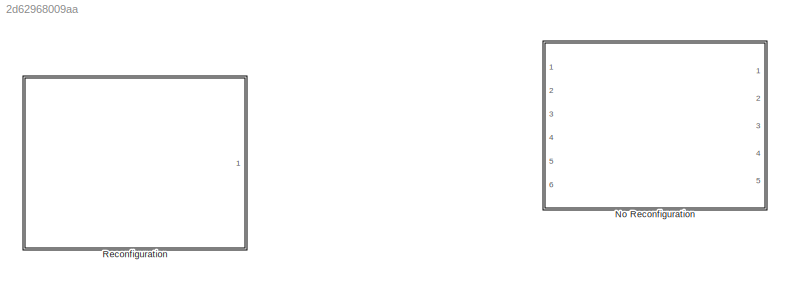
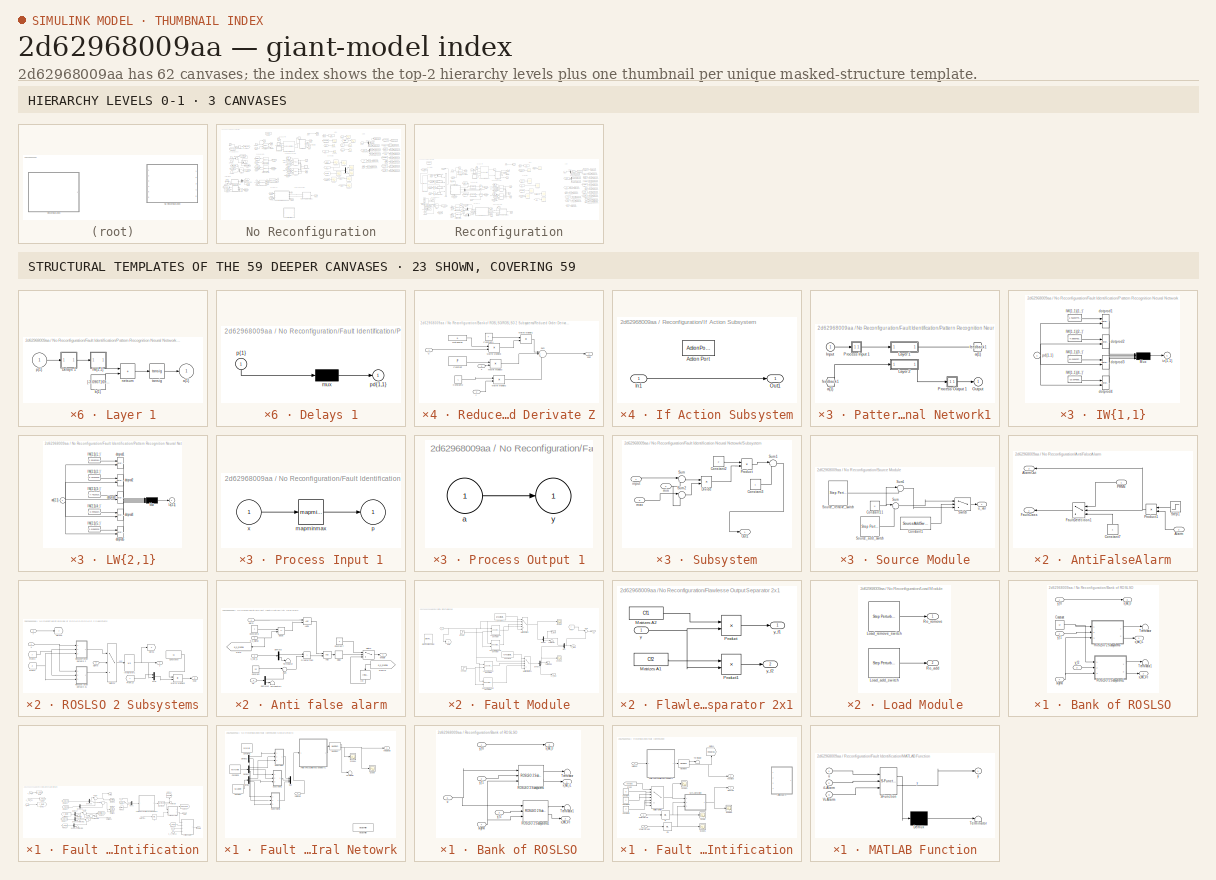
[diagram: thumbnail index - top-2 hierarchy levels (3 canvases) + 23 structural-template representatives of the remaining 59 canvases]
MODEL slx_2d62968009aa
KIND model
CONFIG AbsTol = auto
CONFIG EnableMultiTasking = on
CONFIG FixedStep = 0.0005
CONFIG InitFcn = kp=0.01;\nki=0.01;\n\nk=2;\nem=100000000;\nGE=1/em;\nGU=k*ki/GE;\nGCE=k*kp/GU;\n
CONFIG MaxStep = auto
CONFIG MinStep = auto
CONFIG RelTol = auto
CONFIG SampleTimeConstraint = Unconstrained
CONFIG Solver = ode45
CONFIG SolverName = ode45
CONFIG StartTime = 0.0
CONFIG StopTime = 1
WORKSPACE source: mxarray member
WORKSPACE time = 0.8
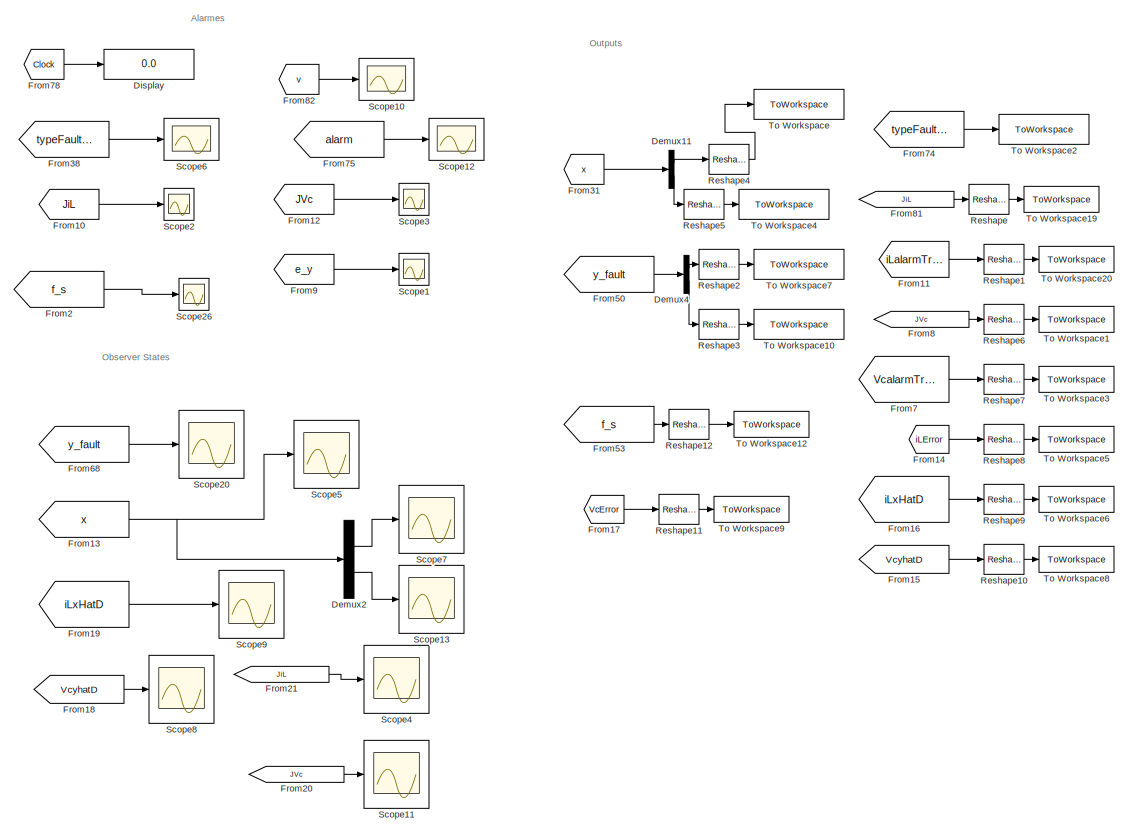
[diagram: No Reconfiguration - part 1/3, middle right region]
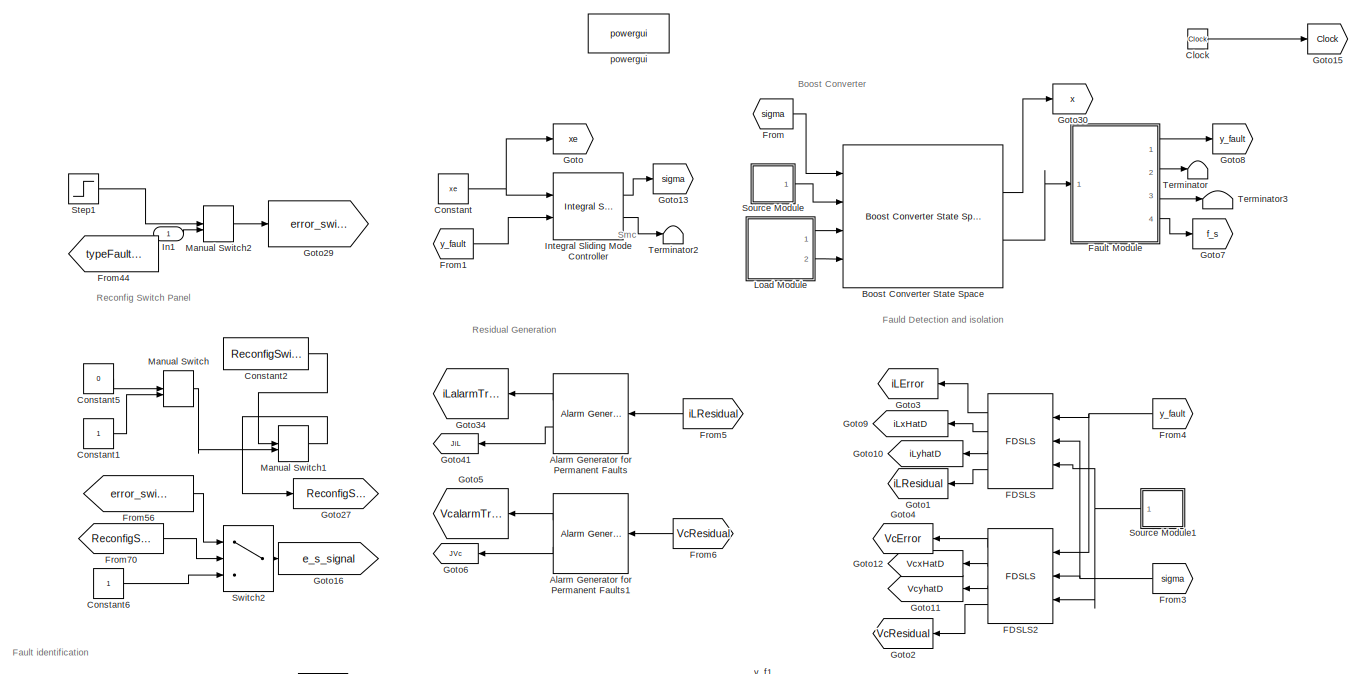
[diagram: No Reconfiguration - part 2/3, top left region]
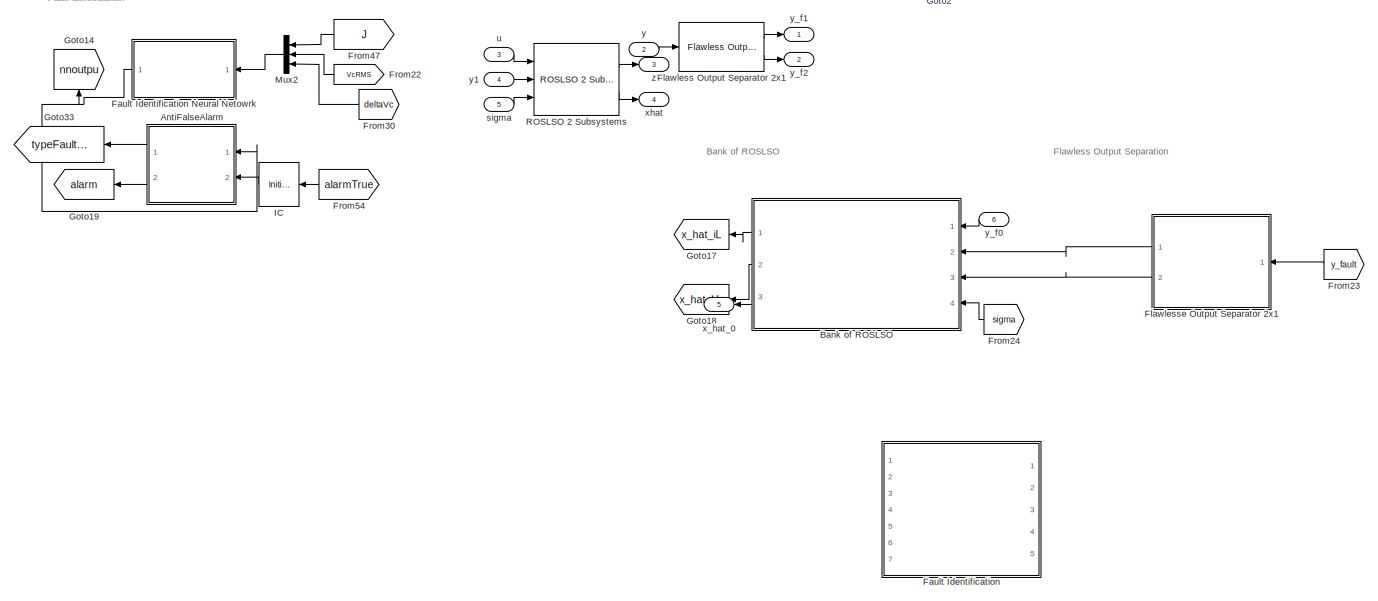
[diagram: No Reconfiguration - part 3/3, bottom left region]
BLOCK [SubSystem] No Reconfiguration
  Commented = on
  Ports = [6, 5]
  RequestExecContextInheritance = off
BLOCK [Reference] No Reconfiguration/Alarm Generator for Permanent Faults  REF=PhdLibrary/Alarm Generator
for Permanent Faults
  NameLocation = top
  Ports = [1, 2]
  SourceBlock = PhdLibrary/Alarm Generator\nfor Permanent Faults
  SourceProductName = Phd Diego
  SourceType = Alarm generator for permanent (persistent) faults
BLOCK [Reference] No Reconfiguration/Alarm Generator for Permanent Faults1  REF=PhdLibrary/Alarm Generator
for Permanent Faults
  NameLocation = top
  Ports = [1, 2]
  SourceBlock = PhdLibrary/Alarm Generator\nfor Permanent Faults
  SourceProductName = Phd Diego
  SourceType = Alarm generator for permanent (persistent) faults
BLOCK [SubSystem] No Reconfiguration/AntiFalseAlarm
  Commented = on
  NameLocation = top
  Ports = [2, 2]
  RequestExecContextInheritance = off
BLOCK [Inport] No Reconfiguration/AntiFalseAlarm/Alarm
  Port = 2
BLOCK [Outport] No Reconfiguration/AntiFalseAlarm/AlarmOut
  Port = 2
BLOCK [Constant] No Reconfiguration/AntiFalseAlarm/Constant7
  NameLocation = left
BLOCK [Outport] No Reconfiguration/AntiFalseAlarm/FaultClass
BLOCK [Switch] No Reconfiguration/AntiFalseAlarm/FaultDetecition1
  Criteria = u2 > Threshold
  InputSameDT = off
  SaturateOnIntegerOverflow = off
BLOCK [Inport] No Reconfiguration/AntiFalseAlarm/PRNN
BLOCK [Product] No Reconfiguration/AntiFalseAlarm/Product1
  NameLocation = top
  Ports = [2, 1]
BLOCK [Step] No Reconfiguration/AntiFalseAlarm/Step1
  NameLocation = left
  SampleTime = 0
  Time = AlarmDeadTime
BLOCK [SubSystem] No Reconfiguration/Bank of ROSLSO
  Commented = on
  NameLocation = top
  Ports = [4, 3]
  RequestExecContextInheritance = off
BLOCK [Constant] No Reconfiguration/Bank of ROSLSO/Constant
  Value = uf
  VectorParams1D = off
BLOCK [SubSystem] No Reconfiguration/Bank of ROSLSO/ROSLSO 2 Subsystems
  Ports = [3, 2]
  RequestExecContextInheritance = off
BLOCK [Constant] No Reconfiguration/Bank of ROSLSO/ROSLSO 2 Subsystems/Constant8
  Value = Q
  VectorParams1D = off
BLOCK [From] No Reconfiguration/Bank of ROSLSO/ROSLSO 2 Subsystems/From13
  GotoTag = y
BLOCK [From] No Reconfiguration/Bank of ROSLSO/ROSLSO 2 Subsystems/From3
  GotoTag = y
BLOCK [From] No Reconfiguration/Bank of ROSLSO/ROSLSO 2 Subsystems/From5
  GotoTag = z
BLOCK [Goto] No Reconfiguration/Bank of ROSLSO/ROSLSO 2 Subsystems/Goto10
  GotoTag = y
BLOCK [Goto] No Reconfiguration/Bank of ROSLSO/ROSLSO 2 Subsystems/Goto5
  GotoTag = z
BLOCK [Integrator] No Reconfiguration/Bank of ROSLSO/ROSLSO 2 Subsystems/Integrator1
  InitialCondition = z0
  NameLocation = top
  Ports = [1, 1]
BLOCK [Product] No Reconfiguration/Bank of ROSLSO/ROSLSO 2 Subsystems/Matrix Multiply6
  Multiplication = Matrix(*)
  Ports = [2, 1]
BLOCK [Mux] No Reconfiguration/Bank of ROSLSO/ROSLSO 2 Subsystems/Mux
  DisplayOption = bar
  Inputs = 2
  Ports = [2, 1]
BLOCK [SubSystem] No Reconfiguration/Bank of ROSLSO/ROSLSO 2 Subsystems/Reduced Order Derivate Z
  Ports = [3, 1]
  RequestExecContextInheritance = off
BLOCK [Constant] No Reconfiguration/Bank of ROSLSO/ROSLSO 2 Subsystems/Reduced Order Derivate Z/Constant
  Value = F
  VectorParams1D = off
BLOCK [Constant] No Reconfiguration/Bank of ROSLSO/ROSLSO 2 Subsystems/Reduced Order Derivate Z/Constant1
  Value = T
  VectorParams1D = off
BLOCK [Constant] No Reconfiguration/Bank of ROSLSO/ROSLSO 2 Subsystems/Reduced Order Derivate Z/Constant2
  Value = L
  VectorParams1D = off
BLOCK [Product] No Reconfiguration/Bank of ROSLSO/ROSLSO 2 Subsystems/Reduced Order Derivate Z/Matrix Multiply1
  Multiplication = Matrix(*)
  Ports = [2, 1]
BLOCK [Product] No Reconfiguration/Bank of ROSLSO/ROSLSO 2 Subsystems/Reduced Order Derivate Z/Matrix Multiply2
  Multiplication = Matrix(*)
  Ports = [2, 1]
BLOCK [Product] No Reconfiguration/Bank of ROSLSO/ROSLSO 2 Subsystems/Reduced Order Derivate Z/Matrix Multiply3
  Multiplication = Matrix(*)
  Ports = [2, 1]
BLOCK [Product] No Reconfiguration/Bank of ROSLSO/ROSLSO 2 Subsystems/Reduced Order Derivate Z/Matrix Multiply8
  Multiplication = Matrix(*)
  Ports = [2, 1]
BLOCK [Constant] No Reconfiguration/Bank of ROSLSO/ROSLSO 2 Subsystems/Reduced Order Derivate Z/MatrizesA8
  Value = B
  VectorParams1D = off
BLOCK [Sum] No Reconfiguration/Bank of ROSLSO/ROSLSO 2 Subsystems/Reduced Order Derivate Z/Sum
  Inputs = |+++
  Ports = [3, 1]
BLOCK [Inport] No Reconfiguration/Bank of ROSLSO/ROSLSO 2 Subsystems/Reduced Order Derivate Z/u
BLOCK [Inport] No Reconfiguration/Bank of ROSLSO/ROSLSO 2 Subsystems/Reduced Order Derivate Z/y
  Port = 2
BLOCK [Inport] No Reconfiguration/Bank of ROSLSO/ROSLSO 2 Subsystems/Reduced Order Derivate Z/z
  Port = 3
BLOCK [Outport] No Reconfiguration/Bank of ROSLSO/ROSLSO 2 Subsystems/Reduced Order Derivate Z/zdot
BLOCK [SubSystem] No Reconfiguration/Bank of ROSLSO/ROSLSO 2 Subsystems/Reduced Order Derivate Z1
  Ports = [3, 1]
  RequestExecContextInheritance = off
BLOCK [Constant] No Reconfiguration/Bank of ROSLSO/ROSLSO 2 Subsystems/Reduced Order Derivate Z1/Constant
  Value = F
  VectorParams1D = off
BLOCK [Constant] No Reconfiguration/Bank of ROSLSO/ROSLSO 2 Subsystems/Reduced Order Derivate Z1/Constant1
  Value = T
  VectorParams1D = off
BLOCK [Constant] No Reconfiguration/Bank of ROSLSO/ROSLSO 2 Subsystems/Reduced Order Derivate Z1/Constant2
  Value = L
  VectorParams1D = off
BLOCK [Product] No Reconfiguration/Bank of ROSLSO/ROSLSO 2 Subsystems/Reduced Order Derivate Z1/Matrix Multiply1
  Multiplication = Matrix(*)
  Ports = [2, 1]
BLOCK [Product] No Reconfiguration/Bank of ROSLSO/ROSLSO 2 Subsystems/Reduced Order Derivate Z1/Matrix Multiply2
  Multiplication = Matrix(*)
  Ports = [2, 1]
BLOCK [Product] No Reconfiguration/Bank of ROSLSO/ROSLSO 2 Subsystems/Reduced Order Derivate Z1/Matrix Multiply3
  Multiplication = Matrix(*)
  Ports = [2, 1]
BLOCK [Product] No Reconfiguration/Bank of ROSLSO/ROSLSO 2 Subsystems/Reduced Order Derivate Z1/Matrix Multiply8
  Multiplication = Matrix(*)
  Ports = [2, 1]
BLOCK [Constant] No Reconfiguration/Bank of ROSLSO/ROSLSO 2 Subsystems/Reduced Order Derivate Z1/MatrizesA8
  Value = B
  VectorParams1D = off
BLOCK [Sum] No Reconfiguration/Bank of ROSLSO/ROSLSO 2 Subsystems/Reduced Order Derivate Z1/Sum
  Inputs = |+++
  Ports = [3, 1]
BLOCK [Inport] No Reconfiguration/Bank of ROSLSO/ROSLSO 2 Subsystems/Reduced Order Derivate Z1/u
BLOCK [Inport] No Reconfiguration/Bank of ROSLSO/ROSLSO 2 Subsystems/Reduced Order Derivate Z1/y
  Port = 2
BLOCK [Inport] No Reconfiguration/Bank of ROSLSO/ROSLSO 2 Subsystems/Reduced Order Derivate Z1/z
  Port = 3
BLOCK [Outport] No Reconfiguration/Bank of ROSLSO/ROSLSO 2 Subsystems/Reduced Order Derivate Z1/zdot
BLOCK [Switch] No Reconfiguration/Bank of ROSLSO/ROSLSO 2 Subsystems/Switch1
  Criteria = u2 ~= 0
  InputSameDT = off
  SaturateOnIntegerOverflow = off
BLOCK [Inport] No Reconfiguration/Bank of ROSLSO/ROSLSO 2 Subsystems/sigma
  Port = 3
BLOCK [Inport] No Reconfiguration/Bank of ROSLSO/ROSLSO 2 Subsystems/u
BLOCK [Outport] No Reconfiguration/Bank of ROSLSO/ROSLSO 2 Subsystems/xhat
  Port = 2
BLOCK [Inport] No Reconfiguration/Bank of ROSLSO/ROSLSO 2 Subsystems/y
  Port = 2
BLOCK [Outport] No Reconfiguration/Bank of ROSLSO/ROSLSO 2 Subsystems/z
BLOCK [SubSystem] No Reconfiguration/Bank of ROSLSO/ROSLSO 2 Subsystems1
  Ports = [3, 2]
  RequestExecContextInheritance = off
BLOCK [Constant] No Reconfiguration/Bank of ROSLSO/ROSLSO 2 Subsystems1/Constant8
  Value = Q
  VectorParams1D = off
BLOCK [From] No Reconfiguration/Bank of ROSLSO/ROSLSO 2 Subsystems1/From13
  GotoTag = y
BLOCK [From] No Reconfiguration/Bank of ROSLSO/ROSLSO 2 Subsystems1/From3
  GotoTag = y
BLOCK [From] No Reconfiguration/Bank of ROSLSO/ROSLSO 2 Subsystems1/From5
  GotoTag = z
BLOCK [Goto] No Reconfiguration/Bank of ROSLSO/ROSLSO 2 Subsystems1/Goto10
  GotoTag = y
BLOCK [Goto] No Reconfiguration/Bank of ROSLSO/ROSLSO 2 Subsystems1/Goto5
  GotoTag = z
BLOCK [Integrator] No Reconfiguration/Bank of ROSLSO/ROSLSO 2 Subsystems1/Integrator1
  InitialCondition = z0
  NameLocation = top
  Ports = [1, 1]
BLOCK [Product] No Reconfiguration/Bank of ROSLSO/ROSLSO 2 Subsystems1/Matrix Multiply6
  Multiplication = Matrix(*)
  Ports = [2, 1]
BLOCK [Mux] No Reconfiguration/Bank of ROSLSO/ROSLSO 2 Subsystems1/Mux
  DisplayOption = bar
  Inputs = 2
  Ports = [2, 1]
BLOCK [SubSystem] No Reconfiguration/Bank of ROSLSO/ROSLSO 2 Subsystems1/Reduced Order Derivate Z
  Ports = [3, 1]
  RequestExecContextInheritance = off
BLOCK [Constant] No Reconfiguration/Bank of ROSLSO/ROSLSO 2 Subsystems1/Reduced Order Derivate Z/Constant
  Value = F
  VectorParams1D = off
BLOCK [Constant] No Reconfiguration/Bank of ROSLSO/ROSLSO 2 Subsystems1/Reduced Order Derivate Z/Constant1
  Value = T
  VectorParams1D = off
BLOCK [Constant] No Reconfiguration/Bank of ROSLSO/ROSLSO 2 Subsystems1/Reduced Order Derivate Z/Constant2
  Value = L
  VectorParams1D = off
BLOCK [Product] No Reconfiguration/Bank of ROSLSO/ROSLSO 2 Subsystems1/Reduced Order Derivate Z/Matrix Multiply1
  Multiplication = Matrix(*)
  Ports = [2, 1]
BLOCK [Product] No Reconfiguration/Bank of ROSLSO/ROSLSO 2 Subsystems1/Reduced Order Derivate Z/Matrix Multiply2
  Multiplication = Matrix(*)
  Ports = [2, 1]
BLOCK [Product] No Reconfiguration/Bank of ROSLSO/ROSLSO 2 Subsystems1/Reduced Order Derivate Z/Matrix Multiply3
  Multiplication = Matrix(*)
  Ports = [2, 1]
BLOCK [Product] No Reconfiguration/Bank of ROSLSO/ROSLSO 2 Subsystems1/Reduced Order Derivate Z/Matrix Multiply8
  Multiplication = Matrix(*)
  Ports = [2, 1]
BLOCK [Constant] No Reconfiguration/Bank of ROSLSO/ROSLSO 2 Subsystems1/Reduced Order Derivate Z/MatrizesA8
  Value = B
  VectorParams1D = off
BLOCK [Sum] No Reconfiguration/Bank of ROSLSO/ROSLSO 2 Subsystems1/Reduced Order Derivate Z/Sum
  Inputs = |+++
  Ports = [3, 1]
BLOCK [Inport] No Reconfiguration/Bank of ROSLSO/ROSLSO 2 Subsystems1/Reduced Order Derivate Z/u
BLOCK [Inport] No Reconfiguration/Bank of ROSLSO/ROSLSO 2 Subsystems1/Reduced Order Derivate Z/y
  Port = 2
BLOCK [Inport] No Reconfiguration/Bank of ROSLSO/ROSLSO 2 Subsystems1/Reduced Order Derivate Z/z
  Port = 3
BLOCK [Outport] No Reconfiguration/Bank of ROSLSO/ROSLSO 2 Subsystems1/Reduced Order Derivate Z/zdot
BLOCK [SubSystem] No Reconfiguration/Bank of ROSLSO/ROSLSO 2 Subsystems1/Reduced Order Derivate Z1
  Ports = [3, 1]
  RequestExecContextInheritance = off
BLOCK [Constant] No Reconfiguration/Bank of ROSLSO/ROSLSO 2 Subsystems1/Reduced Order Derivate Z1/Constant
  Value = F
  VectorParams1D = off
BLOCK [Constant] No Reconfiguration/Bank of ROSLSO/ROSLSO 2 Subsystems1/Reduced Order Derivate Z1/Constant1
  Value = T
  VectorParams1D = off
BLOCK [Constant] No Reconfiguration/Bank of ROSLSO/ROSLSO 2 Subsystems1/Reduced Order Derivate Z1/Constant2
  Value = L
  VectorParams1D = off
BLOCK [Product] No Reconfiguration/Bank of ROSLSO/ROSLSO 2 Subsystems1/Reduced Order Derivate Z1/Matrix Multiply1
  Multiplication = Matrix(*)
  Ports = [2, 1]
BLOCK [Product] No Reconfiguration/Bank of ROSLSO/ROSLSO 2 Subsystems1/Reduced Order Derivate Z1/Matrix Multiply2
  Multiplication = Matrix(*)
  Ports = [2, 1]
BLOCK [Product] No Reconfiguration/Bank of ROSLSO/ROSLSO 2 Subsystems1/Reduced Order Derivate Z1/Matrix Multiply3
  Multiplication = Matrix(*)
  Ports = [2, 1]
BLOCK [Product] No Reconfiguration/Bank of ROSLSO/ROSLSO 2 Subsystems1/Reduced Order Derivate Z1/Matrix Multiply8
  Multiplication = Matrix(*)
  Ports = [2, 1]
BLOCK [Constant] No Reconfiguration/Bank of ROSLSO/ROSLSO 2 Subsystems1/Reduced Order Derivate Z1/MatrizesA8
  Value = B
  VectorParams1D = off
BLOCK [Sum] No Reconfiguration/Bank of ROSLSO/ROSLSO 2 Subsystems1/Reduced Order Derivate Z1/Sum
  Inputs = |+++
  Ports = [3, 1]
BLOCK [Inport] No Reconfiguration/Bank of ROSLSO/ROSLSO 2 Subsystems1/Reduced Order Derivate Z1/u
BLOCK [Inport] No Reconfiguration/Bank of ROSLSO/ROSLSO 2 Subsystems1/Reduced Order Derivate Z1/y
  Port = 2
BLOCK [Inport] No Reconfiguration/Bank of ROSLSO/ROSLSO 2 Subsystems1/Reduced Order Derivate Z1/z
  Port = 3
BLOCK [Outport] No Reconfiguration/Bank of ROSLSO/ROSLSO 2 Subsystems1/Reduced Order Derivate Z1/zdot
BLOCK [Switch] No Reconfiguration/Bank of ROSLSO/ROSLSO 2 Subsystems1/Switch1
  Criteria = u2 ~= 0
  InputSameDT = off
  SaturateOnIntegerOverflow = off
BLOCK [Inport] No Reconfiguration/Bank of ROSLSO/ROSLSO 2 Subsystems1/sigma
  Port = 3
BLOCK [Inport] No Reconfiguration/Bank of ROSLSO/ROSLSO 2 Subsystems1/u
BLOCK [Outport] No Reconfiguration/Bank of ROSLSO/ROSLSO 2 Subsystems1/xhat
  Port = 2
BLOCK [Inport] No Reconfiguration/Bank of ROSLSO/ROSLSO 2 Subsystems1/y
  Port = 2
BLOCK [Outport] No Reconfiguration/Bank of ROSLSO/ROSLSO 2 Subsystems1/z
BLOCK [Terminator] No Reconfiguration/Bank of ROSLSO/Terminator
BLOCK [Terminator] No Reconfiguration/Bank of ROSLSO/Terminator1
BLOCK [Inport] No Reconfiguration/Bank of ROSLSO/sigma
  Port = 4
BLOCK [Outport] No Reconfiguration/Bank of ROSLSO/x_hat_0
  Port = 3
BLOCK [Outport] No Reconfiguration/Bank of ROSLSO/x_hat_Vc
  Port = 2
BLOCK [Outport] No Reconfiguration/Bank of ROSLSO/x_hat_iL
BLOCK [Inport] No Reconfiguration/Bank of ROSLSO/y_f0
BLOCK [Inport] No Reconfiguration/Bank of ROSLSO/y_f1
  Port = 2
BLOCK [Inport] No Reconfiguration/Bank of ROSLSO/y_f2
  Port = 3
BLOCK [Reference] No Reconfiguration/Boost Converter State Space  REF=PhdLibrary/Boost Converter 
State Space
  Ports = [4, 2]
  SourceBlock = PhdLibrary/Boost Converter \nState Space
  SourceProductName = Phd Diego
  SourceType = Boots State-Space model
BLOCK [Clock] No Reconfiguration/Clock
BLOCK [Constant] No Reconfiguration/Constant
  Value = xe
  VectorParams1D = off
BLOCK [Constant] No Reconfiguration/Constant1
BLOCK [Constant] No Reconfiguration/Constant2
  Value = ReconfigSwitch
BLOCK [Constant] No Reconfiguration/Constant5
  Value = 0
BLOCK [Constant] No Reconfiguration/Constant6
BLOCK [Demux] No Reconfiguration/Demux11
  Outputs = 2
  Ports = [1, 2]
BLOCK [Demux] No Reconfiguration/Demux2
  Outputs = 2
  Ports = [1, 2]
BLOCK [Demux] No Reconfiguration/Demux4
  Outputs = 2
  Ports = [1, 2]
BLOCK [Display] No Reconfiguration/Display
  Decimation = 1
  Ports = [1]
BLOCK [Reference] No Reconfiguration/FDSLS  REF=PhdLibrary/FDSLS
  NameLocation = top
  Ports = [3, 4]
  SourceBlock = PhdLibrary/FDSLS
  SourceProductName = Phd Diego
  SourceType = Sliding mode observer for Switched linear affine systems
BLOCK [Reference] No Reconfiguration/FDSLS2  REF=PhdLibrary/FDSLS
  NameLocation = top
  Ports = [3, 4]
  SourceBlock = PhdLibrary/FDSLS
  SourceProductName = Phd Diego
  SourceType = Sliding mode observer for Switched linear affine systems
BLOCK [SubSystem] No Reconfiguration/Fault Identification
  Commented = on
  Ports = [7, 5]
  RequestExecContextInheritance = off
BLOCK [SubSystem] No Reconfiguration/Fault Identification Neural Netowrk
  Commented = on
  Ports = [1, 1]
  RequestExecContextInheritance = off
BLOCK [Constant] No Reconfiguration/Fault Identification Neural Netowrk/Constant
  Commented = on
  Value = MAXnet
BLOCK [Constant] No Reconfiguration/Fault Identification Neural Netowrk/Constant1
  Commented = on
  Value = [0;0;0]
BLOCK [Constant] No Reconfiguration/Fault Identification Neural Netowrk/Constant4
  Commented = on
  Value = MINnet
BLOCK [Demux] No Reconfiguration/Fault Identification Neural Netowrk/Demux
  Commented = on
  Outputs = 3
  Ports = [1, 3]
BLOCK [Demux] No Reconfiguration/Fault Identification Neural Netowrk/Demux1
  Commented = on
  Outputs = 3
  Ports = [1, 3]
BLOCK [Demux] No Reconfiguration/Fault Identification Neural Netowrk/Demux2
  Commented = on
  Outputs = 3
  Ports = [1, 3]
BLOCK [Reference] No Reconfiguration/Fault Identification Neural Netowrk/Maximum  REF=dspstat3/Maximum
  Ports = [1, 2]
  SourceBlock = dspstat3/Maximum
  SourceProductBaseCode = DS
  SourceType = Maximum
  UserDataPersistent = on
BLOCK [Reference] No Reconfiguration/Fault Identification Neural Netowrk/Median Filter  REF=dspstat3/Median
Filter
  Commented = on
  Ports = [1, 1]
  SourceBlock = dspstat3/Median\nFilter
  SourceProductBaseCode = DS
  SourceType = dsp.MedianFilter
BLOCK [Mux] No Reconfiguration/Fault Identification Neural Netowrk/Mux
  Commented = on
  DisplayOption = bar
  Inputs = 3
  Ports = [3, 1]
BLOCK [SubSystem] No Reconfiguration/Fault Identification Neural Netowrk/Pattern Recognition Neural Network1
  Ports = [1, 1]
  RequestExecContextInheritance = off
BLOCK [From] No Reconfiguration/Fault Identification Neural Netowrk/Pattern Recognition Neural Network1/ a{1} 
  GotoTag = feedback1
BLOCK [Inport] No Reconfiguration/Fault Identification Neural Netowrk/Pattern Recognition Neural Network1/Input
  PortDimensions = 3
BLOCK [SubSystem] No Reconfiguration/Fault Identification Neural Netowrk/Pattern Recognition Neural Network1/Layer 1
  Ports = [1, 1]
  RequestExecContextInheritance = off
BLOCK [SubSystem] No Reconfiguration/Fault Identification Neural Netowrk/Pattern Recognition Neural Network1/Layer 1/Delays 1
  Ports = [1, 1]
  RequestExecContextInheritance = off
BLOCK [Mux] No Reconfiguration/Fault Identification Neural Netowrk/Pattern Recognition Neural Network1/Layer 1/Delays 1/mux
  Inputs = 1
  Ports = [1, 1]
BLOCK [Outport] No Reconfiguration/Fault Identification Neural Netowrk/Pattern Recognition Neural Network1/Layer 1/Delays 1/pd{1,1}
BLOCK [Inport] No Reconfiguration/Fault Identification Neural Netowrk/Pattern Recognition Neural Network1/Layer 1/Delays 1/p{1}
  NameLocation = left
  PortDimensions = 3
BLOCK [SubSystem] No Reconfiguration/Fault Identification Neural Netowrk/Pattern Recognition Neural Network1/Layer 1/IW{1,1}
  Ports = [1, 1]
  RequestExecContextInheritance = off
BLOCK [Constant] No Reconfiguration/Fault Identification Neural Netowrk/Pattern Recognition Neural Network1/Layer 1/IW{1,1}/IW{1,1}(1,:)'
  Value = [1.4620077904292643200534485004027374088764190673828125;1.1479316995695467706894987713894806802272796630859375;-0.75309198928315967958013743555056862533092498779296875]
BLOCK [Constant] No Reconfiguration/Fault Identification Neural Netowrk/Pattern Recognition Neural Network1/Layer 1/IW{1,1}/IW{1,1}(2,:)'
  Value = [-4.88697839849253856669974993565119802951812744140625;-8.405003124593715568835250451229512691497802734375;5.794020912154170588337365188635885715484619140625]
BLOCK [Constant] No Reconfiguration/Fault Identification Neural Netowrk/Pattern Recognition Neural Network1/Layer 1/IW{1,1}/IW{1,1}(3,:)'
  Value = [14.0491237632533483292718301527202129364013671875;1.08719679537565827587286548805423080921173095703125;21.342540048378236150483644451014697551727294921875]
BLOCK [Constant] No Reconfiguration/Fault Identification Neural Netowrk/Pattern Recognition Neural Network1/Layer 1/IW{1,1}/IW{1,1}(4,:)'
  Value = [-16.064558456108986916888170526362955570220947265625;9.3944940835869257256263153976760804653167724609375;10.4677174695698536055488148122094571590423583984375]
BLOCK [Mux] No Reconfiguration/Fault Identification Neural Netowrk/Pattern Recognition Neural Network1/Layer 1/IW{1,1}/Mux
  Ports = [4, 1]
BLOCK [Reference] No Reconfiguration/Fault Identification Neural Netowrk/Pattern Recognition Neural Network1/Layer 1/IW{1,1}/dotprod1  REF=neural/Weight Functions/dotprod
  Ports = [2, 1]
  SourceBlock = neural/Weight Functions/dotprod
  SourceProductBaseCode = NN
  SourceType = DOTPROD
BLOCK [Reference] No Reconfiguration/Fault Identification Neural Netowrk/Pattern Recognition Neural Network1/Layer 1/IW{1,1}/dotprod2  REF=neural/Weight Functions/dotprod
  Ports = [2, 1]
  SourceBlock = neural/Weight Functions/dotprod
  SourceProductBaseCode = NN
  SourceType = DOTPROD
BLOCK [Reference] No Reconfiguration/Fault Identification Neural Netowrk/Pattern Recognition Neural Network1/Layer 1/IW{1,1}/dotprod3  REF=neural/Weight Functions/dotprod
  Ports = [2, 1]
  SourceBlock = neural/Weight Functions/dotprod
  SourceProductBaseCode = NN
  SourceType = DOTPROD
BLOCK [Reference] No Reconfiguration/Fault Identification Neural Netowrk/Pattern Recognition Neural Network1/Layer 1/IW{1,1}/dotprod4  REF=neural/Weight Functions/dotprod
  Ports = [2, 1]
  SourceBlock = neural/Weight Functions/dotprod
  SourceProductBaseCode = NN
  SourceType = DOTPROD
BLOCK [Outport] No Reconfiguration/Fault Identification Neural Netowrk/Pattern Recognition Neural Network1/Layer 1/IW{1,1}/iz{1,1}
BLOCK [Inport] No Reconfiguration/Fault Identification Neural Netowrk/Pattern Recognition Neural Network1/Layer 1/IW{1,1}/pd{1,1}
  PortDimensions = 3
BLOCK [Outport] No Reconfiguration/Fault Identification Neural Netowrk/Pattern Recognition Neural Network1/Layer 1/a{1}
  InitialOutput = [0;0;0;0]
BLOCK [Constant] No Reconfiguration/Fault Identification Neural Netowrk/Pattern Recognition Neural Network1/Layer 1/b{1}
  Value = [-3.0907169643136906955760423443280160427093505859375;-8.5532408660313894444016113993711769580841064453125;26.179031484954197850356649723835289478302001953125;0.130591451617109999272514642143505625426769256591796875]
BLOCK [Sum] No Reconfiguration/Fault Identification Neural Netowrk/Pattern Recognition Neural Network1/Layer 1/netsum
  IconShape = rectangular
  InputSameDT = on
  Inputs = 2
  OutDataTypeStr = Inherit: Same as first input
  Ports = [2, 1]
  SaturateOnIntegerOverflow = on
BLOCK [Inport] No Reconfiguration/Fault Identification Neural Netowrk/Pattern Recognition Neural Network1/Layer 1/p{1}
  PortDimensions = 3
BLOCK [Reference] No Reconfiguration/Fault Identification Neural Netowrk/Pattern Recognition Neural Network1/Layer 1/tansig  REF=neural/Transfer Functions/tansig
  Ports = [1, 1]
  SourceBlock = neural/Transfer Functions/tansig
  SourceProductBaseCode = NN
  SourceType = TANSIG
BLOCK [SubSystem] No Reconfiguration/Fault Identification Neural Netowrk/Pattern Recognition Neural Network1/Layer 2
  Ports = [1, 1]
  RequestExecContextInheritance = off
BLOCK [SubSystem] No Reconfiguration/Fault Identification Neural Netowrk/Pattern Recognition Neural Network1/Layer 2/Delays 1
  Ports = [1, 1]
  RequestExecContextInheritance = off
BLOCK [Mux] No Reconfiguration/Fault Identification Neural Netowrk/Pattern Recognition Neural Network1/Layer 2/Delays 1/mux
  Inputs = 1
  Ports = [1, 1]
BLOCK [Outport] No Reconfiguration/Fault Identification Neural Netowrk/Pattern Recognition Neural Network1/Layer 2/Delays 1/pd{2,1}
BLOCK [Inport] No Reconfiguration/Fault Identification Neural Netowrk/Pattern Recognition Neural Network1/Layer 2/Delays 1/p{2}
  NameLocation = left
  PortDimensions = 4
BLOCK [SubSystem] No Reconfiguration/Fault Identification Neural Netowrk/Pattern Recognition Neural Network1/Layer 2/LW{2,1}
  Ports = [1, 1]
  RequestExecContextInheritance = off
BLOCK [Constant] No Reconfiguration/Fault Identification Neural Netowrk/Pattern Recognition Neural Network1/Layer 2/LW{2,1}/IW{2,1}(1,:)'
  Value = [1.904651848873672559392389302956871688365936279296875;-0.84465724683745302403536925339722074568271636962890625;-3.4679025925519777473482463392429053783416748046875;11.422204742389372000843650312162935733795166015625]
BLOCK [Constant] No Reconfiguration/Fault Identification Neural Netowrk/Pattern Recognition Neural Network1/Layer 2/LW{2,1}/IW{2,1}(2,:)'
  Value = [5.437015296800307595503909396938979625701904296875;9.1687061761547976601605114410631358623504638671875;23.548730693488327148088501417078077793121337890625;9.759995330560929716057216865010559558868408203125]
BLOCK [Constant] No Reconfiguration/Fault Identification Neural Netowrk/Pattern Recognition Neural Network1/Layer 2/LW{2,1}/IW{2,1}(3,:)'
  Value = [-7.4815615461727844603956327773630619049072265625;-8.028817388537188293184954090975224971771240234375;-11.2939495357742867298611599835567176342010498046875;-9.9286767851498662906806202954612672328948974609375]
BLOCK [Constant] No Reconfiguration/Fault Identification Neural Netowrk/Pattern Recognition Neural Network1/Layer 2/LW{2,1}/IW{2,1}(4,:)'
  Value = [-0.9996034096479060604423239055904559791088104248046875;10.7127959018867926488383091054856777191162109375;-15.9786358721355643552897163317538797855377197265625;-16.727505534885494853369891643524169921875]
BLOCK [Constant] No Reconfiguration/Fault Identification Neural Netowrk/Pattern Recognition Neural Network1/Layer 2/LW{2,1}/IW{2,1}(5,:)'
  Value = [1.6498552634234948666147602125420235097408294677734375;-11.401380066045131655982913798652589321136474609375;7.07176418368389203550350430305115878582000732421875;5.3013653852550621792261154041625559329986572265625]
BLOCK [Mux] No Reconfiguration/Fault Identification Neural Netowrk/Pattern Recognition Neural Network1/Layer 2/LW{2,1}/Mux
  Inputs = 5
  Ports = [5, 1]
BLOCK [Inport] No Reconfiguration/Fault Identification Neural Netowrk/Pattern Recognition Neural Network1/Layer 2/LW{2,1}/ad{2,1}
  PortDimensions = 4
BLOCK [Reference] No Reconfiguration/Fault Identification Neural Netowrk/Pattern Recognition Neural Network1/Layer 2/LW{2,1}/dotprod1  REF=neural/Weight Functions/dotprod
  Ports = [2, 1]
  SourceBlock = neural/Weight Functions/dotprod
  SourceProductBaseCode = NN
  SourceType = DOTPROD
BLOCK [Reference] No Reconfiguration/Fault Identification Neural Netowrk/Pattern Recognition Neural Network1/Layer 2/LW{2,1}/dotprod2  REF=neural/Weight Functions/dotprod
  Ports = [2, 1]
  SourceBlock = neural/Weight Functions/dotprod
  SourceProductBaseCode = NN
  SourceType = DOTPROD
BLOCK [Reference] No Reconfiguration/Fault Identification Neural Netowrk/Pattern Recognition Neural Network1/Layer 2/LW{2,1}/dotprod3  REF=neural/Weight Functions/dotprod
  Ports = [2, 1]
  SourceBlock = neural/Weight Functions/dotprod
  SourceProductBaseCode = NN
  SourceType = DOTPROD
BLOCK [Reference] No Reconfiguration/Fault Identification Neural Netowrk/Pattern Recognition Neural Network1/Layer 2/LW{2,1}/dotprod4  REF=neural/Weight Functions/dotprod
  Ports = [2, 1]
  SourceBlock = neural/Weight Functions/dotprod
  SourceProductBaseCode = NN
  SourceType = DOTPROD
BLOCK [Reference] No Reconfiguration/Fault Identification Neural Netowrk/Pattern Recognition Neural Network1/Layer 2/LW{2,1}/dotprod5  REF=neural/Weight Functions/dotprod
  Ports = [2, 1]
  SourceBlock = neural/Weight Functions/dotprod
  SourceProductBaseCode = NN
  SourceType = DOTPROD
BLOCK [Outport] No Reconfiguration/Fault Identification Neural Netowrk/Pattern Recognition Neural Network1/Layer 2/LW{2,1}/lz{2,1}
BLOCK [Inport] No Reconfiguration/Fault Identification Neural Netowrk/Pattern Recognition Neural Network1/Layer 2/a{1} 
  PortDimensions = 4
BLOCK [Outport] No Reconfiguration/Fault Identification Neural Netowrk/Pattern Recognition Neural Network1/Layer 2/a{2}
  InitialOutput = [0;0;0;0;0]
BLOCK [Constant] No Reconfiguration/Fault Identification Neural Netowrk/Pattern Recognition Neural Network1/Layer 2/b{2}
  Value = [-2.302427575546979188203522426192648708820343017578125;-5.91134493996858534359262193902395665645599365234375;6.8980698616354221286428582970984280109405517578125;0.77959090259712271464564992129453457891941070556640625;-0.782333279931369585113998255110345780849456787109375]
BLOCK [Sum] No Reconfiguration/Fault Identification Neural Netowrk/Pattern Recognition Neural Network1/Layer 2/netsum
  IconShape = rectangular
  InputSameDT = on
  Inputs = 2
  OutDataTypeStr = Inherit: Same as first input
  Ports = [2, 1]
  SaturateOnIntegerOverflow = on
BLOCK [Reference] No Reconfiguration/Fault Identification Neural Netowrk/Pattern Recognition Neural Network1/Layer 2/softmax  REF=neural/Transfer Functions/softmax
  Ports = [1, 1]
  SourceBlock = neural/Transfer Functions/softmax
  SourceProductBaseCode = NN
  SourceType = SOFTMAX
BLOCK [Outport] No Reconfiguration/Fault Identification Neural Netowrk/Pattern Recognition Neural Network1/Output
  InitialOutput = [0;0;0;0;0]
BLOCK [SubSystem] No Reconfiguration/Fault Identification Neural Netowrk/Pattern Recognition Neural Network1/Process Input 1
  Ports = [1, 1]
  RequestExecContextInheritance = off
BLOCK [Reference] No Reconfiguration/Fault Identification Neural Netowrk/Pattern Recognition Neural Network1/Process Input 1/mapminmax  REF=neural/Processing Functions/mapminmax
  Ports = [1, 1]
  SourceBlock = neural/Processing Functions/mapminmax
  SourceProductBaseCode = NN
  SourceType = MAPMINMAX Preprocess
BLOCK [Outport] No Reconfiguration/Fault Identification Neural Netowrk/Pattern Recognition Neural Network1/Process Input 1/p
  PortDimensions = 3
BLOCK [Inport] No Reconfiguration/Fault Identification Neural Netowrk/Pattern Recognition Neural Network1/Process Input 1/x
  PortDimensions = 3
BLOCK [SubSystem] No Reconfiguration/Fault Identification Neural Netowrk/Pattern Recognition Neural Network1/Process Output 1
  Ports = [1, 1]
  RequestExecContextInheritance = off
BLOCK [Inport] No Reconfiguration/Fault Identification Neural Netowrk/Pattern Recognition Neural Network1/Process Output 1/a
  PortDimensions = 5
BLOCK [Outport] No Reconfiguration/Fault Identification Neural Netowrk/Pattern Recognition Neural Network1/Process Output 1/y
  PortDimensions = 5
BLOCK [Goto] No Reconfiguration/Fault Identification Neural Netowrk/Pattern Recognition Neural Network1/a{1}
  GotoTag = feedback1
BLOCK [Scope] No Reconfiguration/Fault Identification Neural Netowrk/Scope
  Floating = off
  NumInputPorts = 1
  Ports = [1]
  ScopeSpecificationString = Simulink.scopes.TimeScopeBlockCfg('CurrentConfiguration', extmgr.ConfigurationSet(extmgr.Configuration('Core','General UI',true),extmgr.Configuration('Core','Source UI',true),extmgr.Configuration('Sources','WiredSimulink',true,'DataLoggingVariableName','ScopeData1'),extmgr.Configuration('Visuals','Time Domain',true,'SerializedDisplays',{struct('MinYLimReal','2.75','MaxYLimReal','5.25','YLabelReal'...<+1421ch>
BLOCK [Scope] No Reconfiguration/Fault Identification Neural Netowrk/Scope1
  Floating = off
  NumInputPorts = 1
  Ports = [1]
  ScopeSpecificationString = Simulink.scopes.TimeScopeBlockCfg('CurrentConfiguration', extmgr.ConfigurationSet(extmgr.Configuration('Core','General UI',true),extmgr.Configuration('Core','Source UI',true),extmgr.Configuration('Sources','WiredSimulink',true,'DataLoggingVariableName','ScopeData2'),extmgr.Configuration('Visuals','Time Domain',true,'SerializedDisplays',{struct('MinYLimReal','0.5','MaxYLimReal','5.5','YLabelReal','...<+1559ch>
BLOCK [SubSystem] No Reconfiguration/Fault Identification Neural Netowrk/Subsystem
  Commented = on
  Ports = [3, 1]
  RequestExecContextInheritance = off
BLOCK [Constant] No Reconfiguration/Fault Identification Neural Netowrk/Subsystem/Constant2
  Value = 2
BLOCK [Constant] No Reconfiguration/Fault Identification Neural Netowrk/Subsystem/Constant3
BLOCK [Product] No Reconfiguration/Fault Identification Neural Netowrk/Subsystem/Divide
  Inputs = */
  Ports = [2, 1]
BLOCK [Outport] No Reconfiguration/Fault Identification Neural Netowrk/Subsystem/Out1
BLOCK [Product] No Reconfiguration/Fault Identification Neural Netowrk/Subsystem/Product
  Ports = [2, 1]
BLOCK [Sum] No Reconfiguration/Fault Identification Neural Netowrk/Subsystem/Sum
  Inputs = |+-
  Ports = [2, 1]
BLOCK [Sum] No Reconfiguration/Fault Identification Neural Netowrk/Subsystem/Sum1
  Inputs = |+-
  Ports = [2, 1]
BLOCK [Sum] No Reconfiguration/Fault Identification Neural Netowrk/Subsystem/Sum2
  Inputs = |+-
  Ports = [2, 1]
BLOCK [Inport] No Reconfiguration/Fault Identification Neural Netowrk/Subsystem/input
BLOCK [Inport] No Reconfiguration/Fault Identification Neural Netowrk/Subsystem/max
  Port = 3
BLOCK [Inport] No Reconfiguration/Fault Identification Neural Netowrk/Subsystem/min
  Port = 2
BLOCK [SubSystem] No Reconfiguration/Fault Identification Neural Netowrk/Subsystem1
  Commented = on
  Ports = [3, 1]
  RequestExecContextInheritance = off
BLOCK [Constant] No Reconfiguration/Fault Identification Neural Netowrk/Subsystem1/Constant2
  Value = 2
BLOCK [Constant] No Reconfiguration/Fault Identification Neural Netowrk/Subsystem1/Constant3
BLOCK [Product] No Reconfiguration/Fault Identification Neural Netowrk/Subsystem1/Divide
  Inputs = */
  Ports = [2, 1]
BLOCK [Outport] No Reconfiguration/Fault Identification Neural Netowrk/Subsystem1/Out1
BLOCK [Product] No Reconfiguration/Fault Identification Neural Netowrk/Subsystem1/Product
  Ports = [2, 1]
BLOCK [Sum] No Reconfiguration/Fault Identification Neural Netowrk/Subsystem1/Sum
  Inputs = |+-
  Ports = [2, 1]
BLOCK [Sum] No Reconfiguration/Fault Identification Neural Netowrk/Subsystem1/Sum1
  Inputs = |+-
  Ports = [2, 1]
BLOCK [Sum] No Reconfiguration/Fault Identification Neural Netowrk/Subsystem1/Sum2
  Inputs = |+-
  Ports = [2, 1]
BLOCK [Inport] No Reconfiguration/Fault Identification Neural Netowrk/Subsystem1/input
BLOCK [Inport] No Reconfiguration/Fault Identification Neural Netowrk/Subsystem1/max
  Port = 3
BLOCK [Inport] No Reconfiguration/Fault Identification Neural Netowrk/Subsystem1/min
  Port = 2
BLOCK [SubSystem] No Reconfiguration/Fault Identification Neural Netowrk/Subsystem2
  Commented = on
  Ports = [3, 1]
  RequestExecContextInheritance = off
BLOCK [Constant] No Reconfiguration/Fault Identification Neural Netowrk/Subsystem2/Constant2
  Value = 2
BLOCK [Constant] No Reconfiguration/Fault Identification Neural Netowrk/Subsystem2/Constant3
BLOCK [Product] No Reconfiguration/Fault Identification Neural Netowrk/Subsystem2/Divide
  Inputs = */
  Ports = [2, 1]
BLOCK [Outport] No Reconfiguration/Fault Identification Neural Netowrk/Subsystem2/Out1
BLOCK [Product] No Reconfiguration/Fault Identification Neural Netowrk/Subsystem2/Product
  Ports = [2, 1]
BLOCK [Sum] No Reconfiguration/Fault Identification Neural Netowrk/Subsystem2/Sum
  Inputs = |+-
  Ports = [2, 1]
BLOCK [Sum] No Reconfiguration/Fault Identification Neural Netowrk/Subsystem2/Sum1
  Inputs = |+-
  Ports = [2, 1]
BLOCK [Sum] No Reconfiguration/Fault Identification Neural Netowrk/Subsystem2/Sum2
  Inputs = |+-
  Ports = [2, 1]
BLOCK [Inport] No Reconfiguration/Fault Identification Neural Netowrk/Subsystem2/input
BLOCK [Inport] No Reconfiguration/Fault Identification Neural Netowrk/Subsystem2/max
  Port = 3
BLOCK [Inport] No Reconfiguration/Fault Identification Neural Netowrk/Subsystem2/min
  Port = 2
BLOCK [Terminator] No Reconfiguration/Fault Identification Neural Netowrk/Terminator
BLOCK [Inport] No Reconfiguration/Fault Identification Neural Netowrk/netInputs
BLOCK [Outport] No Reconfiguration/Fault Identification Neural Netowrk/netOutputs
BLOCK [SubSystem] No Reconfiguration/Fault Identification/Anti false alarm
  Ports = [4, 1]
  RequestExecContextInheritance = off
BLOCK [Logic] No Reconfiguration/Fault Identification/Anti false alarm/AND
  AllPortsSameDT = off
  IconShape = distinctive
  OutDataTypeStr = boolean
  Ports = [2, 1]
BLOCK [Logic] No Reconfiguration/Fault Identification/Anti false alarm/AND1
  AllPortsSameDT = off
  IconShape = distinctive
  OutDataTypeStr = boolean
  Ports = [2, 1]
BLOCK [Constant] No Reconfiguration/Fault Identification/Anti false alarm/Constant
  Value = 50
BLOCK [Constant] No Reconfiguration/Fault Identification/Anti false alarm/Constant7
  Value = 2
BLOCK [Constant] No Reconfiguration/Fault Identification/Anti false alarm/Constant8
BLOCK [Delay] No Reconfiguration/Fault Identification/Anti false alarm/Delay
  DelayLength = 1
  InputPortMap = u0
  Ports = [1, 1]
BLOCK [Demux] No Reconfiguration/Fault Identification/Anti false alarm/Demux10
  Outputs = 2
  Ports = [1, 2]
BLOCK [Demux] No Reconfiguration/Fault Identification/Anti false alarm/Demux3
  Outputs = 2
  Ports = [1, 2]
BLOCK [RelationalOperator] No Reconfiguration/Fault Identification/Anti false alarm/Equal
  InputSameDT = off
  Operator = ==
  OutDataTypeStr = boolean
  Ports = [2, 1]
  RndMeth = Simplest
BLOCK [From] No Reconfiguration/Fault Identification/Anti false alarm/From41
  GotoTag = e_s_signal
  NameLocation = top
BLOCK [Goto] No Reconfiguration/Fault Identification/Anti false alarm/Goto
  GotoTag = e_s_signal
BLOCK [RelationalOperator] No Reconfiguration/Fault Identification/Anti false alarm/GreaterThan
  InputSameDT = off
  Operator = >
  OutDataTypeStr = boolean
  Ports = [2, 1]
  RndMeth = Simplest
BLOCK [InitialCondition] No Reconfiguration/Fault Identification/Anti false alarm/IC4
  NameLocation = left
BLOCK [Sum] No Reconfiguration/Fault Identification/Anti false alarm/Sum
  Inputs = |++
  Ports = [2, 1]
BLOCK [Switch] No Reconfiguration/Fault Identification/Anti false alarm/Switch
  InputSameDT = off
  SaturateOnIntegerOverflow = off
BLOCK [Terminator] No Reconfiguration/Fault Identification/Anti false alarm/Terminator
BLOCK [Terminator] No Reconfiguration/Fault Identification/Anti false alarm/Terminator1
BLOCK [Inport] No Reconfiguration/Fault Identification/Anti false alarm/alarm
BLOCK [Inport] No Reconfiguration/Fault Identification/Anti false alarm/e_s_signal
  Port = 4
BLOCK [Outport] No Reconfiguration/Fault Identification/Anti false alarm/enable
BLOCK [Inport] No Reconfiguration/Fault Identification/Anti false alarm/x_hat_iL
  Port = 2
BLOCK [Inport] No Reconfiguration/Fault Identification/Anti false alarm/xe
  Port = 3
BLOCK [SubSystem] No Reconfiguration/Fault Identification/AntiFalseAlarm
  Ports = [2, 2]
  RequestExecContextInheritance = off
BLOCK [Inport] No Reconfiguration/Fault Identification/AntiFalseAlarm/Alarm
  Port = 2
BLOCK [Outport] No Reconfiguration/Fault Identification/AntiFalseAlarm/AlarmOut
  Port = 2
BLOCK [Constant] No Reconfiguration/Fault Identification/AntiFalseAlarm/Constant7
  NameLocation = left
BLOCK [Outport] No Reconfiguration/Fault Identification/AntiFalseAlarm/FaultClass
BLOCK [Switch] No Reconfiguration/Fault Identification/AntiFalseAlarm/FaultDetecition1
  Criteria = u2 > Threshold
  InputSameDT = off
  SaturateOnIntegerOverflow = off
BLOCK [Inport] No Reconfiguration/Fault Identification/AntiFalseAlarm/PRNN
BLOCK [Product] No Reconfiguration/Fault Identification/AntiFalseAlarm/Product1
  NameLocation = top
  Ports = [2, 1]
BLOCK [Step] No Reconfiguration/Fault Identification/AntiFalseAlarm/Step1
  NameLocation = left
  SampleTime = 0
  Time = AlarmDeadTime
BLOCK [Demux] No Reconfiguration/Fault Identification/Demux5
  Outputs = 2
  Ports = [1, 2]
BLOCK [Demux] No Reconfiguration/Fault Identification/Demux6
  Outputs = 2
  Ports = [1, 2]
BLOCK [Demux] No Reconfiguration/Fault Identification/Demux7
  Outputs = 2
  Ports = [1, 2]
BLOCK [Demux] No Reconfiguration/Fault Identification/Demux8
  Outputs = 2
  Ports = [1, 2]
BLOCK [Demux] No Reconfiguration/Fault Identification/Demux9
  Outputs = 2
  Ports = [1, 2]
BLOCK [Outport] No Reconfiguration/Fault Identification/Enable
BLOCK [From] No Reconfiguration/Fault Identification/From20
  GotoTag = x_hat_iL
BLOCK [From] No Reconfiguration/Fault Identification/From23
  GotoTag = x_hat_Vc
  NameLocation = top
BLOCK [From] No Reconfiguration/Fault Identification/From24
  GotoTag = y_fault
  TagVisibility = global
BLOCK [From] No Reconfiguration/Fault Identification/From25
  GotoTag = x_hat_iL
BLOCK [From] No Reconfiguration/Fault Identification/From27
  GotoTag = x_hat_Vc
  NameLocation = top
BLOCK [From] No Reconfiguration/Fault Identification/From29
  GotoTag = x_hat_iL
BLOCK [From] No Reconfiguration/Fault Identification/From30
  GotoTag = deltaVc
BLOCK [From] No Reconfiguration/Fault Identification/From7
  GotoTag = VcRMS
  TagVisibility = global
BLOCK [Goto] No Reconfiguration/Fault Identification/Goto
  GotoTag = x_hat_iL
BLOCK [Goto] No Reconfiguration/Fault Identification/Goto1
  GotoTag = x_hat_Vc
BLOCK [Goto] No Reconfiguration/Fault Identification/Goto11
  GotoTag = nnoutpu
  NameLocation = right
BLOCK [Goto] No Reconfiguration/Fault Identification/Goto2
  GotoTag = y_fault
BLOCK [Goto] No Reconfiguration/Fault Identification/Goto24
  GotoTag = deltaiLVc
BLOCK [Goto] No Reconfiguration/Fault Identification/Goto26
  GotoTag = deltaVc
BLOCK [Goto] No Reconfiguration/Fault Identification/Goto28
  GotoTag = deltaiL
BLOCK [Goto] No Reconfiguration/Fault Identification/Goto33
  GotoTag = typeFaultIsolated
  NameLocation = top
BLOCK [InitialCondition] No Reconfiguration/Fault Identification/IC
  Value = 0
BLOCK [Inport] No Reconfiguration/Fault Identification/J
BLOCK [Reference] No Reconfiguration/Fault Identification/Maximum  REF=dspstat3/Maximum
  Ports = [1, 2]
  SourceBlock = dspstat3/Maximum
  SourceProductBaseCode = DS
  SourceType = Maximum
  UserDataPersistent = on
BLOCK [Mux] No Reconfiguration/Fault Identification/Mux2
  DisplayOption = bar
  Inputs = 3
  NameLocation = top
  Ports = [3, 1]
BLOCK [SubSystem] No Reconfiguration/Fault Identification/Pattern Recognition Neural Network1
  Ports = [1, 1]
  RequestExecContextInheritance = off
BLOCK [From] No Reconfiguration/Fault Identification/Pattern Recognition Neural Network1/ a{1} 
  GotoTag = feedback1
BLOCK [Inport] No Reconfiguration/Fault Identification/Pattern Recognition Neural Network1/Input
  PortDimensions = 3
BLOCK [SubSystem] No Reconfiguration/Fault Identification/Pattern Recognition Neural Network1/Layer 1
  Ports = [1, 1]
  RequestExecContextInheritance = off
BLOCK [SubSystem] No Reconfiguration/Fault Identification/Pattern Recognition Neural Network1/Layer 1/Delays 1
  Ports = [1, 1]
  RequestExecContextInheritance = off
BLOCK [Mux] No Reconfiguration/Fault Identification/Pattern Recognition Neural Network1/Layer 1/Delays 1/mux
  Inputs = 1
  Ports = [1, 1]
BLOCK [Outport] No Reconfiguration/Fault Identification/Pattern Recognition Neural Network1/Layer 1/Delays 1/pd{1,1}
BLOCK [Inport] No Reconfiguration/Fault Identification/Pattern Recognition Neural Network1/Layer 1/Delays 1/p{1}
  NameLocation = left
  PortDimensions = 3
BLOCK [SubSystem] No Reconfiguration/Fault Identification/Pattern Recognition Neural Network1/Layer 1/IW{1,1}
  Ports = [1, 1]
  RequestExecContextInheritance = off
BLOCK [Constant] No Reconfiguration/Fault Identification/Pattern Recognition Neural Network1/Layer 1/IW{1,1}/IW{1,1}(1,:)'
  Value = [1.4620077904292643200534485004027374088764190673828125;1.1479316995695467706894987713894806802272796630859375;-0.75309198928315967958013743555056862533092498779296875]
BLOCK [Constant] No Reconfiguration/Fault Identification/Pattern Recognition Neural Network1/Layer 1/IW{1,1}/IW{1,1}(2,:)'
  Value = [-4.88697839849253856669974993565119802951812744140625;-8.405003124593715568835250451229512691497802734375;5.794020912154170588337365188635885715484619140625]
BLOCK [Constant] No Reconfiguration/Fault Identification/Pattern Recognition Neural Network1/Layer 1/IW{1,1}/IW{1,1}(3,:)'
  Value = [14.0491237632533483292718301527202129364013671875;1.08719679537565827587286548805423080921173095703125;21.342540048378236150483644451014697551727294921875]
BLOCK [Constant] No Reconfiguration/Fault Identification/Pattern Recognition Neural Network1/Layer 1/IW{1,1}/IW{1,1}(4,:)'
  Value = [-16.064558456108986916888170526362955570220947265625;9.3944940835869257256263153976760804653167724609375;10.4677174695698536055488148122094571590423583984375]
BLOCK [Mux] No Reconfiguration/Fault Identification/Pattern Recognition Neural Network1/Layer 1/IW{1,1}/Mux
  Ports = [4, 1]
BLOCK [Reference] No Reconfiguration/Fault Identification/Pattern Recognition Neural Network1/Layer 1/IW{1,1}/dotprod1  REF=neural/Weight Functions/dotprod
  Ports = [2, 1]
  SourceBlock = neural/Weight Functions/dotprod
  SourceProductBaseCode = NN
  SourceType = DOTPROD
BLOCK [Reference] No Reconfiguration/Fault Identification/Pattern Recognition Neural Network1/Layer 1/IW{1,1}/dotprod2  REF=neural/Weight Functions/dotprod
  Ports = [2, 1]
  SourceBlock = neural/Weight Functions/dotprod
  SourceProductBaseCode = NN
  SourceType = DOTPROD
BLOCK [Reference] No Reconfiguration/Fault Identification/Pattern Recognition Neural Network1/Layer 1/IW{1,1}/dotprod3  REF=neural/Weight Functions/dotprod
  Ports = [2, 1]
  SourceBlock = neural/Weight Functions/dotprod
  SourceProductBaseCode = NN
  SourceType = DOTPROD
BLOCK [Reference] No Reconfiguration/Fault Identification/Pattern Recognition Neural Network1/Layer 1/IW{1,1}/dotprod4  REF=neural/Weight Functions/dotprod
  Ports = [2, 1]
  SourceBlock = neural/Weight Functions/dotprod
  SourceProductBaseCode = NN
  SourceType = DOTPROD
BLOCK [Outport] No Reconfiguration/Fault Identification/Pattern Recognition Neural Network1/Layer 1/IW{1,1}/iz{1,1}
BLOCK [Inport] No Reconfiguration/Fault Identification/Pattern Recognition Neural Network1/Layer 1/IW{1,1}/pd{1,1}
  PortDimensions = 3
BLOCK [Outport] No Reconfiguration/Fault Identification/Pattern Recognition Neural Network1/Layer 1/a{1}
  InitialOutput = [0;0;0;0]
BLOCK [Constant] No Reconfiguration/Fault Identification/Pattern Recognition Neural Network1/Layer 1/b{1}
  Value = [-3.0907169643136906955760423443280160427093505859375;-8.5532408660313894444016113993711769580841064453125;26.179031484954197850356649723835289478302001953125;0.130591451617109999272514642143505625426769256591796875]
BLOCK [Sum] No Reconfiguration/Fault Identification/Pattern Recognition Neural Network1/Layer 1/netsum
  IconShape = rectangular
  InputSameDT = on
  Inputs = 2
  OutDataTypeStr = Inherit: Same as first input
  Ports = [2, 1]
  SaturateOnIntegerOverflow = on
BLOCK [Inport] No Reconfiguration/Fault Identification/Pattern Recognition Neural Network1/Layer 1/p{1}
  PortDimensions = 3
BLOCK [Reference] No Reconfiguration/Fault Identification/Pattern Recognition Neural Network1/Layer 1/tansig  REF=neural/Transfer Functions/tansig
  Ports = [1, 1]
  SourceBlock = neural/Transfer Functions/tansig
  SourceProductBaseCode = NN
  SourceType = TANSIG
BLOCK [SubSystem] No Reconfiguration/Fault Identification/Pattern Recognition Neural Network1/Layer 2
  Ports = [1, 1]
  RequestExecContextInheritance = off
BLOCK [SubSystem] No Reconfiguration/Fault Identification/Pattern Recognition Neural Network1/Layer 2/Delays 1
  Ports = [1, 1]
  RequestExecContextInheritance = off
BLOCK [Mux] No Reconfiguration/Fault Identification/Pattern Recognition Neural Network1/Layer 2/Delays 1/mux
  Inputs = 1
  Ports = [1, 1]
BLOCK [Outport] No Reconfiguration/Fault Identification/Pattern Recognition Neural Network1/Layer 2/Delays 1/pd{2,1}
BLOCK [Inport] No Reconfiguration/Fault Identification/Pattern Recognition Neural Network1/Layer 2/Delays 1/p{2}
  NameLocation = left
  PortDimensions = 4
BLOCK [SubSystem] No Reconfiguration/Fault Identification/Pattern Recognition Neural Network1/Layer 2/LW{2,1}
  Ports = [1, 1]
  RequestExecContextInheritance = off
BLOCK [Constant] No Reconfiguration/Fault Identification/Pattern Recognition Neural Network1/Layer 2/LW{2,1}/IW{2,1}(1,:)'
  Value = [1.904651848873672559392389302956871688365936279296875;-0.84465724683745302403536925339722074568271636962890625;-3.4679025925519777473482463392429053783416748046875;11.422204742389372000843650312162935733795166015625]
BLOCK [Constant] No Reconfiguration/Fault Identification/Pattern Recognition Neural Network1/Layer 2/LW{2,1}/IW{2,1}(2,:)'
  Value = [5.437015296800307595503909396938979625701904296875;9.1687061761547976601605114410631358623504638671875;23.548730693488327148088501417078077793121337890625;9.759995330560929716057216865010559558868408203125]
BLOCK [Constant] No Reconfiguration/Fault Identification/Pattern Recognition Neural Network1/Layer 2/LW{2,1}/IW{2,1}(3,:)'
  Value = [-7.4815615461727844603956327773630619049072265625;-8.028817388537188293184954090975224971771240234375;-11.2939495357742867298611599835567176342010498046875;-9.9286767851498662906806202954612672328948974609375]
BLOCK [Constant] No Reconfiguration/Fault Identification/Pattern Recognition Neural Network1/Layer 2/LW{2,1}/IW{2,1}(4,:)'
  Value = [-0.9996034096479060604423239055904559791088104248046875;10.7127959018867926488383091054856777191162109375;-15.9786358721355643552897163317538797855377197265625;-16.727505534885494853369891643524169921875]
BLOCK [Constant] No Reconfiguration/Fault Identification/Pattern Recognition Neural Network1/Layer 2/LW{2,1}/IW{2,1}(5,:)'
  Value = [1.6498552634234948666147602125420235097408294677734375;-11.401380066045131655982913798652589321136474609375;7.07176418368389203550350430305115878582000732421875;5.3013653852550621792261154041625559329986572265625]
BLOCK [Mux] No Reconfiguration/Fault Identification/Pattern Recognition Neural Network1/Layer 2/LW{2,1}/Mux
  Inputs = 5
  Ports = [5, 1]
BLOCK [Inport] No Reconfiguration/Fault Identification/Pattern Recognition Neural Network1/Layer 2/LW{2,1}/ad{2,1}
  PortDimensions = 4
BLOCK [Reference] No Reconfiguration/Fault Identification/Pattern Recognition Neural Network1/Layer 2/LW{2,1}/dotprod1  REF=neural/Weight Functions/dotprod
  Ports = [2, 1]
  SourceBlock = neural/Weight Functions/dotprod
  SourceProductBaseCode = NN
  SourceType = DOTPROD
BLOCK [Reference] No Reconfiguration/Fault Identification/Pattern Recognition Neural Network1/Layer 2/LW{2,1}/dotprod2  REF=neural/Weight Functions/dotprod
  Ports = [2, 1]
  SourceBlock = neural/Weight Functions/dotprod
  SourceProductBaseCode = NN
  SourceType = DOTPROD
BLOCK [Reference] No Reconfiguration/Fault Identification/Pattern Recognition Neural Network1/Layer 2/LW{2,1}/dotprod3  REF=neural/Weight Functions/dotprod
  Ports = [2, 1]
  SourceBlock = neural/Weight Functions/dotprod
  SourceProductBaseCode = NN
  SourceType = DOTPROD
BLOCK [Reference] No Reconfiguration/Fault Identification/Pattern Recognition Neural Network1/Layer 2/LW{2,1}/dotprod4  REF=neural/Weight Functions/dotprod
  Ports = [2, 1]
  SourceBlock = neural/Weight Functions/dotprod
  SourceProductBaseCode = NN
  SourceType = DOTPROD
BLOCK [Reference] No Reconfiguration/Fault Identification/Pattern Recognition Neural Network1/Layer 2/LW{2,1}/dotprod5  REF=neural/Weight Functions/dotprod
  Ports = [2, 1]
  SourceBlock = neural/Weight Functions/dotprod
  SourceProductBaseCode = NN
  SourceType = DOTPROD
BLOCK [Outport] No Reconfiguration/Fault Identification/Pattern Recognition Neural Network1/Layer 2/LW{2,1}/lz{2,1}
BLOCK [Inport] No Reconfiguration/Fault Identification/Pattern Recognition Neural Network1/Layer 2/a{1} 
  PortDimensions = 4
BLOCK [Outport] No Reconfiguration/Fault Identification/Pattern Recognition Neural Network1/Layer 2/a{2}
  InitialOutput = [0;0;0;0;0]
BLOCK [Constant] No Reconfiguration/Fault Identification/Pattern Recognition Neural Network1/Layer 2/b{2}
  Value = [-2.302427575546979188203522426192648708820343017578125;-5.91134493996858534359262193902395665645599365234375;6.8980698616354221286428582970984280109405517578125;0.77959090259712271464564992129453457891941070556640625;-0.782333279931369585113998255110345780849456787109375]
BLOCK [Sum] No Reconfiguration/Fault Identification/Pattern Recognition Neural Network1/Layer 2/netsum
  IconShape = rectangular
  InputSameDT = on
  Inputs = 2
  OutDataTypeStr = Inherit: Same as first input
  Ports = [2, 1]
  SaturateOnIntegerOverflow = on
BLOCK [Reference] No Reconfiguration/Fault Identification/Pattern Recognition Neural Network1/Layer 2/softmax  REF=neural/Transfer Functions/softmax
  Ports = [1, 1]
  SourceBlock = neural/Transfer Functions/softmax
  SourceProductBaseCode = NN
  SourceType = SOFTMAX
BLOCK [Outport] No Reconfiguration/Fault Identification/Pattern Recognition Neural Network1/Output
  InitialOutput = [0;0;0;0;0]
BLOCK [SubSystem] No Reconfiguration/Fault Identification/Pattern Recognition Neural Network1/Process Input 1
  Ports = [1, 1]
  RequestExecContextInheritance = off
BLOCK [Reference] No Reconfiguration/Fault Identification/Pattern Recognition Neural Network1/Process Input 1/mapminmax  REF=neural/Processing Functions/mapminmax
  Ports = [1, 1]
  SourceBlock = neural/Processing Functions/mapminmax
  SourceProductBaseCode = NN
  SourceType = MAPMINMAX Preprocess
BLOCK [Outport] No Reconfiguration/Fault Identification/Pattern Recognition Neural Network1/Process Input 1/p
  PortDimensions = 3
BLOCK [Inport] No Reconfiguration/Fault Identification/Pattern Recognition Neural Network1/Process Input 1/x
  PortDimensions = 3
BLOCK [SubSystem] No Reconfiguration/Fault Identification/Pattern Recognition Neural Network1/Process Output 1
  Ports = [1, 1]
  RequestExecContextInheritance = off
BLOCK [Inport] No Reconfiguration/Fault Identification/Pattern Recognition Neural Network1/Process Output 1/a
  PortDimensions = 5
BLOCK [Outport] No Reconfiguration/Fault Identification/Pattern Recognition Neural Network1/Process Output 1/y
  PortDimensions = 5
BLOCK [Goto] No Reconfiguration/Fault Identification/Pattern Recognition Neural Network1/a{1}
  GotoTag = feedback1
BLOCK [Sum] No Reconfiguration/Fault Identification/Sum1
  Inputs = |+-
  Ports = [2, 1]
BLOCK [Sum] No Reconfiguration/Fault Identification/Sum2
  Inputs = |-+
  Ports = [2, 1]
BLOCK [Sum] No Reconfiguration/Fault Identification/Sum3
  Inputs = |+-
  Ports = [2, 1]
BLOCK [Sum] No Reconfiguration/Fault Identification/Sum5
  Inputs = |+-
  Ports = [2, 1]
BLOCK [Sum] No Reconfiguration/Fault Identification/Sum6
  Inputs = |++
  Ports = [2, 1]
BLOCK [Terminator] No Reconfiguration/Fault Identification/Terminator
BLOCK [Terminator] No Reconfiguration/Fault Identification/Terminator1
BLOCK [Terminator] No Reconfiguration/Fault Identification/Terminator2
BLOCK [Terminator] No Reconfiguration/Fault Identification/Terminator3
BLOCK [Terminator] No Reconfiguration/Fault Identification/Terminator4
BLOCK [Outport] No Reconfiguration/Fault Identification/alarm
  Port = 2
BLOCK [Inport] No Reconfiguration/Fault Identification/alarmTrue
  Port = 2
BLOCK [Outport] No Reconfiguration/Fault Identification/deltaIL
  Port = 4
BLOCK [Outport] No Reconfiguration/Fault Identification/deltaVc
  Port = 5
BLOCK [Outport] No Reconfiguration/Fault Identification/deltaiLVc
  Port = 3
BLOCK [Inport] No Reconfiguration/Fault Identification/e_s_signal
  Port = 5
BLOCK [Inport] No Reconfiguration/Fault Identification/x_hat_Vc
  Port = 6
BLOCK [Inport] No Reconfiguration/Fault Identification/x_hat_iL
  Port = 3
BLOCK [Inport] No Reconfiguration/Fault Identification/xe
  Port = 4
BLOCK [Inport] No Reconfiguration/Fault Identification/y_fault
  Port = 7
BLOCK [SubSystem] No Reconfiguration/Fault Module
  Ports = [1, 4]
  RequestExecContextInheritance = off
BLOCK [Constant] No Reconfiguration/Fault Module/Constant
  Value = iLFaultSwitch
BLOCK [Constant] No Reconfiguration/Fault Module/Constant1
  Value = VcFaultSwitch
BLOCK [Demux] No Reconfiguration/Fault Module/Demux
  Outputs = 2
  Ports = [1, 2]
BLOCK [Demux] No Reconfiguration/Fault Module/Demux1
  Outputs = 2
  Ports = [1, 2]
BLOCK [From] No Reconfiguration/Fault Module/From
  GotoTag = y
BLOCK [Goto] No Reconfiguration/Fault Module/Goto
  GotoTag = y
BLOCK [Reference] No Reconfiguration/Fault Module/Loss of sensor Generator  REF=PhdLibrary/Loss of sensor
Generator
  Ports = [2, 1]
  SourceBlock = PhdLibrary/Loss of sensor\nGenerator
  SourceProductName = Phd Diego
  SourceType = Loss of sensor signal fault generator
BLOCK [Reference] No Reconfiguration/Fault Module/Loss of sensor Generator1  REF=PhdLibrary/Loss of sensor
Generator
  Ports = [2, 1]
  SourceBlock = PhdLibrary/Loss of sensor\nGenerator
  SourceProductName = Phd Diego
  SourceType = Loss of sensor signal fault generator
BLOCK [MultiPortSwitch] No Reconfiguration/Fault Module/Multiport Switch
  DataPortForDefault = Additional data port
  DataPortOrder = Zero-based contiguous
  InputSameDT = off
  Ports = [5, 1]
  SaturateOnIntegerOverflow = off
  zeroidx = on
BLOCK [MultiPortSwitch] No Reconfiguration/Fault Module/Multiport Switch1
  DataPortForDefault = Additional data port
  DataPortOrder = Zero-based contiguous
  InputSameDT = off
  Ports = [5, 1]
  SaturateOnIntegerOverflow = off
  zeroidx = on
BLOCK [Mux] No Reconfiguration/Fault Module/Mux
  DisplayOption = bar
  Inputs = 2
  Ports = [2, 1]
BLOCK [Reference] No Reconfiguration/Fault Module/Offset Fault Generator  REF=PhdLibrary/Offset Fault
Generator
  Commented = on
  Ports = [2, 1]
  SourceBlock = PhdLibrary/Offset Fault\nGenerator
  SourceProductName = Phd Diego
  SourceType = Step faults
BLOCK [Scope] No Reconfiguration/Fault Module/Scope
  Floating = off
  NumInputPorts = 1
  Ports = [1]
  ScopeSpecificationString = Simulink.scopes.TimeScopeBlockCfg('CurrentConfiguration', extmgr.ConfigurationSet(extmgr.Configuration('Core','General UI',true),extmgr.Configuration('Core','Source UI',true),extmgr.Configuration('Sources','WiredSimulink',true,'DataLoggingVariableName','ScopeData1'),extmgr.Configuration('Visuals','Time Domain',true,'SerializedDisplays',{struct('MinYLimReal','-60.42515','MaxYLimReal','543.82631','Y...<+1408ch>
BLOCK [Scope] No Reconfiguration/Fault Module/Scope1
  Floating = off
  NumInputPorts = 1
  Ports = [1]
  ScopeSpecificationString = Simulink.scopes.TimeScopeBlockCfg('CurrentConfiguration', extmgr.ConfigurationSet(extmgr.Configuration('Core','General UI',true),extmgr.Configuration('Core','Source UI',true),extmgr.Configuration('Sources','WiredSimulink',true,'DataLoggingVariableName','ScopeData2'),extmgr.Configuration('Visuals','Time Domain',true,'SerializedDisplays',{struct('MinYLimReal','-60.42515','MaxYLimReal','543.82631','Y...<+1377ch>
BLOCK [Reference] No Reconfiguration/Fault Module/Sensor Gain Fault Generator  REF=PhdLibrary/Sensor Gain
Fault Generator
  Ports = [2, 1]
  SourceBlock = PhdLibrary/Sensor Gain\nFault Generator
  SourceProductName = Phd Diego
  SourceType = Sensor gain fault generator
BLOCK [Reference] No Reconfiguration/Fault Module/Sensor Gain Fault Generator2  REF=PhdLibrary/Sensor Gain
Fault Generator
  Ports = [2, 1]
  SourceBlock = PhdLibrary/Sensor Gain\nFault Generator
  SourceProductName = Phd Diego
  SourceType = Sensor gain fault generator
BLOCK [Sum] No Reconfiguration/Fault Module/Sum
  Inputs = |+-
  Ports = [2, 1]
BLOCK [Terminator] No Reconfiguration/Fault Module/Terminator
BLOCK [Terminator] No Reconfiguration/Fault Module/Terminator1
BLOCK [Step] No Reconfiguration/Fault Module/VcFault
  After = 2
  SampleTime = 0
  Time = VcFaultTime
BLOCK [Outport] No Reconfiguration/Fault Module/f_s
  Port = 4
BLOCK [Step] No Reconfiguration/Fault Module/iLFault
  SampleTime = 0
  Time = iLFaultTime
BLOCK [Outport] No Reconfiguration/Fault Module/iL_fault
  Port = 2
BLOCK [Outport] No Reconfiguration/Fault Module/vc_fault
  Port = 3
BLOCK [Inport] No Reconfiguration/Fault Module/y
BLOCK [Outport] No Reconfiguration/Fault Module/y_fault
BLOCK [Reference] No Reconfiguration/Flawless Output Separator 2x1  REF=PhdLibrary/Flawless Output 
Separator 2x1
  Ports = [1, 2]
  SourceBlock = PhdLibrary/Flawless Output \nSeparator 2x1
  SourceProductName = Phd Diego
  SourceType = Flawless Output Separator
BLOCK [SubSystem] No Reconfiguration/Flawlesse Output Separator 2x1
  Commented = on
  Ports = [1, 2]
  RequestExecContextInheritance = off
BLOCK [Constant] No Reconfiguration/Flawlesse Output Separator 2x1/Matrizes A1
  Value = Cf2
  VectorParams1D = off
BLOCK [Constant] No Reconfiguration/Flawlesse Output Separator 2x1/Matrizes A2
  Value = Cf1
  VectorParams1D = off
BLOCK [Product] No Reconfiguration/Flawlesse Output Separator 2x1/Product
  Multiplication = Matrix(*)
  Ports = [2, 1]
BLOCK [Product] No Reconfiguration/Flawlesse Output Separator 2x1/Product1
  Multiplication = Matrix(*)
  Ports = [2, 1]
BLOCK [Inport] No Reconfiguration/Flawlesse Output Separator 2x1/y
BLOCK [Outport] No Reconfiguration/Flawlesse Output Separator 2x1/y_f1
BLOCK [Outport] No Reconfiguration/Flawlesse Output Separator 2x1/y_f2
  Port = 2
BLOCK [From] No Reconfiguration/From
  GotoTag = sigma
BLOCK [From] No Reconfiguration/From1
  GotoTag = y_fault
BLOCK [From] No Reconfiguration/From10
  GotoTag = JiL
  NameLocation = top
  TagVisibility = global
BLOCK [From] No Reconfiguration/From11
  GotoTag = iLalarmTrue
  NameLocation = top
BLOCK [From] No Reconfiguration/From12
  GotoTag = JVc
  NameLocation = top
  TagVisibility = global
BLOCK [From] No Reconfiguration/From13
  GotoTag = x
BLOCK [From] No Reconfiguration/From14
  GotoTag = iLError
BLOCK [From] No Reconfiguration/From15
  GotoTag = VcyhatD
BLOCK [From] No Reconfiguration/From16
  GotoTag = iLxHatD
  NameLocation = top
BLOCK [From] No Reconfiguration/From17
  GotoTag = VcError
BLOCK [From] No Reconfiguration/From18
  GotoTag = VcyhatD
BLOCK [From] No Reconfiguration/From19
  GotoTag = iLxHatD
  NameLocation = top
BLOCK [From] No Reconfiguration/From2
  GotoTag = f_s
BLOCK [From] No Reconfiguration/From20
  GotoTag = JVc
  TagVisibility = global
BLOCK [From] No Reconfiguration/From21
  GotoTag = JiL
  TagVisibility = global
BLOCK [From] No Reconfiguration/From22
  Commented = on
  GotoTag = VcRMS
  NameLocation = top
  TagVisibility = global
BLOCK [From] No Reconfiguration/From23
  Commented = on
  GotoTag = y_fault
  NameLocation = top
BLOCK [From] No Reconfiguration/From24
  Commented = on
  GotoTag = sigma
  NameLocation = top
BLOCK [From] No Reconfiguration/From3
  GotoTag = sigma
  NameLocation = top
BLOCK [From] No Reconfiguration/From30
  Commented = on
  GotoTag = deltaVc
  NameLocation = top
BLOCK [From] No Reconfiguration/From31
  GotoTag = x
BLOCK [From] No Reconfiguration/From38
  GotoTag = typeFaultIsolated
BLOCK [From] No Reconfiguration/From4
  GotoTag = y_fault
  NameLocation = top
BLOCK [From] No Reconfiguration/From44
  Commented = on
  GotoTag = typeFaultIsolated
BLOCK [From] No Reconfiguration/From47
  Commented = on
  GotoTag = J
  TagVisibility = global
BLOCK [From] No Reconfiguration/From5
  GotoTag = iLResidual
BLOCK [From] No Reconfiguration/From50
  GotoTag = y_fault
BLOCK [From] No Reconfiguration/From53
  GotoTag = f_s
BLOCK [From] No Reconfiguration/From54
  Commented = on
  GotoTag = alarmTrue
BLOCK [From] No Reconfiguration/From56
  GotoTag = error_switch_signal
BLOCK [From] No Reconfiguration/From6
  GotoTag = VcResidual
BLOCK [From] No Reconfiguration/From68
  GotoTag = y_fault
BLOCK [From] No Reconfiguration/From7
  GotoTag = VcalarmTrue
  NameLocation = top
BLOCK [From] No Reconfiguration/From70
  GotoTag = ReconfigSwitch
BLOCK [From] No Reconfiguration/From74
  GotoTag = typeFaultIsolated
BLOCK [From] No Reconfiguration/From75
  GotoTag = alarm
BLOCK [From] No Reconfiguration/From78
  GotoTag = Clock
BLOCK [From] No Reconfiguration/From8
  GotoTag = JVc
  TagVisibility = global
BLOCK [From] No Reconfiguration/From81
  GotoTag = JiL
  TagVisibility = global
BLOCK [From] No Reconfiguration/From82
  GotoTag = v
BLOCK [From] No Reconfiguration/From9
  GotoTag = e_y
  NameLocation = top
BLOCK [Goto] No Reconfiguration/Goto
  GotoTag = xe
BLOCK [Goto] No Reconfiguration/Goto1
  GotoTag = iLResidual
  NameLocation = top
BLOCK [Goto] No Reconfiguration/Goto10
  GotoTag = iLyhatD
  NameLocation = top
BLOCK [Goto] No Reconfiguration/Goto11
  GotoTag = VcyhatD
  NameLocation = top
BLOCK [Goto] No Reconfiguration/Goto12
  GotoTag = VcxHatD
  NameLocation = top
BLOCK [Goto] No Reconfiguration/Goto13
  GotoTag = sigma
BLOCK [Goto] No Reconfiguration/Goto14
  Commented = on
  GotoTag = nnoutpu
  NameLocation = right
BLOCK [Goto] No Reconfiguration/Goto15
  GotoTag = Clock
BLOCK [Goto] No Reconfiguration/Goto16
  GotoTag = e_s_signal
BLOCK [Goto] No Reconfiguration/Goto17
  Commented = on
  GotoTag = x_hat_iL
  NameLocation = top
BLOCK [Goto] No Reconfiguration/Goto18
  Commented = on
  GotoTag = x_hat_Vc
  NameLocation = top
BLOCK [Goto] No Reconfiguration/Goto19
  Commented = on
  GotoTag = alarm
BLOCK [Goto] No Reconfiguration/Goto2
  GotoTag = VcResidual
  NameLocation = top
BLOCK [Goto] No Reconfiguration/Goto27
  GotoTag = ReconfigSwitch
BLOCK [Goto] No Reconfiguration/Goto29
  GotoTag = error_switch_signal
BLOCK [Goto] No Reconfiguration/Goto3
  GotoTag = iLError
  NameLocation = top
BLOCK [Goto] No Reconfiguration/Goto30
  GotoTag = x
BLOCK [Goto] No Reconfiguration/Goto33
  Commented = on
  GotoTag = typeFaultIsolated
BLOCK [Goto] No Reconfiguration/Goto34
  GotoTag = iLalarmTrue
BLOCK [Goto] No Reconfiguration/Goto4
  GotoTag = VcError
  NameLocation = top
BLOCK [Goto] No Reconfiguration/Goto41
  GotoTag = JiL
  TagVisibility = global
BLOCK [Goto] No Reconfiguration/Goto5
  GotoTag = VcalarmTrue
BLOCK [Goto] No Reconfiguration/Goto6
  GotoTag = JVc
  TagVisibility = global
BLOCK [Goto] No Reconfiguration/Goto7
  GotoTag = f_s
BLOCK [Goto] No Reconfiguration/Goto8
  GotoTag = y_fault
  NameLocation = top
BLOCK [Goto] No Reconfiguration/Goto9
  GotoTag = iLxHatD
  NameLocation = top
BLOCK [InitialCondition] No Reconfiguration/IC
  Commented = on
  NameLocation = top
  Value = 0
BLOCK [Inport] No Reconfiguration/In1
BLOCK [Reference] No Reconfiguration/Integral Sliding Mode Controller  REF=PhdLibrary/Integral Sliding 
Mode Controller
  Ports = [2, 2]
  SourceBlock = PhdLibrary/Integral Sliding \nMode Controller
  SourceProductName = Phd Diego
  SourceType = Sliding mode controller
BLOCK [SubSystem] No Reconfiguration/Load Module
  Ports = [0, 2]
  RequestExecContextInheritance = off
BLOCK [Reference] No Reconfiguration/Load Module/Load_add_switch  REF=PhdLibrary/Step
Perturbation
  Ports = [0, 1]
  SourceBlock = PhdLibrary/Step\nPerturbation
  SourceProductName = Phd Diego
  SourceType = Step Perturbation
BLOCK [Reference] No Reconfiguration/Load Module/Load_remove_switch  REF=PhdLibrary/Step
Perturbation
  Ports = [0, 1]
  SourceBlock = PhdLibrary/Step\nPerturbation
  SourceProductName = Phd Diego
  SourceType = Step Perturbation
BLOCK [Outport] No Reconfiguration/Load Module/Ro_add
  Port = 2
BLOCK [Outport] No Reconfiguration/Load Module/Ro_remove
BLOCK [ManualSwitch] No Reconfiguration/Manual Switch
  CurrentSetting = 0
BLOCK [ManualSwitch] No Reconfiguration/Manual Switch1
BLOCK [ManualSwitch] No Reconfiguration/Manual Switch2
BLOCK [Mux] No Reconfiguration/Mux2
  Commented = on
  DisplayOption = bar
  Inputs = 3
  Ports = [3, 1]
BLOCK [Reference] No Reconfiguration/ROSLSO 2 Subsystems  REF=PhdLibrary/ROSLSO
 2 Subsystems
  Ports = [3, 2]
  SourceBlock = PhdLibrary/ROSLSO\n 2 Subsystems
  SourceProductName = Phd Diego
  SourceType = ROSLSO
BLOCK [Reshape] No Reconfiguration/Reshape
  Ports = [1, 1]
BLOCK [Reshape] No Reconfiguration/Reshape1
  Ports = [1, 1]
BLOCK [Reshape] No Reconfiguration/Reshape10
  Ports = [1, 1]
BLOCK [Reshape] No Reconfiguration/Reshape11
  Ports = [1, 1]
BLOCK [Reshape] No Reconfiguration/Reshape12
  Ports = [1, 1]
BLOCK [Reshape] No Reconfiguration/Reshape2
  Ports = [1, 1]
BLOCK [Reshape] No Reconfiguration/Reshape3
  Ports = [1, 1]
BLOCK [Reshape] No Reconfiguration/Reshape4
  Ports = [1, 1]
BLOCK [Reshape] No Reconfiguration/Reshape5
  Ports = [1, 1]
BLOCK [Reshape] No Reconfiguration/Reshape6
  Ports = [1, 1]
BLOCK [Reshape] No Reconfiguration/Reshape7
  Ports = [1, 1]
BLOCK [Reshape] No Reconfiguration/Reshape8
  Ports = [1, 1]
BLOCK [Reshape] No Reconfiguration/Reshape9
  Ports = [1, 1]
BLOCK [Scope] No Reconfiguration/Scope1
  Floating = off
  NumInputPorts = 1
  Ports = [1]
  ScopeSpecificationString = Simulink.scopes.TimeScopeBlockCfg('CurrentConfiguration', extmgr.ConfigurationSet(extmgr.Configuration('Core','General UI',true),extmgr.Configuration('Core','Source UI',true),extmgr.Configuration('Sources','WiredSimulink',true,'DataLoggingVariableName','ScopeData1'),extmgr.Configuration('Visuals','Time Domain',true,'SerializedDisplays',{struct('MinYLimReal','-0.23918','MaxYLimReal','0.05861','YLab...<+1474ch>
BLOCK [Scope] No Reconfiguration/Scope10
  Floating = off
  NumInputPorts = 1
  Ports = [1]
  ScopeSpecificationString = Simulink.scopes.TimeScopeBlockCfg('CurrentConfiguration', extmgr.ConfigurationSet(extmgr.Configuration('Core','General UI',true),extmgr.Configuration('Core','Source UI',true),extmgr.Configuration('Sources','WiredSimulink',true,'DataLoggingVariableName','ScopeData2'),extmgr.Configuration('Visuals','Time Domain',true,'SerializedDisplays',{struct('MinYLimReal','-62.49988','MaxYLimReal','62.49984','YL...<+1496ch>
BLOCK [Scope] No Reconfiguration/Scope11
  Floating = off
  NumInputPorts = 1
  Ports = [1]
  ScopeSpecificationString = Simulink.scopes.TimeScopeBlockCfg('CurrentConfiguration', extmgr.ConfigurationSet(extmgr.Configuration('Core','General UI',true,'FigureColor',[1 1 1]),extmgr.Configuration('Core','Source UI',true),extmgr.Configuration('Sources','WiredSimulink',true,'DataLoggingVariableName','ScopeData5'),extmgr.Configuration('Visuals','Time Domain',true,'SerializedDisplays',{struct('MinYLimReal','-0.10531','MaxYLi...<+2483ch>
BLOCK [Scope] No Reconfiguration/Scope12
  Floating = off
  NumInputPorts = 1
  Ports = [1]
  ScopeSpecificationString = Simulink.scopes.TimeScopeBlockCfg('CurrentConfiguration', extmgr.ConfigurationSet(extmgr.Configuration('Core','General UI',true),extmgr.Configuration('Core','Source UI',true),extmgr.Configuration('Sources','WiredSimulink',true,'DataLoggingVariableName','ScopeData3'),extmgr.Configuration('Visuals','Time Domain',true,'SerializedDisplays',{struct('MinYLimReal','-0.125','MaxYLimReal','1.125','YLabelRe...<+1460ch>
BLOCK [Scope] No Reconfiguration/Scope13
  Floating = off
  NumInputPorts = 1
  Ports = [1]
  ScopeSpecificationString = Simulink.scopes.TimeScopeBlockCfg('CurrentConfiguration', extmgr.ConfigurationSet(extmgr.Configuration('Core','General UI',true,'FigureColor',[1 1 1]),extmgr.Configuration('Core','Source UI',true),extmgr.Configuration('Sources','WiredSimulink',true,'DataLoggingVariableName','ScopeData4'),extmgr.Configuration('Visuals','Time Domain',true,'SerializedDisplays',{struct('MinYLimReal','-48.15193','MaxYL...<+2489ch>
BLOCK [Scope] No Reconfiguration/Scope2
  Floating = off
  NumInputPorts = 1
  Ports = [1]
  ScopeSpecificationString = Simulink.scopes.TimeScopeBlockCfg('CurrentConfiguration', extmgr.ConfigurationSet(extmgr.Configuration('Core','General UI',true),extmgr.Configuration('Core','Source UI',true),extmgr.Configuration('Sources','WiredSimulink',true,'DataLoggingVariableName','ScopeData5'),extmgr.Configuration('Visuals','Time Domain',true,'SerializedDisplays',{struct('MinYLimReal','0.00019','MaxYLimReal','0.00064','YLabe...<+1504ch>
BLOCK [Scope] No Reconfiguration/Scope20
  Floating = off
  NumInputPorts = 1
  Ports = [1]
  ScopeSpecificationString = Simulink.scopes.TimeScopeBlockCfg('CurrentConfiguration', extmgr.ConfigurationSet(extmgr.Configuration('Core','General UI',true,'FigureColor',[1 1 1]),extmgr.Configuration('Core','Source UI',true),extmgr.Configuration('Sources','WiredSimulink',true,'DataLoggingVariableName','ScopeData6'),extmgr.Configuration('Visuals','Time Domain',true,'SerializedDisplays',{struct('MinYLimReal','-47.47478','MaxYL...<+1828ch>
BLOCK [Scope] No Reconfiguration/Scope26
  Floating = off
  NumInputPorts = 1
  Ports = [1]
  ScopeSpecificationString = Simulink.scopes.TimeScopeBlockCfg('CurrentConfiguration', extmgr.ConfigurationSet(extmgr.Configuration('Core','General UI',true),extmgr.Configuration('Core','Source UI',true),extmgr.Configuration('Sources','WiredSimulink',true,'DataLoggingVariableName','ScopeData7'),extmgr.Configuration('Visuals','Time Domain',true,'SerializedDisplays',{struct('MinYLimReal','-259.95794','MaxYLimReal','2415.8724','...<+1465ch>
BLOCK [Scope] No Reconfiguration/Scope3
  Floating = off
  NumInputPorts = 1
  Ports = [1]
  ScopeSpecificationString = Simulink.scopes.TimeScopeBlockCfg('CurrentConfiguration', extmgr.ConfigurationSet(extmgr.Configuration('Core','General UI',true),extmgr.Configuration('Core','Source UI',true),extmgr.Configuration('Sources','WiredSimulink',true,'DataLoggingVariableName','ScopeData1'),extmgr.Configuration('Visuals','Time Domain',true,'SerializedDisplays',{struct('MinYLimReal','0.00019','MaxYLimReal','0.00064','YLabe...<+1485ch>
BLOCK [Scope] No Reconfiguration/Scope4
  Floating = off
  NumInputPorts = 1
  Ports = [1]
  ScopeSpecificationString = Simulink.scopes.TimeScopeBlockCfg('CurrentConfiguration', extmgr.ConfigurationSet(extmgr.Configuration('Core','General UI',true,'FigureColor',[1 1 1]),extmgr.Configuration('Core','Source UI',true),extmgr.Configuration('Sources','WiredSimulink',true,'DataLoggingVariableName','ScopeData2'),extmgr.Configuration('Visuals','Time Domain',true,'SerializedDisplays',{struct('MinYLimReal','-418.24886','MaxY...<+2501ch>
BLOCK [Scope] No Reconfiguration/Scope5
  Floating = off
  NumInputPorts = 1
  Ports = [1]
  ScopeSpecificationString = Simulink.scopes.TimeScopeBlockCfg('CurrentConfiguration', extmgr.ConfigurationSet(extmgr.Configuration('Core','General UI',true,'FigureColor',[1 1 1]),extmgr.Configuration('Core','Source UI',true),extmgr.Configuration('Sources','WiredSimulink',true,'DataLoggingVariableName','ScopeData8'),extmgr.Configuration('Visuals','Time Domain',true,'SerializedDisplays',{struct('MinYLimReal','-289.63415','MaxY...<+1869ch>
BLOCK [Scope] No Reconfiguration/Scope6
  Floating = off
  NumInputPorts = 1
  Ports = [1]
  ScopeSpecificationString = Simulink.scopes.TimeScopeBlockCfg('CurrentConfiguration', extmgr.ConfigurationSet(extmgr.Configuration('Core','General UI',true),extmgr.Configuration('Core','Source UI',true),extmgr.Configuration('Sources','WiredSimulink',true,'DataLoggingVariableName','ScopeData9'),extmgr.Configuration('Visuals','Time Domain',true,'SerializedDisplays',{struct('MinYLimReal','-0.125','MaxYLimReal','1.125','YLabelRe...<+1432ch>
BLOCK [Scope] No Reconfiguration/Scope7
  Floating = off
  NumInputPorts = 1
  Ports = [1]
  ScopeSpecificationString = Simulink.scopes.TimeScopeBlockCfg('CurrentConfiguration', extmgr.ConfigurationSet(extmgr.Configuration('Core','General UI',true,'FigureColor',[1 1 1]),extmgr.Configuration('Core','Source UI',true),extmgr.Configuration('Sources','WiredSimulink',true),extmgr.Configuration('Visuals','Time Domain',true,'SerializedDisplays',{struct('MinYLimReal','5.18991','MaxYLimReal','12.59324','YLabelReal','','MinYL...<+2442ch>
BLOCK [Scope] No Reconfiguration/Scope8
  Floating = off
  NumInputPorts = 1
  Ports = [1]
  ScopeSpecificationString = Simulink.scopes.TimeScopeBlockCfg('CurrentConfiguration', extmgr.ConfigurationSet(extmgr.Configuration('Core','General UI',true,'FigureColor',[1 1 1]),extmgr.Configuration('Core','Source UI',true),extmgr.Configuration('Sources','WiredSimulink',true,'DataLoggingVariableName','ScopeData3'),extmgr.Configuration('Visuals','Time Domain',true,'SerializedDisplays',{struct('MinYLimReal','-272.98678','MaxY...<+2514ch>
BLOCK [Scope] No Reconfiguration/Scope9
  Floating = off
  NumInputPorts = 1
  Ports = [1]
  ScopeSpecificationString = Simulink.scopes.TimeScopeBlockCfg('CurrentConfiguration', extmgr.ConfigurationSet(extmgr.Configuration('Core','General UI',true,'FigureColor',[1 1 1]),extmgr.Configuration('Core','Source UI',true),extmgr.Configuration('Sources','WiredSimulink',true,'DataLoggingVariableName','ScopeData4'),extmgr.Configuration('Visuals','Time Domain',true,'SerializedDisplays',{struct('MinYLimReal','-418.24886','MaxY...<+2509ch>
BLOCK [SubSystem] No Reconfiguration/Source Module
  Ports = [0, 1]
  RequestExecContextInheritance = off
BLOCK [Constant] No Reconfiguration/Source Module/Constant1
  Value = SourceAddSwitch
  VectorParams1D = off
BLOCK [Constant] No Reconfiguration/Source Module/Constant11
  Value = u
BLOCK [Reference] No Reconfiguration/Source Module/Source_add_switch  REF=PhdLibrary/Step
Perturbation
  Ports = [0, 1]
  SourceBlock = PhdLibrary/Step\nPerturbation
  SourceProductName = Phd Diego
  SourceType = Step Perturbation
BLOCK [Reference] No Reconfiguration/Source Module/Source_remove_switch  REF=PhdLibrary/Step
Perturbation
  Ports = [0, 1]
  SourceBlock = PhdLibrary/Step\nPerturbation
  SourceProductName = Phd Diego
  SourceType = Step Perturbation
BLOCK [Sum] No Reconfiguration/Source Module/Sum
  Inputs = |++
  Ports = [2, 1]
BLOCK [Sum] No Reconfiguration/Source Module/Sum1
  Inputs = |++
  Ports = [2, 1]
BLOCK [Switch] No Reconfiguration/Source Module/Switch
  Criteria = u2 > Threshold
  InputSameDT = off
  SaturateOnIntegerOverflow = off
BLOCK [Outport] No Reconfiguration/Source Module/u_var
BLOCK [SubSystem] No Reconfiguration/Source Module1
  NameLocation = top
  Ports = [0, 1]
  RequestExecContextInheritance = off
BLOCK [Constant] No Reconfiguration/Source Module1/Constant1
  Value = SourceAddSwitch
  VectorParams1D = off
BLOCK [Constant] No Reconfiguration/Source Module1/Constant11
  Value = u
BLOCK [Reference] No Reconfiguration/Source Module1/Source_add_switch  REF=PhdLibrary/Step
Perturbation
  Ports = [0, 1]
  SourceBlock = PhdLibrary/Step\nPerturbation
  SourceProductName = Phd Diego
  SourceType = Step Perturbation
BLOCK [Reference] No Reconfiguration/Source Module1/Source_remove_switch  REF=PhdLibrary/Step
Perturbation
  Ports = [0, 1]
  SourceBlock = PhdLibrary/Step\nPerturbation
  SourceProductName = Phd Diego
  SourceType = Step Perturbation
BLOCK [Sum] No Reconfiguration/Source Module1/Sum
  Inputs = |++
  Ports = [2, 1]
BLOCK [Sum] No Reconfiguration/Source Module1/Sum1
  Inputs = |++
  Ports = [2, 1]
BLOCK [Switch] No Reconfiguration/Source Module1/Switch
  Criteria = u2 > Threshold
  InputSameDT = off
  SaturateOnIntegerOverflow = off
BLOCK [Outport] No Reconfiguration/Source Module1/u_var
BLOCK [Step] No Reconfiguration/Step1
  After = FaultClass
  SampleTime = 0
  Time = ReconfigTime
BLOCK [Switch] No Reconfiguration/Switch2
  Criteria = u2 > Threshold
  InputSameDT = off
  SaturateOnIntegerOverflow = off
BLOCK [Terminator] No Reconfiguration/Terminator
BLOCK [Terminator] No Reconfiguration/Terminator2
BLOCK [Terminator] No Reconfiguration/Terminator3
BLOCK [ToWorkspace] No Reconfiguration/To Workspace
  FixptAsFi = on
  MaxDataPoints = inf
  Ports = [1]
  SampleTime = -1
  SaveFormat = Timeseries
  VariableName = iL
BLOCK [ToWorkspace] No Reconfiguration/To Workspace1
  FixptAsFi = on
  MaxDataPoints = inf
  Ports = [1]
  SampleTime = -1
  SaveFormat = Timeseries
  VariableName = JVc
BLOCK [ToWorkspace] No Reconfiguration/To Workspace10
  FixptAsFi = on
  MaxDataPoints = inf
  Ports = [1]
  SampleTime = -1
  SaveFormat = Timeseries
  VariableName = Vc_fault
BLOCK [ToWorkspace] No Reconfiguration/To Workspace12
  FixptAsFi = on
  MaxDataPoints = inf
  Ports = [1]
  SampleTime = -1
  SaveFormat = Timeseries
  VariableName = f_s
BLOCK [ToWorkspace] No Reconfiguration/To Workspace19
  FixptAsFi = on
  MaxDataPoints = inf
  Ports = [1]
  SampleTime = -1
  SaveFormat = Timeseries
  VariableName = JiL
BLOCK [ToWorkspace] No Reconfiguration/To Workspace2
  FixptAsFi = on
  MaxDataPoints = inf
  Ports = [1]
  SampleTime = -1
  SaveFormat = Timeseries
  VariableName = typeFaultIsolated1
BLOCK [ToWorkspace] No Reconfiguration/To Workspace20
  FixptAsFi = on
  MaxDataPoints = inf
  Ports = [1]
  SampleTime = -1
  SaveFormat = Timeseries
  VariableName = iLAlarmTrue
BLOCK [ToWorkspace] No Reconfiguration/To Workspace3
  FixptAsFi = on
  MaxDataPoints = inf
  Ports = [1]
  SampleTime = -1
  SaveFormat = Timeseries
  VariableName = VcAlarmTrue
BLOCK [ToWorkspace] No Reconfiguration/To Workspace4
  FixptAsFi = on
  MaxDataPoints = inf
  Ports = [1]
  SampleTime = -1
  SaveFormat = Timeseries
  VariableName = Vc
BLOCK [ToWorkspace] No Reconfiguration/To Workspace5
  FixptAsFi = on
  MaxDataPoints = inf
  Ports = [1]
  SampleTime = -1
  SaveFormat = Timeseries
  VariableName = iLError
BLOCK [ToWorkspace] No Reconfiguration/To Workspace6
  FixptAsFi = on
  MaxDataPoints = inf
  Ports = [1]
  SampleTime = -1
  SaveFormat = Timeseries
  VariableName = iLxHatD
BLOCK [ToWorkspace] No Reconfiguration/To Workspace7
  FixptAsFi = on
  MaxDataPoints = inf
  Ports = [1]
  SampleTime = -1
  SaveFormat = Timeseries
  VariableName = iL_fault
BLOCK [ToWorkspace] No Reconfiguration/To Workspace8
  FixptAsFi = on
  MaxDataPoints = inf
  Ports = [1]
  SampleTime = -1
  SaveFormat = Timeseries
  VariableName = VcyhatD
BLOCK [ToWorkspace] No Reconfiguration/To Workspace9
  FixptAsFi = on
  MaxDataPoints = inf
  Ports = [1]
  SampleTime = -1
  SaveFormat = Timeseries
  VariableName = VcError
BLOCK [Reference] No Reconfiguration/powergui  REF=powerlib/powergui
  Commented = on
  Ports = []
  Priority = 1
  SourceBlock = powerlib/powergui
  SourceProductBaseCode = PS
  SourceType = PSB option menu block
BLOCK [Inport] No Reconfiguration/sigma
  Port = 5
BLOCK [Inport] No Reconfiguration/u
  Port = 3
BLOCK [Outport] No Reconfiguration/x_hat_0
  Port = 5
BLOCK [Outport] No Reconfiguration/xhat
  Port = 4
BLOCK [Inport] No Reconfiguration/y
  Port = 2
BLOCK [Inport] No Reconfiguration/y1
  Port = 4
BLOCK [Inport] No Reconfiguration/y_f0
  Port = 6
BLOCK [Outport] No Reconfiguration/y_f1
BLOCK [Outport] No Reconfiguration/y_f2
  Port = 2
BLOCK [Outport] No Reconfiguration/z
  Port = 3
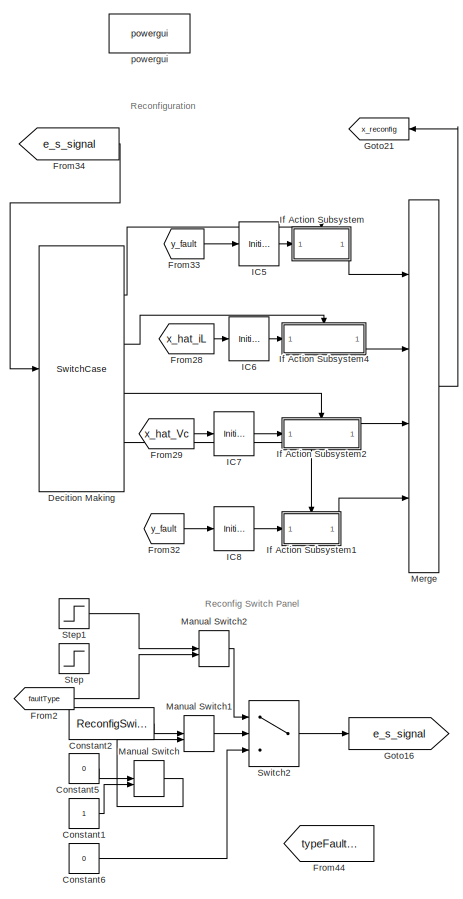
[diagram: Reconfiguration - part 1/3, left side, full height]
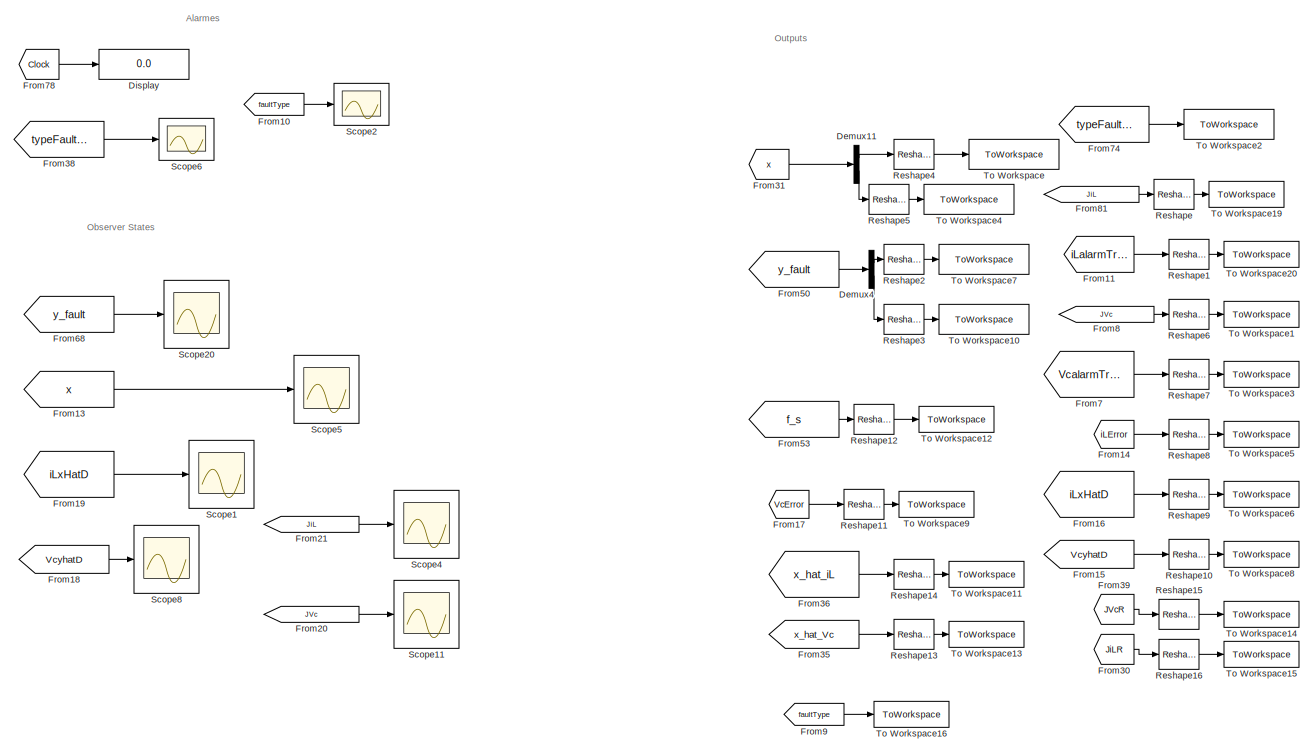
[diagram: Reconfiguration - part 2/3, right side, full height]
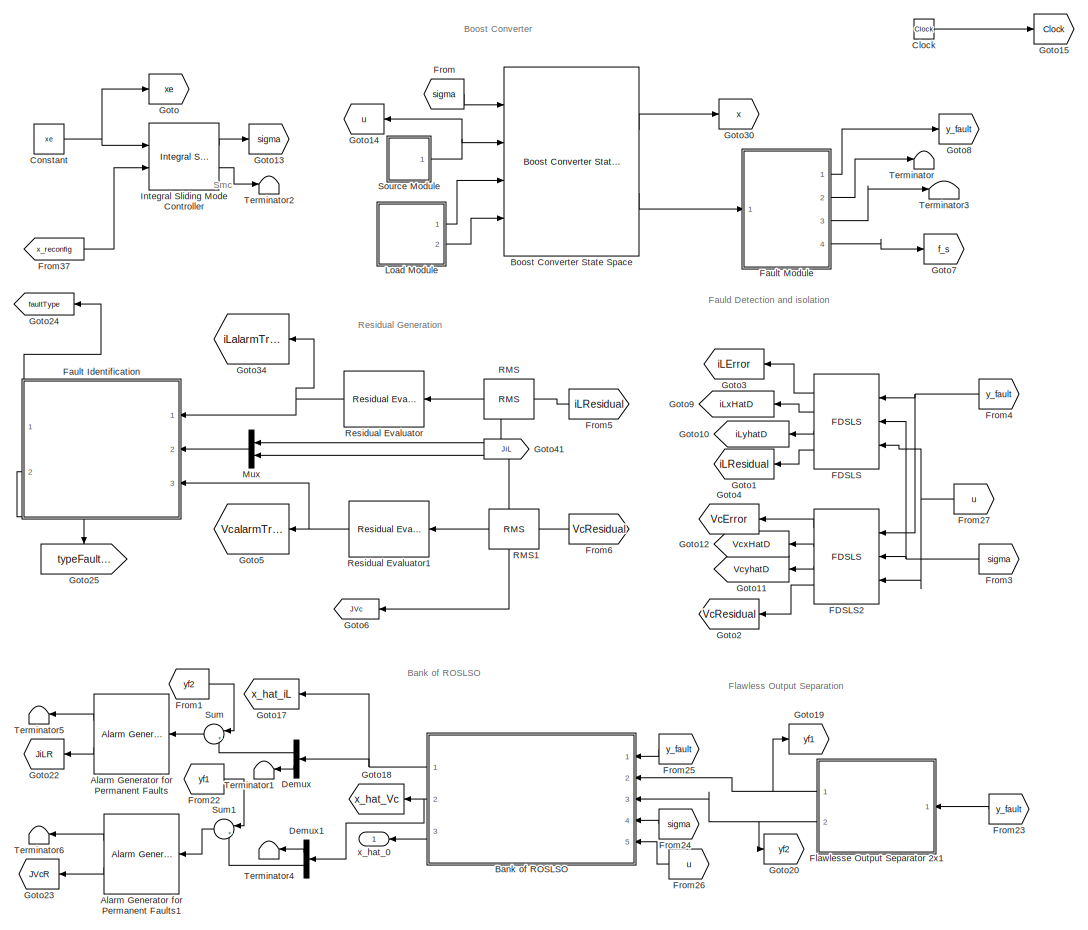
[diagram: Reconfiguration - part 3/3, center side, full height]
BLOCK [SubSystem] Reconfiguration
  Ports = [0, 1]
  RequestExecContextInheritance = off
BLOCK [Reference] Reconfiguration/Alarm Generator for Permanent Faults  REF=PhdLibrary/Alarm Generator
for Permanent Faults
  NameLocation = top
  Ports = [1, 2]
  SourceBlock = PhdLibrary/Alarm Generator\nfor Permanent Faults
  SourceProductName = Phd Diego
  SourceType = Alarm generator for permanent (persistent) faults
BLOCK [Reference] Reconfiguration/Alarm Generator for Permanent Faults1  REF=PhdLibrary/Alarm Generator
for Permanent Faults
  NameLocation = top
  Ports = [1, 2]
  SourceBlock = PhdLibrary/Alarm Generator\nfor Permanent Faults
  SourceProductName = Phd Diego
  SourceType = Alarm generator for permanent (persistent) faults
BLOCK [SubSystem] Reconfiguration/Bank of ROSLSO
  NameLocation = top
  Ports = [5, 3]
  RequestExecContextInheritance = off
BLOCK [Reference] Reconfiguration/Bank of ROSLSO/ROSLSO 2 Subsystems  REF=PhdLibrary/ROSLSO
 2 Subsystems
  Ports = [3, 2]
  SourceBlock = PhdLibrary/ROSLSO\n 2 Subsystems
  SourceProductName = Phd Diego
  SourceType = ROSLSO
BLOCK [Reference] Reconfiguration/Bank of ROSLSO/ROSLSO 2 Subsystems1  REF=PhdLibrary/ROSLSO
 2 Subsystems
  Ports = [3, 2]
  SourceBlock = PhdLibrary/ROSLSO\n 2 Subsystems
  SourceProductName = Phd Diego
  SourceType = ROSLSO
BLOCK [Terminator] Reconfiguration/Bank of ROSLSO/Terminator
BLOCK [Terminator] Reconfiguration/Bank of ROSLSO/Terminator1
BLOCK [Inport] Reconfiguration/Bank of ROSLSO/sigma
  Port = 4
BLOCK [Inport] Reconfiguration/Bank of ROSLSO/u
  Port = 5
BLOCK [Outport] Reconfiguration/Bank of ROSLSO/x_hat_0
  Port = 3
BLOCK [Outport] Reconfiguration/Bank of ROSLSO/x_hat_Vc
  Port = 2
BLOCK [Outport] Reconfiguration/Bank of ROSLSO/x_hat_iL
BLOCK [Inport] Reconfiguration/Bank of ROSLSO/y_f0
BLOCK [Inport] Reconfiguration/Bank of ROSLSO/y_f1
  Port = 2
BLOCK [Inport] Reconfiguration/Bank of ROSLSO/y_f2
  Port = 3
BLOCK [Reference] Reconfiguration/Boost Converter State Space  REF=PhdLibrary/Boost Converter 
State Space
  Ports = [4, 2]
  SourceBlock = PhdLibrary/Boost Converter \nState Space
  SourceProductName = Phd Diego
  SourceType = Boots State-Space model
BLOCK [Clock] Reconfiguration/Clock
BLOCK [Constant] Reconfiguration/Constant
  Value = xe
  VectorParams1D = off
BLOCK [Constant] Reconfiguration/Constant1
BLOCK [Constant] Reconfiguration/Constant2
  Value = ReconfigSwitch
BLOCK [Constant] Reconfiguration/Constant5
  Value = 0
BLOCK [Constant] Reconfiguration/Constant6
  Value = 0
BLOCK [SwitchCase] Reconfiguration/Decition Making
  CaseConditions = {[0],[1],[2]}
  Ports = [1, 4]
BLOCK [Demux] Reconfiguration/Demux
  NameLocation = top
  Outputs = 2
  Ports = [1, 2]
BLOCK [Demux] Reconfiguration/Demux1
  NameLocation = top
  Outputs = 2
  Ports = [1, 2]
BLOCK [Demux] Reconfiguration/Demux11
  Outputs = 2
  Ports = [1, 2]
BLOCK [Demux] Reconfiguration/Demux4
  Outputs = 2
  Ports = [1, 2]
BLOCK [Display] Reconfiguration/Display
  Decimation = 1
  Ports = [1]
BLOCK [Reference] Reconfiguration/FDSLS  REF=PhdLibrary/FDSLS
  NameLocation = top
  Ports = [3, 4]
  SourceBlock = PhdLibrary/FDSLS
  SourceProductName = Phd Diego
  SourceType = Sliding mode observer for Switched linear affine systems
BLOCK [Reference] Reconfiguration/FDSLS2  REF=PhdLibrary/FDSLS
  NameLocation = top
  Ports = [3, 4]
  SourceBlock = PhdLibrary/FDSLS
  SourceProductName = Phd Diego
  SourceType = Sliding mode observer for Switched linear affine systems
BLOCK [SubSystem] Reconfiguration/Fault Identification
  NameLocation = top
  Ports = [3, 2]
  RequestExecContextInheritance = off
BLOCK [SubSystem] Reconfiguration/Fault Identification/Anti false alarm
  Commented = on
  Ports = [4, 1]
  RequestExecContextInheritance = off
BLOCK [Logic] Reconfiguration/Fault Identification/Anti false alarm/AND
  AllPortsSameDT = off
  IconShape = distinctive
  OutDataTypeStr = boolean
  Ports = [2, 1]
BLOCK [Logic] Reconfiguration/Fault Identification/Anti false alarm/AND1
  AllPortsSameDT = off
  IconShape = distinctive
  OutDataTypeStr = boolean
  Ports = [2, 1]
BLOCK [Constant] Reconfiguration/Fault Identification/Anti false alarm/Constant
  Value = 50
BLOCK [Constant] Reconfiguration/Fault Identification/Anti false alarm/Constant7
  Value = 2
BLOCK [Constant] Reconfiguration/Fault Identification/Anti false alarm/Constant8
BLOCK [Delay] Reconfiguration/Fault Identification/Anti false alarm/Delay
  DelayLength = 1
  InputPortMap = u0
  Ports = [1, 1]
BLOCK [Demux] Reconfiguration/Fault Identification/Anti false alarm/Demux10
  Outputs = 2
  Ports = [1, 2]
BLOCK [Demux] Reconfiguration/Fault Identification/Anti false alarm/Demux3
  Outputs = 2
  Ports = [1, 2]
BLOCK [RelationalOperator] Reconfiguration/Fault Identification/Anti false alarm/Equal
  InputSameDT = off
  Operator = ==
  OutDataTypeStr = boolean
  Ports = [2, 1]
  RndMeth = Simplest
BLOCK [From] Reconfiguration/Fault Identification/Anti false alarm/From41
  GotoTag = e_s_signal
  NameLocation = top
BLOCK [Goto] Reconfiguration/Fault Identification/Anti false alarm/Goto
  GotoTag = e_s_signal
BLOCK [RelationalOperator] Reconfiguration/Fault Identification/Anti false alarm/GreaterThan
  InputSameDT = off
  Operator = >
  OutDataTypeStr = boolean
  Ports = [2, 1]
  RndMeth = Simplest
BLOCK [InitialCondition] Reconfiguration/Fault Identification/Anti false alarm/IC4
  NameLocation = left
BLOCK [Sum] Reconfiguration/Fault Identification/Anti false alarm/Sum
  Inputs = |++
  Ports = [2, 1]
BLOCK [Switch] Reconfiguration/Fault Identification/Anti false alarm/Switch
  InputSameDT = off
  SaturateOnIntegerOverflow = off
BLOCK [Terminator] Reconfiguration/Fault Identification/Anti false alarm/Terminator
BLOCK [Terminator] Reconfiguration/Fault Identification/Anti false alarm/Terminator1
BLOCK [Inport] Reconfiguration/Fault Identification/Anti false alarm/alarm
BLOCK [Inport] Reconfiguration/Fault Identification/Anti false alarm/e_s_signal
  Port = 4
BLOCK [Outport] Reconfiguration/Fault Identification/Anti false alarm/enable
BLOCK [Inport] Reconfiguration/Fault Identification/Anti false alarm/x_hat_iL
  Port = 2
BLOCK [Inport] Reconfiguration/Fault Identification/Anti false alarm/xe
  Port = 3
BLOCK [Constant] Reconfiguration/Fault Identification/Constant
  Value = 0
BLOCK [Constant] Reconfiguration/Fault Identification/Constant1
BLOCK [Constant] Reconfiguration/Fault Identification/Constant2
  Value = 2
BLOCK [From] Reconfiguration/Fault Identification/From
  GotoTag = nnoutpu
BLOCK [Goto] Reconfiguration/Fault Identification/Goto11
  GotoTag = nnoutpu
  NameLocation = right
BLOCK [InitialCondition] Reconfiguration/Fault Identification/IC
  Value = 0
BLOCK [InitialCondition] Reconfiguration/Fault Identification/IC1
  Value = 0
BLOCK [SubSystem] Reconfiguration/Fault Identification/MATLAB Function
  ErrorFcn = Stateflow.Translate.translate
  PermitHierarchicalResolution = ExplicitOnly
  Ports = [3, 1]
  RequestExecContextInheritance = off
  SFBlockType = MATLAB Function
  TreatAsAtomicUnit = on
BLOCK [Demux] Reconfiguration/Fault Identification/MATLAB Function/ Demux 
  Outputs = 1
  Ports = [1, 1]
BLOCK [S-Function] Reconfiguration/Fault Identification/MATLAB Function/ SFunction 
  EnableBusSupport = on
  FunctionName = sf_sfun
  PortCounts = [3 2]
  Ports = [3, 2]
  SFcnIsStateOwnerBlock = off
  SFunctionDeploymentMode = off
  Tag = Stateflow S-Function 2
BLOCK [Terminator] Reconfiguration/Fault Identification/MATLAB Function/ Terminator 
BLOCK [Inport] Reconfiguration/Fault Identification/MATLAB Function/VcAlarm
  Port = 3
BLOCK [Inport] Reconfiguration/Fault Identification/MATLAB Function/iLAlarm
  Port = 2
BLOCK [Inport] Reconfiguration/Fault Identification/MATLAB Function/u
BLOCK [Outport] Reconfiguration/Fault Identification/MATLAB Function/y
BLOCK [Reference] Reconfiguration/Fault Identification/Maximum  REF=dspstat3/Maximum
  Ports = [1, 2]
  SourceBlock = dspstat3/Maximum
  SourceProductBaseCode = DS
  SourceType = Maximum
  UserDataPersistent = on
BLOCK [MultiPortSwitch] Reconfiguration/Fault Identification/Multiport Switch
  DataPortForDefault = Additional data port
  InputSameDT = off
  Inputs = 5
  Ports = [7, 1]
  SaturateOnIntegerOverflow = off
BLOCK [Inport] Reconfiguration/Fault Identification/Netinput
  Port = 2
BLOCK [SubSystem] Reconfiguration/Fault Identification/Pattern Recognition Neural Network
  Ports = [1, 1]
  RequestExecContextInheritance = off
BLOCK [From] Reconfiguration/Fault Identification/Pattern Recognition Neural Network/ a{1} 
  GotoTag = feedback1
BLOCK [Inport] Reconfiguration/Fault Identification/Pattern Recognition Neural Network/Input
  PortDimensions = 2
BLOCK [SubSystem] Reconfiguration/Fault Identification/Pattern Recognition Neural Network/Layer 1
  Ports = [1, 1]
  RequestExecContextInheritance = off
BLOCK [SubSystem] Reconfiguration/Fault Identification/Pattern Recognition Neural Network/Layer 1/Delays 1
  Ports = [1, 1]
  RequestExecContextInheritance = off
BLOCK [Mux] Reconfiguration/Fault Identification/Pattern Recognition Neural Network/Layer 1/Delays 1/mux
  Inputs = 1
  Ports = [1, 1]
BLOCK [Outport] Reconfiguration/Fault Identification/Pattern Recognition Neural Network/Layer 1/Delays 1/pd{1,1}
BLOCK [Inport] Reconfiguration/Fault Identification/Pattern Recognition Neural Network/Layer 1/Delays 1/p{1}
  NameLocation = left
  PortDimensions = 2
BLOCK [SubSystem] Reconfiguration/Fault Identification/Pattern Recognition Neural Network/Layer 1/IW{1,1}
  Ports = [1, 1]
  RequestExecContextInheritance = off
BLOCK [Constant] Reconfiguration/Fault Identification/Pattern Recognition Neural Network/Layer 1/IW{1,1}/IW{1,1}(1,:)'
  Value = [11.63643705893124291606000042520463466644287109375;-10.3200076016572115378266971674747765064239501953125]
BLOCK [Constant] Reconfiguration/Fault Identification/Pattern Recognition Neural Network/Layer 1/IW{1,1}/IW{1,1}(2,:)'
  Value = [1.898779783991595859760082021239213645458221435546875;1.717719332240211116413775016553699970245361328125]
BLOCK [Constant] Reconfiguration/Fault Identification/Pattern Recognition Neural Network/Layer 1/IW{1,1}/IW{1,1}(3,:)'
  Value = [-5.7608601368840606227195166866295039653778076171875;-2.236336405391225579109004684141837060451507568359375]
BLOCK [Constant] Reconfiguration/Fault Identification/Pattern Recognition Neural Network/Layer 1/IW{1,1}/IW{1,1}(4,:)'
  Value = [5.18824041979811934055533129139803349971771240234375;9.184501415403925506097948527894914150238037109375]
BLOCK [Mux] Reconfiguration/Fault Identification/Pattern Recognition Neural Network/Layer 1/IW{1,1}/Mux
  Ports = [4, 1]
BLOCK [Reference] Reconfiguration/Fault Identification/Pattern Recognition Neural Network/Layer 1/IW{1,1}/dotprod1  REF=neural/Weight Functions/dotprod
  Ports = [2, 1]
  SourceBlock = neural/Weight Functions/dotprod
  SourceProductBaseCode = NN
  SourceType = DOTPROD
BLOCK [Reference] Reconfiguration/Fault Identification/Pattern Recognition Neural Network/Layer 1/IW{1,1}/dotprod2  REF=neural/Weight Functions/dotprod
  Ports = [2, 1]
  SourceBlock = neural/Weight Functions/dotprod
  SourceProductBaseCode = NN
  SourceType = DOTPROD
BLOCK [Reference] Reconfiguration/Fault Identification/Pattern Recognition Neural Network/Layer 1/IW{1,1}/dotprod3  REF=neural/Weight Functions/dotprod
  Ports = [2, 1]
  SourceBlock = neural/Weight Functions/dotprod
  SourceProductBaseCode = NN
  SourceType = DOTPROD
BLOCK [Reference] Reconfiguration/Fault Identification/Pattern Recognition Neural Network/Layer 1/IW{1,1}/dotprod4  REF=neural/Weight Functions/dotprod
  Ports = [2, 1]
  SourceBlock = neural/Weight Functions/dotprod
  SourceProductBaseCode = NN
  SourceType = DOTPROD
BLOCK [Outport] Reconfiguration/Fault Identification/Pattern Recognition Neural Network/Layer 1/IW{1,1}/iz{1,1}
BLOCK [Inport] Reconfiguration/Fault Identification/Pattern Recognition Neural Network/Layer 1/IW{1,1}/pd{1,1}
  PortDimensions = 2
BLOCK [Outport] Reconfiguration/Fault Identification/Pattern Recognition Neural Network/Layer 1/a{1}
  InitialOutput = [0;0;0;0]
BLOCK [Constant] Reconfiguration/Fault Identification/Pattern Recognition Neural Network/Layer 1/b{1}
  Value = [1.22077261248049051545194743084721267223358154296875;-0.1998329780659983956336844812540221028029918670654296875;-7.21506241785457103077305873739533126354217529296875;14.0631283131668478603160110651515424251556396484375]
BLOCK [Sum] Reconfiguration/Fault Identification/Pattern Recognition Neural Network/Layer 1/netsum
  IconShape = rectangular
  InputSameDT = on
  Inputs = 2
  OutDataTypeStr = Inherit: Same as first input
  Ports = [2, 1]
  SaturateOnIntegerOverflow = on
BLOCK [Inport] Reconfiguration/Fault Identification/Pattern Recognition Neural Network/Layer 1/p{1}
  PortDimensions = 2
BLOCK [Reference] Reconfiguration/Fault Identification/Pattern Recognition Neural Network/Layer 1/tansig  REF=neural/Transfer Functions/tansig
  Ports = [1, 1]
  SourceBlock = neural/Transfer Functions/tansig
  SourceProductBaseCode = NN
  SourceType = TANSIG
BLOCK [SubSystem] Reconfiguration/Fault Identification/Pattern Recognition Neural Network/Layer 2
  Ports = [1, 1]
  RequestExecContextInheritance = off
BLOCK [SubSystem] Reconfiguration/Fault Identification/Pattern Recognition Neural Network/Layer 2/Delays 1
  Ports = [1, 1]
  RequestExecContextInheritance = off
BLOCK [Mux] Reconfiguration/Fault Identification/Pattern Recognition Neural Network/Layer 2/Delays 1/mux
  Inputs = 1
  Ports = [1, 1]
BLOCK [Outport] Reconfiguration/Fault Identification/Pattern Recognition Neural Network/Layer 2/Delays 1/pd{2,1}
BLOCK [Inport] Reconfiguration/Fault Identification/Pattern Recognition Neural Network/Layer 2/Delays 1/p{2}
  NameLocation = left
  PortDimensions = 4
BLOCK [SubSystem] Reconfiguration/Fault Identification/Pattern Recognition Neural Network/Layer 2/LW{2,1}
  Ports = [1, 1]
  RequestExecContextInheritance = off
BLOCK [Constant] Reconfiguration/Fault Identification/Pattern Recognition Neural Network/Layer 2/LW{2,1}/IW{2,1}(1,:)'
  Value = [-0.758816881398248543888485073694027960300445556640625;0.424417754570571237326959135316428728401660919189453125;11.5760018766566670223028268082998692989349365234375;-17.16434413888124055347361718304455280303955078125]
BLOCK [Constant] Reconfiguration/Fault Identification/Pattern Recognition Neural Network/Layer 2/LW{2,1}/IW{2,1}(2,:)'
  Value = [-9.1085813763225740302686972427181899547576904296875;-1.3739740339236121702271020694752223789691925048828125;1.9043977411439707569940082976245321333408355712890625;2.754022797874950523322468143305741250514984130859375]
BLOCK [Constant] Reconfiguration/Fault Identification/Pattern Recognition Neural Network/Layer 2/LW{2,1}/IW{2,1}(3,:)'
  Value = [-7.41263022830842732702194552985019981861114501953125;-0.8067853430527545111061726856860332190990447998046875;-3.06564437953813495596477878279983997344970703125;4.64642738772163266247616775217466056346893310546875]
BLOCK [Constant] Reconfiguration/Fault Identification/Pattern Recognition Neural Network/Layer 2/LW{2,1}/IW{2,1}(4,:)'
  Value = [8.2671583198201261666326900012791156768798828125;-2.5154465447472507122483875718899071216583251953125;0.7215212623575222306016030415776185691356658935546875;2.56187604141184888106863581924699246883392333984375]
BLOCK [Constant] Reconfiguration/Fault Identification/Pattern Recognition Neural Network/Layer 2/LW{2,1}/IW{2,1}(5,:)'
  Value = [8.994520026627821351894453982822597026824951171875;0.6440166326554896958356266623013652861118316650390625;-9.832586217086056734615340246818959712982177734375;5.74314665310695460220813401974737644195556640625]
BLOCK [Mux] Reconfiguration/Fault Identification/Pattern Recognition Neural Network/Layer 2/LW{2,1}/Mux
  Inputs = 5
  Ports = [5, 1]
BLOCK [Inport] Reconfiguration/Fault Identification/Pattern Recognition Neural Network/Layer 2/LW{2,1}/ad{2,1}
  PortDimensions = 4
BLOCK [Reference] Reconfiguration/Fault Identification/Pattern Recognition Neural Network/Layer 2/LW{2,1}/dotprod1  REF=neural/Weight Functions/dotprod
  Ports = [2, 1]
  SourceBlock = neural/Weight Functions/dotprod
  SourceProductBaseCode = NN
  SourceType = DOTPROD
BLOCK [Reference] Reconfiguration/Fault Identification/Pattern Recognition Neural Network/Layer 2/LW{2,1}/dotprod2  REF=neural/Weight Functions/dotprod
  Ports = [2, 1]
  SourceBlock = neural/Weight Functions/dotprod
  SourceProductBaseCode = NN
  SourceType = DOTPROD
BLOCK [Reference] Reconfiguration/Fault Identification/Pattern Recognition Neural Network/Layer 2/LW{2,1}/dotprod3  REF=neural/Weight Functions/dotprod
  Ports = [2, 1]
  SourceBlock = neural/Weight Functions/dotprod
  SourceProductBaseCode = NN
  SourceType = DOTPROD
BLOCK [Reference] Reconfiguration/Fault Identification/Pattern Recognition Neural Network/Layer 2/LW{2,1}/dotprod4  REF=neural/Weight Functions/dotprod
  Ports = [2, 1]
  SourceBlock = neural/Weight Functions/dotprod
  SourceProductBaseCode = NN
  SourceType = DOTPROD
BLOCK [Reference] Reconfiguration/Fault Identification/Pattern Recognition Neural Network/Layer 2/LW{2,1}/dotprod5  REF=neural/Weight Functions/dotprod
  Ports = [2, 1]
  SourceBlock = neural/Weight Functions/dotprod
  SourceProductBaseCode = NN
  SourceType = DOTPROD
BLOCK [Outport] Reconfiguration/Fault Identification/Pattern Recognition Neural Network/Layer 2/LW{2,1}/lz{2,1}
BLOCK [Inport] Reconfiguration/Fault Identification/Pattern Recognition Neural Network/Layer 2/a{1} 
  PortDimensions = 4
BLOCK [Outport] Reconfiguration/Fault Identification/Pattern Recognition Neural Network/Layer 2/a{2}
  InitialOutput = [0;0;0;0;0]
BLOCK [Constant] Reconfiguration/Fault Identification/Pattern Recognition Neural Network/Layer 2/b{2}
  Value = [-0.28327165505055251770727409166283905506134033203125;-0.418393772523750373526496559861698187887668609619140625;0.2351244550115182130323177034370019100606441497802734375;1.90710436787325487983935090596787631511688232421875;-1.3761924879736036064770132725243456661701202392578125]
BLOCK [Sum] Reconfiguration/Fault Identification/Pattern Recognition Neural Network/Layer 2/netsum
  IconShape = rectangular
  InputSameDT = on
  Inputs = 2
  OutDataTypeStr = Inherit: Same as first input
  Ports = [2, 1]
  SaturateOnIntegerOverflow = on
BLOCK [Reference] Reconfiguration/Fault Identification/Pattern Recognition Neural Network/Layer 2/softmax  REF=neural/Transfer Functions/softmax
  Ports = [1, 1]
  SourceBlock = neural/Transfer Functions/softmax
  SourceProductBaseCode = NN
  SourceType = SOFTMAX
BLOCK [Outport] Reconfiguration/Fault Identification/Pattern Recognition Neural Network/Output
  InitialOutput = [0;0;0;0;0]
BLOCK [SubSystem] Reconfiguration/Fault Identification/Pattern Recognition Neural Network/Process Input 1
  Ports = [1, 1]
  RequestExecContextInheritance = off
BLOCK [Reference] Reconfiguration/Fault Identification/Pattern Recognition Neural Network/Process Input 1/mapminmax  REF=neural/Processing Functions/mapminmax
  Ports = [1, 1]
  SourceBlock = neural/Processing Functions/mapminmax
  SourceProductBaseCode = NN
  SourceType = MAPMINMAX Preprocess
BLOCK [Outport] Reconfiguration/Fault Identification/Pattern Recognition Neural Network/Process Input 1/p
  PortDimensions = 2
BLOCK [Inport] Reconfiguration/Fault Identification/Pattern Recognition Neural Network/Process Input 1/x
  PortDimensions = 2
BLOCK [SubSystem] Reconfiguration/Fault Identification/Pattern Recognition Neural Network/Process Output 1
  Ports = [1, 1]
  RequestExecContextInheritance = off
BLOCK [Inport] Reconfiguration/Fault Identification/Pattern Recognition Neural Network/Process Output 1/a
  PortDimensions = 5
BLOCK [Outport] Reconfiguration/Fault Identification/Pattern Recognition Neural Network/Process Output 1/y
  PortDimensions = 5
BLOCK [Goto] Reconfiguration/Fault Identification/Pattern Recognition Neural Network/a{1}
  GotoTag = feedback1
BLOCK [Scope] Reconfiguration/Fault Identification/Scope
  Floating = off
  NumInputPorts = 1
  Ports = [1]
  ScopeSpecificationString = Simulink.scopes.TimeScopeBlockCfg('CurrentConfiguration', extmgr.ConfigurationSet(extmgr.Configuration('Core','General UI',true),extmgr.Configuration('Core','Source UI',true),extmgr.Configuration('Sources','WiredSimulink',true,'DataLoggingVariableName','ScopeData2'),extmgr.Configuration('Visuals','Time Domain',true,'SerializedDisplays',{struct('MinYLimReal','-0.125','MaxYLimReal','1.125','YLabelRe...<+1393ch>
BLOCK [Scope] Reconfiguration/Fault Identification/Scope1
  Floating = off
  NumInputPorts = 1
  Ports = [1]
  ScopeSpecificationString = Simulink.scopes.TimeScopeBlockCfg('CurrentConfiguration', extmgr.ConfigurationSet(extmgr.Configuration('Core','General UI',true),extmgr.Configuration('Core','Source UI',true),extmgr.Configuration('Sources','WiredSimulink',true,'DataLoggingVariableName','ScopeData3'),extmgr.Configuration('Visuals','Time Domain',true,'SerializedDisplays',{struct('MinYLimReal','-1.00000','MaxYLimReal','1.00000','YLab...<+1406ch>
BLOCK [Scope] Reconfiguration/Fault Identification/Scope2
  Floating = off
  NumInputPorts = 1
  Ports = [1]
  ScopeSpecificationString = Simulink.scopes.TimeScopeBlockCfg('CurrentConfiguration', extmgr.ConfigurationSet(extmgr.Configuration('Core','General UI',true),extmgr.Configuration('Core','Source UI',true),extmgr.Configuration('Sources','WiredSimulink',true,'DataLoggingVariableName','ScopeData4'),extmgr.Configuration('Visuals','Time Domain',true,'SerializedDisplays',{struct('MinYLimReal','-0.125','MaxYLimReal','1.125','YLabelRe...<+1362ch>
BLOCK [Scope] Reconfiguration/Fault Identification/Scope3
  Floating = off
  NumInputPorts = 1
  Ports = [1]
  ScopeSpecificationString = Simulink.scopes.TimeScopeBlockCfg('CurrentConfiguration', extmgr.ConfigurationSet(extmgr.Configuration('Core','General UI',true),extmgr.Configuration('Core','Source UI',true),extmgr.Configuration('Sources','WiredSimulink',true,'DataLoggingVariableName','ScopeData5'),extmgr.Configuration('Visuals','Time Domain',true,'SerializedDisplays',{struct('MinYLimReal','-0.12329','MaxYLimReal','1.07206','YLab...<+1419ch>
BLOCK [Terminator] Reconfiguration/Fault Identification/Terminator
BLOCK [Inport] Reconfiguration/Fault Identification/VcalarmTrue1
  Port = 3
BLOCK [Outport] Reconfiguration/Fault Identification/faulType
BLOCK [Inport] Reconfiguration/Fault Identification/iLalarmTrue
BLOCK [Outport] Reconfiguration/Fault Identification/nnoutput
  Port = 2
BLOCK [SubSystem] Reconfiguration/Fault Module
  Ports = [1, 4]
  RequestExecContextInheritance = off
BLOCK [Constant] Reconfiguration/Fault Module/Constant
  Value = iLFaultSwitch
BLOCK [Constant] Reconfiguration/Fault Module/Constant1
  Value = VcFaultSwitch
BLOCK [Demux] Reconfiguration/Fault Module/Demux
  Outputs = 2
  Ports = [1, 2]
BLOCK [Demux] Reconfiguration/Fault Module/Demux1
  Outputs = 2
  Ports = [1, 2]
BLOCK [From] Reconfiguration/Fault Module/From
  GotoTag = y
BLOCK [Goto] Reconfiguration/Fault Module/Goto
  GotoTag = y
BLOCK [Reference] Reconfiguration/Fault Module/Loss of sensor Generator  REF=PhdLibrary/Loss of sensor
Generator
  Ports = [2, 1]
  SourceBlock = PhdLibrary/Loss of sensor\nGenerator
  SourceProductName = Phd Diego
  SourceType = Loss of sensor signal fault generator
BLOCK [Reference] Reconfiguration/Fault Module/Loss of sensor Generator1  REF=PhdLibrary/Loss of sensor
Generator
  Ports = [2, 1]
  SourceBlock = PhdLibrary/Loss of sensor\nGenerator
  SourceProductName = Phd Diego
  SourceType = Loss of sensor signal fault generator
BLOCK [MultiPortSwitch] Reconfiguration/Fault Module/Multiport Switch
  DataPortForDefault = Additional data port
  DataPortOrder = Zero-based contiguous
  InputSameDT = off
  Ports = [5, 1]
  SaturateOnIntegerOverflow = off
  zeroidx = on
BLOCK [MultiPortSwitch] Reconfiguration/Fault Module/Multiport Switch1
  DataPortForDefault = Additional data port
  DataPortOrder = Zero-based contiguous
  InputSameDT = off
  Ports = [5, 1]
  SaturateOnIntegerOverflow = off
  zeroidx = on
BLOCK [Mux] Reconfiguration/Fault Module/Mux
  DisplayOption = bar
  Inputs = 2
  Ports = [2, 1]
BLOCK [Reference] Reconfiguration/Fault Module/Offset Fault Generator  REF=PhdLibrary/Offset Fault
Generator
  Commented = on
  Ports = [2, 1]
  SourceBlock = PhdLibrary/Offset Fault\nGenerator
  SourceProductName = Phd Diego
  SourceType = Step faults
BLOCK [Scope] Reconfiguration/Fault Module/Scope
  Floating = off
  NumInputPorts = 1
  Ports = [1]
  ScopeSpecificationString = Simulink.scopes.TimeScopeBlockCfg('CurrentConfiguration', extmgr.ConfigurationSet(extmgr.Configuration('Core','General UI',true),extmgr.Configuration('Core','Source UI',true),extmgr.Configuration('Sources','WiredSimulink',true,'DataLoggingVariableName','ScopeData1'),extmgr.Configuration('Visuals','Time Domain',true,'SerializedDisplays',{struct('MinYLimReal','-60.42515','MaxYLimReal','543.82631','Y...<+1408ch>
BLOCK [Scope] Reconfiguration/Fault Module/Scope1
  Floating = off
  NumInputPorts = 1
  Ports = [1]
  ScopeSpecificationString = Simulink.scopes.TimeScopeBlockCfg('CurrentConfiguration', extmgr.ConfigurationSet(extmgr.Configuration('Core','General UI',true),extmgr.Configuration('Core','Source UI',true),extmgr.Configuration('Sources','WiredSimulink',true,'DataLoggingVariableName','ScopeData2'),extmgr.Configuration('Visuals','Time Domain',true,'SerializedDisplays',{struct('MinYLimReal','-60.42515','MaxYLimReal','543.82631','Y...<+1377ch>
BLOCK [Reference] Reconfiguration/Fault Module/Sensor Gain Fault Generator  REF=PhdLibrary/Sensor Gain
Fault Generator
  Ports = [2, 1]
  SourceBlock = PhdLibrary/Sensor Gain\nFault Generator
  SourceProductName = Phd Diego
  SourceType = Sensor gain fault generator
BLOCK [Reference] Reconfiguration/Fault Module/Sensor Gain Fault Generator2  REF=PhdLibrary/Sensor Gain
Fault Generator
  Ports = [2, 1]
  SourceBlock = PhdLibrary/Sensor Gain\nFault Generator
  SourceProductName = Phd Diego
  SourceType = Sensor gain fault generator
BLOCK [Sum] Reconfiguration/Fault Module/Sum
  Inputs = |+-
  Ports = [2, 1]
BLOCK [Terminator] Reconfiguration/Fault Module/Terminator
BLOCK [Terminator] Reconfiguration/Fault Module/Terminator1
BLOCK [Step] Reconfiguration/Fault Module/VcFault
  After = 2
  SampleTime = 0
  Time = VcFaultTime
BLOCK [Outport] Reconfiguration/Fault Module/f_s
  Port = 4
BLOCK [Step] Reconfiguration/Fault Module/iLFault
  SampleTime = 0
  Time = iLFaultTime
BLOCK [Outport] Reconfiguration/Fault Module/iL_fault
  Port = 2
BLOCK [Outport] Reconfiguration/Fault Module/vc_fault
  Port = 3
BLOCK [Inport] Reconfiguration/Fault Module/y
BLOCK [Outport] Reconfiguration/Fault Module/y_fault
BLOCK [SubSystem] Reconfiguration/Flawlesse Output Separator 2x1
  Ports = [1, 2]
  RequestExecContextInheritance = off
BLOCK [Constant] Reconfiguration/Flawlesse Output Separator 2x1/Matrizes A1
  Value = Cf2
  VectorParams1D = off
BLOCK [Constant] Reconfiguration/Flawlesse Output Separator 2x1/Matrizes A2
  Value = Cf1
  VectorParams1D = off
BLOCK [Product] Reconfiguration/Flawlesse Output Separator 2x1/Product
  Multiplication = Matrix(*)
  Ports = [2, 1]
BLOCK [Product] Reconfiguration/Flawlesse Output Separator 2x1/Product1
  Multiplication = Matrix(*)
  Ports = [2, 1]
BLOCK [Inport] Reconfiguration/Flawlesse Output Separator 2x1/y
BLOCK [Outport] Reconfiguration/Flawlesse Output Separator 2x1/y_f1
BLOCK [Outport] Reconfiguration/Flawlesse Output Separator 2x1/y_f2
  Port = 2
BLOCK [From] Reconfiguration/From
  GotoTag = sigma
BLOCK [From] Reconfiguration/From1
  GotoTag = yf2
BLOCK [From] Reconfiguration/From10
  GotoTag = faultType
  NameLocation = top
BLOCK [From] Reconfiguration/From11
  GotoTag = iLalarmTrue
  NameLocation = top
BLOCK [From] Reconfiguration/From13
  GotoTag = x
BLOCK [From] Reconfiguration/From14
  GotoTag = iLError
BLOCK [From] Reconfiguration/From15
  GotoTag = VcyhatD
BLOCK [From] Reconfiguration/From16
  GotoTag = iLxHatD
  NameLocation = top
BLOCK [From] Reconfiguration/From17
  GotoTag = VcError
BLOCK [From] Reconfiguration/From18
  GotoTag = VcyhatD
BLOCK [From] Reconfiguration/From19
  GotoTag = iLxHatD
  NameLocation = top
BLOCK [From] Reconfiguration/From2
  GotoTag = faultType
  NameLocation = top
BLOCK [From] Reconfiguration/From20
  GotoTag = JVc
  TagVisibility = global
BLOCK [From] Reconfiguration/From21
  GotoTag = JiL
  TagVisibility = global
BLOCK [From] Reconfiguration/From22
  GotoTag = yf1
BLOCK [From] Reconfiguration/From23
  GotoTag = y_fault
  NameLocation = top
BLOCK [From] Reconfiguration/From24
  GotoTag = sigma
  NameLocation = top
BLOCK [From] Reconfiguration/From25
  GotoTag = y_fault
  NameLocation = top
BLOCK [From] Reconfiguration/From26
  GotoTag = u
BLOCK [From] Reconfiguration/From27
  GotoTag = u
BLOCK [From] Reconfiguration/From28
  GotoTag = x_hat_iL
BLOCK [From] Reconfiguration/From29
  GotoTag = x_hat_Vc
BLOCK [From] Reconfiguration/From3
  GotoTag = sigma
  NameLocation = top
BLOCK [From] Reconfiguration/From30
  GotoTag = JiLR
  NameLocation = top
BLOCK [From] Reconfiguration/From31
  GotoTag = x
BLOCK [From] Reconfiguration/From32
  GotoTag = y_fault
BLOCK [From] Reconfiguration/From33
  GotoTag = y_fault
BLOCK [From] Reconfiguration/From34
  GotoTag = e_s_signal
BLOCK [From] Reconfiguration/From35
  GotoTag = x_hat_Vc
BLOCK [From] Reconfiguration/From36
  GotoTag = x_hat_iL
  NameLocation = top
BLOCK [From] Reconfiguration/From37
  GotoTag = x_reconfig
  NameLocation = top
BLOCK [From] Reconfiguration/From38
  GotoTag = typeFaultIsolated
BLOCK [From] Reconfiguration/From39
  GotoTag = JVcR
  NameLocation = top
BLOCK [From] Reconfiguration/From4
  GotoTag = y_fault
  NameLocation = top
BLOCK [From] Reconfiguration/From44
  Commented = on
  GotoTag = typeFaultIsolated
BLOCK [From] Reconfiguration/From5
  GotoTag = iLResidual
BLOCK [From] Reconfiguration/From50
  GotoTag = y_fault
BLOCK [From] Reconfiguration/From53
  GotoTag = f_s
BLOCK [From] Reconfiguration/From6
  GotoTag = VcResidual
BLOCK [From] Reconfiguration/From68
  GotoTag = y_fault
BLOCK [From] Reconfiguration/From7
  GotoTag = VcalarmTrue
  NameLocation = top
BLOCK [From] Reconfiguration/From74
  GotoTag = typeFaultIsolated
BLOCK [From] Reconfiguration/From78
  GotoTag = Clock
BLOCK [From] Reconfiguration/From8
  GotoTag = JVc
  TagVisibility = global
BLOCK [From] Reconfiguration/From81
  GotoTag = JiL
  TagVisibility = global
BLOCK [From] Reconfiguration/From9
  GotoTag = faultType
  NameLocation = top
BLOCK [Goto] Reconfiguration/Goto
  GotoTag = xe
BLOCK [Goto] Reconfiguration/Goto1
  GotoTag = iLResidual
  NameLocation = top
BLOCK [Goto] Reconfiguration/Goto10
  GotoTag = iLyhatD
  NameLocation = top
BLOCK [Goto] Reconfiguration/Goto11
  GotoTag = VcyhatD
  NameLocation = top
BLOCK [Goto] Reconfiguration/Goto12
  GotoTag = VcxHatD
  NameLocation = top
BLOCK [Goto] Reconfiguration/Goto13
  GotoTag = sigma
BLOCK [Goto] Reconfiguration/Goto14
  GotoTag = u
  NameLocation = top
BLOCK [Goto] Reconfiguration/Goto15
  GotoTag = Clock
BLOCK [Goto] Reconfiguration/Goto16
  GotoTag = e_s_signal
BLOCK [Goto] Reconfiguration/Goto17
  GotoTag = x_hat_iL
  NameLocation = top
BLOCK [Goto] Reconfiguration/Goto18
  GotoTag = x_hat_Vc
  NameLocation = top
BLOCK [Goto] Reconfiguration/Goto19
  GotoTag = yf1
BLOCK [Goto] Reconfiguration/Goto2
  GotoTag = VcResidual
  NameLocation = top
BLOCK [Goto] Reconfiguration/Goto20
  GotoTag = yf2
BLOCK [Goto] Reconfiguration/Goto21
  GotoTag = x_reconfig
BLOCK [Goto] Reconfiguration/Goto22
  GotoTag = JiLR
  NameLocation = top
BLOCK [Goto] Reconfiguration/Goto23
  GotoTag = JVcR
  NameLocation = top
BLOCK [Goto] Reconfiguration/Goto24
  GotoTag = faultType
BLOCK [Goto] Reconfiguration/Goto25
  GotoTag = typeFaultIsolated
  NameLocation = left
BLOCK [Goto] Reconfiguration/Goto3
  GotoTag = iLError
  NameLocation = top
BLOCK [Goto] Reconfiguration/Goto30
  GotoTag = x
BLOCK [Goto] Reconfiguration/Goto34
  GotoTag = iLalarmTrue
BLOCK [Goto] Reconfiguration/Goto4
  GotoTag = VcError
  NameLocation = top
BLOCK [Goto] Reconfiguration/Goto41
  GotoTag = JiL
  NameLocation = top
  TagVisibility = global
BLOCK [Goto] Reconfiguration/Goto5
  GotoTag = VcalarmTrue
BLOCK [Goto] Reconfiguration/Goto6
  GotoTag = JVc
  TagVisibility = global
BLOCK [Goto] Reconfiguration/Goto7
  GotoTag = f_s
BLOCK [Goto] Reconfiguration/Goto8
  GotoTag = y_fault
  NameLocation = top
BLOCK [Goto] Reconfiguration/Goto9
  GotoTag = iLxHatD
  NameLocation = top
BLOCK [InitialCondition] Reconfiguration/IC5
  Value = [0;0]
BLOCK [InitialCondition] Reconfiguration/IC6
  Value = [0;0]
BLOCK [InitialCondition] Reconfiguration/IC7
  Value = [0;0]
BLOCK [InitialCondition] Reconfiguration/IC8
  Value = [0;0]
BLOCK [SubSystem] Reconfiguration/If Action Subsystem
  Ports = [1, 1, 0, 0, 0, 0, 0, 1]
  RequestExecContextInheritance = off
  TreatAsAtomicUnit = on
BLOCK [ActionPort] Reconfiguration/If Action Subsystem/Action Port
  ActionPortLabel = case [ 0 ]:
BLOCK [Inport] Reconfiguration/If Action Subsystem/In1
BLOCK [Outport] Reconfiguration/If Action Subsystem/Out1
BLOCK [SubSystem] Reconfiguration/If Action Subsystem1
  Ports = [1, 1, 0, 0, 0, 0, 0, 1]
  RequestExecContextInheritance = off
  TreatAsAtomicUnit = on
BLOCK [ActionPort] Reconfiguration/If Action Subsystem1/Action Port
  ActionPortLabel = default:
BLOCK [Inport] Reconfiguration/If Action Subsystem1/In1
BLOCK [Outport] Reconfiguration/If Action Subsystem1/Out1
BLOCK [SubSystem] Reconfiguration/If Action Subsystem2
  Ports = [1, 1, 0, 0, 0, 0, 0, 1]
  RequestExecContextInheritance = off
  TreatAsAtomicUnit = on
BLOCK [ActionPort] Reconfiguration/If Action Subsystem2/Action Port
  ActionPortLabel = case [ 2 ]:
BLOCK [Outport] Reconfiguration/If Action Subsystem2/x_hat
BLOCK [Inport] Reconfiguration/If Action Subsystem2/y
BLOCK [SubSystem] Reconfiguration/If Action Subsystem4
  Ports = [1, 1, 0, 0, 0, 0, 0, 1]
  RequestExecContextInheritance = off
  TreatAsAtomicUnit = on
BLOCK [ActionPort] Reconfiguration/If Action Subsystem4/Action Port
  ActionPortLabel = case [ 1 ]:
BLOCK [Outport] Reconfiguration/If Action Subsystem4/x_hat
BLOCK [Inport] Reconfiguration/If Action Subsystem4/y
BLOCK [Reference] Reconfiguration/Integral Sliding Mode Controller  REF=PhdLibrary/Integral Sliding 
Mode Controller
  Ports = [2, 2]
  SourceBlock = PhdLibrary/Integral Sliding \nMode Controller
  SourceProductName = Phd Diego
  SourceType = Sliding mode controller
BLOCK [SubSystem] Reconfiguration/Load Module
  Ports = [0, 2]
  RequestExecContextInheritance = off
BLOCK [Reference] Reconfiguration/Load Module/Load_add_switch  REF=PhdLibrary/Step
Perturbation
  Ports = [0, 1]
  SourceBlock = PhdLibrary/Step\nPerturbation
  SourceProductName = Phd Diego
  SourceType = Step Perturbation
BLOCK [Reference] Reconfiguration/Load Module/Load_remove_switch  REF=PhdLibrary/Step
Perturbation
  Ports = [0, 1]
  SourceBlock = PhdLibrary/Step\nPerturbation
  SourceProductName = Phd Diego
  SourceType = Step Perturbation
BLOCK [Outport] Reconfiguration/Load Module/Ro_add
  Port = 2
BLOCK [Outport] Reconfiguration/Load Module/Ro_remove
BLOCK [ManualSwitch] Reconfiguration/Manual Switch
  CurrentSetting = 0
BLOCK [ManualSwitch] Reconfiguration/Manual Switch1
BLOCK [ManualSwitch] Reconfiguration/Manual Switch2
  CurrentSetting = 0
BLOCK [Merge] Reconfiguration/Merge
  Inputs = 4
  Ports = [4, 1]
BLOCK [Mux] Reconfiguration/Mux
  DisplayOption = bar
  Inputs = 2
  NameLocation = top
  Ports = [2, 1]
BLOCK [Reference] Reconfiguration/RMS  REF=powerlib_meascontrol/Measurements/RMS
  Ports = [1, 1]
  SourceBlock = powerlib_meascontrol/Measurements/RMS
  SourceProductBaseCode = PS
  SourceType = RMS
BLOCK [Reference] Reconfiguration/RMS1  REF=powerlib_meascontrol/Measurements/RMS
  NameLocation = top
  Ports = [1, 1]
  SourceBlock = powerlib_meascontrol/Measurements/RMS
  SourceProductBaseCode = PS
  SourceType = RMS
BLOCK [Reshape] Reconfiguration/Reshape
  Ports = [1, 1]
BLOCK [Reshape] Reconfiguration/Reshape1
  Ports = [1, 1]
BLOCK [Reshape] Reconfiguration/Reshape10
  Ports = [1, 1]
BLOCK [Reshape] Reconfiguration/Reshape11
  Ports = [1, 1]
BLOCK [Reshape] Reconfiguration/Reshape12
  Ports = [1, 1]
BLOCK [Reshape] Reconfiguration/Reshape13
  Ports = [1, 1]
BLOCK [Reshape] Reconfiguration/Reshape14
  Ports = [1, 1]
BLOCK [Reshape] Reconfiguration/Reshape15
  Ports = [1, 1]
BLOCK [Reshape] Reconfiguration/Reshape16
  Ports = [1, 1]
BLOCK [Reshape] Reconfiguration/Reshape2
  Ports = [1, 1]
BLOCK [Reshape] Reconfiguration/Reshape3
  Ports = [1, 1]
BLOCK [Reshape] Reconfiguration/Reshape4
  Ports = [1, 1]
BLOCK [Reshape] Reconfiguration/Reshape5
  Ports = [1, 1]
BLOCK [Reshape] Reconfiguration/Reshape6
  Ports = [1, 1]
BLOCK [Reshape] Reconfiguration/Reshape7
  Ports = [1, 1]
BLOCK [Reshape] Reconfiguration/Reshape8
  Ports = [1, 1]
BLOCK [Reshape] Reconfiguration/Reshape9
  Ports = [1, 1]
BLOCK [Reference] Reconfiguration/Residual Evaluator  REF=PhdLibrary/Residual Evaluator
  NameLocation = top
  Ports = [1, 1]
  SourceBlock = PhdLibrary/Residual Evaluator
  SourceProductName = Phd Diego
  SourceType = Fault detector
BLOCK [Reference] Reconfiguration/Residual Evaluator1  REF=PhdLibrary/Residual Evaluator
  NameLocation = top
  Ports = [1, 1]
  SourceBlock = PhdLibrary/Residual Evaluator
  SourceProductName = Phd Diego
  SourceType = Fault detector
BLOCK [Scope] Reconfiguration/Scope1
  Floating = off
  NumInputPorts = 1
  Ports = [1]
  ScopeSpecificationString = Simulink.scopes.TimeScopeBlockCfg('CurrentConfiguration', extmgr.ConfigurationSet(extmgr.Configuration('Core','General UI',true,'FigureColor',[1 1 1]),extmgr.Configuration('Core','Source UI',true),extmgr.Configuration('Sources','WiredSimulink',true,'DataLoggingVariableName','ScopeData1'),extmgr.Configuration('Visuals','Time Domain',true,'SerializedDisplays',{struct('MinYLimReal','-420.44776','MaxY...<+2510ch>
BLOCK [Scope] Reconfiguration/Scope11
  Floating = off
  NumInputPorts = 1
  Ports = [1]
  ScopeSpecificationString = Simulink.scopes.TimeScopeBlockCfg('CurrentConfiguration', extmgr.ConfigurationSet(extmgr.Configuration('Core','General UI',true,'FigureColor',[1 1 1]),extmgr.Configuration('Core','Source UI',true),extmgr.Configuration('Sources','WiredSimulink',true,'DataLoggingVariableName','ScopeData5'),extmgr.Configuration('Visuals','Time Domain',true,'SerializedDisplays',{struct('MinYLimReal','-0.17548','MaxYLi...<+2483ch>
BLOCK [Scope] Reconfiguration/Scope2
  Floating = off
  NumInputPorts = 1
  Ports = [1]
  ScopeSpecificationString = Simulink.scopes.TimeScopeBlockCfg('CurrentConfiguration', extmgr.ConfigurationSet(extmgr.Configuration('Core','General UI',true),extmgr.Configuration('Core','Source UI',true),extmgr.Configuration('Sources','WiredSimulink',true,'DataLoggingVariableName','ScopeData1'),extmgr.Configuration('Visuals','Time Domain',true,'SerializedDisplays',{struct('MinYLimReal','-0.125','MaxYLimReal','1.125','YLabelRe...<+1419ch>
BLOCK [Scope] Reconfiguration/Scope20
  Floating = off
  NumInputPorts = 1
  Ports = [1]
  ScopeSpecificationString = Simulink.scopes.TimeScopeBlockCfg('CurrentConfiguration', extmgr.ConfigurationSet(extmgr.Configuration('Core','General UI',true,'FigureColor',[1 1 1]),extmgr.Configuration('Core','Source UI',true),extmgr.Configuration('Sources','WiredSimulink',true,'DataLoggingVariableName','ScopeData6'),extmgr.Configuration('Visuals','Time Domain',true,'SerializedDisplays',{struct('MinYLimReal','-12.48089','MaxYL...<+1828ch>
BLOCK [Scope] Reconfiguration/Scope4
  Floating = off
  NumInputPorts = 1
  Ports = [1]
  ScopeSpecificationString = Simulink.scopes.TimeScopeBlockCfg('CurrentConfiguration', extmgr.ConfigurationSet(extmgr.Configuration('Core','General UI',true,'FigureColor',[1 1 1]),extmgr.Configuration('Core','Source UI',true),extmgr.Configuration('Sources','WiredSimulink',true,'DataLoggingVariableName','ScopeData2'),extmgr.Configuration('Visuals','Time Domain',true,'SerializedDisplays',{struct('MinYLimReal','-5.098','MaxYLimR...<+2483ch>
BLOCK [Scope] Reconfiguration/Scope5
  Floating = off
  NumInputPorts = 1
  Ports = [1]
  ScopeSpecificationString = Simulink.scopes.TimeScopeBlockCfg('CurrentConfiguration', extmgr.ConfigurationSet(extmgr.Configuration('Core','General UI',true,'FigureColor',[1 1 1]),extmgr.Configuration('Core','Source UI',true),extmgr.Configuration('Sources','WiredSimulink',true,'DataLoggingVariableName','ScopeData8'),extmgr.Configuration('Visuals','Time Domain',true,'SerializedDisplays',{struct('MinYLimReal','-47.50306','MaxYL...<+1861ch>
BLOCK [Scope] Reconfiguration/Scope6
  Floating = off
  NumInputPorts = 1
  Ports = [1]
  ScopeSpecificationString = Simulink.scopes.TimeScopeBlockCfg('CurrentConfiguration', extmgr.ConfigurationSet(extmgr.Configuration('Core','General UI',true),extmgr.Configuration('Core','Source UI',true),extmgr.Configuration('Sources','WiredSimulink',true,'DataLoggingVariableName','ScopeData9'),extmgr.Configuration('Visuals','Time Domain',true,'SerializedDisplays',{struct('MinYLimReal','0.875','MaxYLimReal','2.125','YLabelRea...<+1432ch>
BLOCK [Scope] Reconfiguration/Scope8
  Floating = off
  NumInputPorts = 1
  Ports = [1]
  ScopeSpecificationString = Simulink.scopes.TimeScopeBlockCfg('CurrentConfiguration', extmgr.ConfigurationSet(extmgr.Configuration('Core','General UI',true,'FigureColor',[1 1 1]),extmgr.Configuration('Core','Source UI',true),extmgr.Configuration('Sources','WiredSimulink',true,'DataLoggingVariableName','ScopeData3'),extmgr.Configuration('Visuals','Time Domain',true,'SerializedDisplays',{struct('MinYLimReal','-1.37418','MaxYLi...<+2504ch>
BLOCK [SubSystem] Reconfiguration/Source Module
  Ports = [0, 1]
  RequestExecContextInheritance = off
BLOCK [Constant] Reconfiguration/Source Module/Constant1
  Value = SourceAddSwitch
  VectorParams1D = off
BLOCK [Constant] Reconfiguration/Source Module/Constant11
  Value = u
BLOCK [Reference] Reconfiguration/Source Module/Source_add_switch  REF=PhdLibrary/Step
Perturbation
  Ports = [0, 1]
  SourceBlock = PhdLibrary/Step\nPerturbation
  SourceProductName = Phd Diego
  SourceType = Step Perturbation
BLOCK [Reference] Reconfiguration/Source Module/Source_remove_switch  REF=PhdLibrary/Step
Perturbation
  Ports = [0, 1]
  SourceBlock = PhdLibrary/Step\nPerturbation
  SourceProductName = Phd Diego
  SourceType = Step Perturbation
BLOCK [Sum] Reconfiguration/Source Module/Sum
  Inputs = |++
  Ports = [2, 1]
BLOCK [Sum] Reconfiguration/Source Module/Sum1
  Inputs = |++
  Ports = [2, 1]
BLOCK [Switch] Reconfiguration/Source Module/Switch
  Criteria = u2 > Threshold
  InputSameDT = off
  SaturateOnIntegerOverflow = off
BLOCK [Outport] Reconfiguration/Source Module/u_var
BLOCK [Step] Reconfiguration/Step
  After = 2
  SampleTime = 0
  Time = 1.707
BLOCK [Step] Reconfiguration/Step1
  After = FaultClass
  SampleTime = 0
  Time = ReconfigTime
BLOCK [Sum] Reconfiguration/Sum
  Inputs = |+-
  NameLocation = top
  Ports = [2, 1]
BLOCK [Sum] Reconfiguration/Sum1
  Inputs = |+-
  NameLocation = top
  Ports = [2, 1]
BLOCK [Switch] Reconfiguration/Switch2
  Criteria = u2 > Threshold
  InputSameDT = off
  SaturateOnIntegerOverflow = off
BLOCK [Terminator] Reconfiguration/Terminator
BLOCK [Terminator] Reconfiguration/Terminator1
  NameLocation = top
BLOCK [Terminator] Reconfiguration/Terminator2
BLOCK [Terminator] Reconfiguration/Terminator3
BLOCK [Terminator] Reconfiguration/Terminator4
  NameLocation = top
BLOCK [Terminator] Reconfiguration/Terminator5
  NameLocation = top
BLOCK [Terminator] Reconfiguration/Terminator6
  NameLocation = top
BLOCK [ToWorkspace] Reconfiguration/To Workspace
  FixptAsFi = on
  MaxDataPoints = inf
  Ports = [1]
  SampleTime = -1
  SaveFormat = Timeseries
  VariableName = iL
BLOCK [ToWorkspace] Reconfiguration/To Workspace1
  FixptAsFi = on
  MaxDataPoints = inf
  Ports = [1]
  SampleTime = -1
  SaveFormat = Timeseries
  VariableName = JVc
BLOCK [ToWorkspace] Reconfiguration/To Workspace10
  FixptAsFi = on
  MaxDataPoints = inf
  Ports = [1]
  SampleTime = -1
  SaveFormat = Timeseries
  VariableName = Vc_fault
BLOCK [ToWorkspace] Reconfiguration/To Workspace11
  FixptAsFi = on
  MaxDataPoints = inf
  Ports = [1]
  SampleTime = -1
  SaveFormat = Timeseries
  VariableName = x_hat_iL
BLOCK [ToWorkspace] Reconfiguration/To Workspace12
  FixptAsFi = on
  MaxDataPoints = inf
  Ports = [1]
  SampleTime = -1
  SaveFormat = Timeseries
  VariableName = f_s
BLOCK [ToWorkspace] Reconfiguration/To Workspace13
  FixptAsFi = on
  MaxDataPoints = inf
  Ports = [1]
  SampleTime = -1
  SaveFormat = Timeseries
  VariableName = x_hat_Vc
BLOCK [ToWorkspace] Reconfiguration/To Workspace14
  FixptAsFi = on
  MaxDataPoints = inf
  Ports = [1]
  SampleTime = -1
  SaveFormat = Timeseries
  VariableName = JiLR
BLOCK [ToWorkspace] Reconfiguration/To Workspace15
  FixptAsFi = on
  MaxDataPoints = inf
  Ports = [1]
  SampleTime = -1
  SaveFormat = Timeseries
  VariableName = JVcR
BLOCK [ToWorkspace] Reconfiguration/To Workspace16
  FixptAsFi = on
  MaxDataPoints = inf
  Ports = [1]
  SampleTime = -1
  SaveFormat = Timeseries
  VariableName = faultType
BLOCK [ToWorkspace] Reconfiguration/To Workspace19
  FixptAsFi = on
  MaxDataPoints = inf
  Ports = [1]
  SampleTime = -1
  SaveFormat = Timeseries
  VariableName = JiL
BLOCK [ToWorkspace] Reconfiguration/To Workspace2
  FixptAsFi = on
  MaxDataPoints = inf
  Ports = [1]
  SampleTime = -1
  SaveFormat = Timeseries
  VariableName = typeFaultIsolated
BLOCK [ToWorkspace] Reconfiguration/To Workspace20
  FixptAsFi = on
  MaxDataPoints = inf
  Ports = [1]
  SampleTime = -1
  SaveFormat = Timeseries
  VariableName = iLAlarmTrue
BLOCK [ToWorkspace] Reconfiguration/To Workspace3
  FixptAsFi = on
  MaxDataPoints = inf
  Ports = [1]
  SampleTime = -1
  SaveFormat = Timeseries
  VariableName = VcAlarmTrue
BLOCK [ToWorkspace] Reconfiguration/To Workspace4
  FixptAsFi = on
  MaxDataPoints = inf
  Ports = [1]
  SampleTime = -1
  SaveFormat = Timeseries
  VariableName = Vc
BLOCK [ToWorkspace] Reconfiguration/To Workspace5
  FixptAsFi = on
  MaxDataPoints = inf
  Ports = [1]
  SampleTime = -1
  SaveFormat = Timeseries
  VariableName = iLError
BLOCK [ToWorkspace] Reconfiguration/To Workspace6
  FixptAsFi = on
  MaxDataPoints = inf
  Ports = [1]
  SampleTime = -1
  SaveFormat = Timeseries
  VariableName = iLxHatD
BLOCK [ToWorkspace] Reconfiguration/To Workspace7
  FixptAsFi = on
  MaxDataPoints = inf
  Ports = [1]
  SampleTime = -1
  SaveFormat = Timeseries
  VariableName = iL_fault
BLOCK [ToWorkspace] Reconfiguration/To Workspace8
  FixptAsFi = on
  MaxDataPoints = inf
  Ports = [1]
  SampleTime = -1
  SaveFormat = Timeseries
  VariableName = VcyhatD
BLOCK [ToWorkspace] Reconfiguration/To Workspace9
  FixptAsFi = on
  MaxDataPoints = inf
  Ports = [1]
  SampleTime = -1
  SaveFormat = Timeseries
  VariableName = VcError
BLOCK [Reference] Reconfiguration/powergui  REF=powerlib/powergui
  Commented = on
  Ports = []
  Priority = 1
  SourceBlock = powerlib/powergui
  SourceProductBaseCode = PS
  SourceType = PSB option menu block
BLOCK [Outport] Reconfiguration/x_hat_0
ANNOTATION No Reconfiguration: Boost Converter
ANNOTATION No Reconfiguration: Outputs
ANNOTATION No Reconfiguration: Observer States
ANNOTATION No Reconfiguration: Fault identification
ANNOTATION No Reconfiguration: Fauld Detection and isolation
ANNOTATION No Reconfiguration: Residual Generation
ANNOTATION No Reconfiguration: Bank of ROSLSO
ANNOTATION No Reconfiguration: Flawless Output Separation
ANNOTATION No Reconfiguration: Alarmes
ANNOTATION No Reconfiguration: Reconfig Switch Panel
ANNOTATION No Reconfiguration: Smc
ANNOTATION Reconfiguration: Boost Converter
ANNOTATION Reconfiguration: Outputs
ANNOTATION Reconfiguration: Observer States
ANNOTATION Reconfiguration: Fauld Detection and isolation
ANNOTATION Reconfiguration: Residual Generation
ANNOTATION Reconfiguration: Bank of ROSLSO
ANNOTATION Reconfiguration: Flawless Output Separation
ANNOTATION Reconfiguration: Reconfiguration
ANNOTATION Reconfiguration: Alarmes
ANNOTATION Reconfiguration: Reconfig Switch Panel
ANNOTATION Reconfiguration: Smc
LINE No Reconfiguration/Alarm Generator for Permanent Faults1:1 -> No Reconfiguration/Goto5:1
LINE No Reconfiguration/Alarm Generator for Permanent Faults1:2 -> No Reconfiguration/Goto6:1
LINE No Reconfiguration/Alarm Generator for Permanent Faults:1 -> No Reconfiguration/Goto34:1
LINE No Reconfiguration/Alarm Generator for Permanent Faults:2 -> No Reconfiguration/Goto41:1
LINE No Reconfiguration/AntiFalseAlarm/Alarm:1 -> No Reconfiguration/AntiFalseAlarm/Product1:2
LINE No Reconfiguration/AntiFalseAlarm/Constant7:1 -> No Reconfiguration/AntiFalseAlarm/FaultDetecition1:3
LINE No Reconfiguration/AntiFalseAlarm/FaultDetecition1:1 -> No Reconfiguration/AntiFalseAlarm/FaultClass:1
LINE No Reconfiguration/AntiFalseAlarm/PRNN:1 -> No Reconfiguration/AntiFalseAlarm/FaultDetecition1:1
NET No Reconfiguration/AntiFalseAlarm/Product1:1 -> No Reconfiguration/AntiFalseAlarm/AlarmOut:1, No Reconfiguration/AntiFalseAlarm/FaultDetecition1:2
LINE No Reconfiguration/AntiFalseAlarm/Step1:1 -> No Reconfiguration/AntiFalseAlarm/Product1:1
LINE No Reconfiguration/AntiFalseAlarm:1 -> No Reconfiguration/Goto33:1
LINE No Reconfiguration/AntiFalseAlarm:2 -> No Reconfiguration/Goto19:1
NET No Reconfiguration/Bank of ROSLSO/Constant:1 -> No Reconfiguration/Bank of ROSLSO/ROSLSO 2 Subsystems1:1, No Reconfiguration/Bank of ROSLSO/ROSLSO 2 Subsystems:1
LINE No Reconfiguration/Bank of ROSLSO/ROSLSO 2 Subsystems/Constant8:1 -> No Reconfiguration/Bank of ROSLSO/ROSLSO 2 Subsystems/Matrix Multiply6:1
LINE No Reconfiguration/Bank of ROSLSO/ROSLSO 2 Subsystems/From13:1 -> No Reconfiguration/Bank of ROSLSO/ROSLSO 2 Subsystems/Mux:1
NET No Reconfiguration/Bank of ROSLSO/ROSLSO 2 Subsystems/From3:1 -> No Reconfiguration/Bank of ROSLSO/ROSLSO 2 Subsystems/Reduced Order Derivate Z1:2, No Reconfiguration/Bank of ROSLSO/ROSLSO 2 Subsystems/Reduced Order Derivate Z:2
NET No Reconfiguration/Bank of ROSLSO/ROSLSO 2 Subsystems/From5:1 -> No Reconfiguration/Bank of ROSLSO/ROSLSO 2 Subsystems/Reduced Order Derivate Z1:3, No Reconfiguration/Bank of ROSLSO/ROSLSO 2 Subsystems/Reduced Order Derivate Z:3
NET No Reconfiguration/Bank of ROSLSO/ROSLSO 2 Subsystems/Integrator1:1 -> No Reconfiguration/Bank of ROSLSO/ROSLSO 2 Subsystems/Goto5:1, No Reconfiguration/Bank of ROSLSO/ROSLSO 2 Subsystems/Mux:2, No Reconfiguration/Bank of ROSLSO/ROSLSO 2 Subsystems/z:1
LINE No Reconfiguration/Bank of ROSLSO/ROSLSO 2 Subsystems/Matrix Multiply6:1 -> No Reconfiguration/Bank of ROSLSO/ROSLSO 2 Subsystems/xhat:1
LINE No Reconfiguration/Bank of ROSLSO/ROSLSO 2 Subsystems/Mux:1 -> No Reconfiguration/Bank of ROSLSO/ROSLSO 2 Subsystems/Matrix Multiply6:2
LINE No Reconfiguration/Bank of ROSLSO/ROSLSO 2 Subsystems/Reduced Order Derivate Z/Constant1:1 -> No Reconfiguration/Bank of ROSLSO/ROSLSO 2 Subsystems/Reduced Order Derivate Z/Matrix Multiply1:1
LINE No Reconfiguration/Bank of ROSLSO/ROSLSO 2 Subsystems/Reduced Order Derivate Z/Constant2:1 -> No Reconfiguration/Bank of ROSLSO/ROSLSO 2 Subsystems/Reduced Order Derivate Z/Matrix Multiply2:1
LINE No Reconfiguration/Bank of ROSLSO/ROSLSO 2 Subsystems/Reduced Order Derivate Z/Constant:1 -> No Reconfiguration/Bank of ROSLSO/ROSLSO 2 Subsystems/Reduced Order Derivate Z/Matrix Multiply3:1
LINE No Reconfiguration/Bank of ROSLSO/ROSLSO 2 Subsystems/Reduced Order Derivate Z/Matrix Multiply1:1 -> No Reconfiguration/Bank of ROSLSO/ROSLSO 2 Subsystems/Reduced Order Derivate Z/Sum:1
LINE No Reconfiguration/Bank of ROSLSO/ROSLSO 2 Subsystems/Reduced Order Derivate Z/Matrix Multiply2:1 -> No Reconfiguration/Bank of ROSLSO/ROSLSO 2 Subsystems/Reduced Order Derivate Z/Sum:3
LINE No Reconfiguration/Bank of ROSLSO/ROSLSO 2 Subsystems/Reduced Order Derivate Z/Matrix Multiply3:1 -> No Reconfiguration/Bank of ROSLSO/ROSLSO 2 Subsystems/Reduced Order Derivate Z/Sum:2
LINE No Reconfiguration/Bank of ROSLSO/ROSLSO 2 Subsystems/Reduced Order Derivate Z/Matrix Multiply8:1 -> No Reconfiguration/Bank of ROSLSO/ROSLSO 2 Subsystems/Reduced Order Derivate Z/Matrix Multiply1:2
LINE No Reconfiguration/Bank of ROSLSO/ROSLSO 2 Subsystems/Reduced Order Derivate Z/MatrizesA8:1 -> No Reconfiguration/Bank of ROSLSO/ROSLSO 2 Subsystems/Reduced Order Derivate Z/Matrix Multiply8:1
LINE No Reconfiguration/Bank of ROSLSO/ROSLSO 2 Subsystems/Reduced Order Derivate Z/Sum:1 -> No Reconfiguration/Bank of ROSLSO/ROSLSO 2 Subsystems/Reduced Order Derivate Z/zdot:1
LINE No Reconfiguration/Bank of ROSLSO/ROSLSO 2 Subsystems/Reduced Order Derivate Z/u:1 -> No Reconfiguration/Bank of ROSLSO/ROSLSO 2 Subsystems/Reduced Order Derivate Z/Matrix Multiply8:2
LINE No Reconfiguration/Bank of ROSLSO/ROSLSO 2 Subsystems/Reduced Order Derivate Z/y:1 -> No Reconfiguration/Bank of ROSLSO/ROSLSO 2 Subsystems/Reduced Order Derivate Z/Matrix Multiply2:2
LINE No Reconfiguration/Bank of ROSLSO/ROSLSO 2 Subsystems/Reduced Order Derivate Z/z:1 -> No Reconfiguration/Bank of ROSLSO/ROSLSO 2 Subsystems/Reduced Order Derivate Z/Matrix Multiply3:2
LINE No Reconfiguration/Bank of ROSLSO/ROSLSO 2 Subsystems/Reduced Order Derivate Z1/Constant1:1 -> No Reconfiguration/Bank of ROSLSO/ROSLSO 2 Subsystems/Reduced Order Derivate Z1/Matrix Multiply1:1
LINE No Reconfiguration/Bank of ROSLSO/ROSLSO 2 Subsystems/Reduced Order Derivate Z1/Constant2:1 -> No Reconfiguration/Bank of ROSLSO/ROSLSO 2 Subsystems/Reduced Order Derivate Z1/Matrix Multiply2:1
LINE No Reconfiguration/Bank of ROSLSO/ROSLSO 2 Subsystems/Reduced Order Derivate Z1/Constant:1 -> No Reconfiguration/Bank of ROSLSO/ROSLSO 2 Subsystems/Reduced Order Derivate Z1/Matrix Multiply3:1
LINE No Reconfiguration/Bank of ROSLSO/ROSLSO 2 Subsystems/Reduced Order Derivate Z1/Matrix Multiply1:1 -> No Reconfiguration/Bank of ROSLSO/ROSLSO 2 Subsystems/Reduced Order Derivate Z1/Sum:1
LINE No Reconfiguration/Bank of ROSLSO/ROSLSO 2 Subsystems/Reduced Order Derivate Z1/Matrix Multiply2:1 -> No Reconfiguration/Bank of ROSLSO/ROSLSO 2 Subsystems/Reduced Order Derivate Z1/Sum:3
LINE No Reconfiguration/Bank of ROSLSO/ROSLSO 2 Subsystems/Reduced Order Derivate Z1/Matrix Multiply3:1 -> No Reconfiguration/Bank of ROSLSO/ROSLSO 2 Subsystems/Reduced Order Derivate Z1/Sum:2
LINE No Reconfiguration/Bank of ROSLSO/ROSLSO 2 Subsystems/Reduced Order Derivate Z1/Matrix Multiply8:1 -> No Reconfiguration/Bank of ROSLSO/ROSLSO 2 Subsystems/Reduced Order Derivate Z1/Matrix Multiply1:2
LINE No Reconfiguration/Bank of ROSLSO/ROSLSO 2 Subsystems/Reduced Order Derivate Z1/MatrizesA8:1 -> No Reconfiguration/Bank of ROSLSO/ROSLSO 2 Subsystems/Reduced Order Derivate Z1/Matrix Multiply8:1
LINE No Reconfiguration/Bank of ROSLSO/ROSLSO 2 Subsystems/Reduced Order Derivate Z1/Sum:1 -> No Reconfiguration/Bank of ROSLSO/ROSLSO 2 Subsystems/Reduced Order Derivate Z1/zdot:1
LINE No Reconfiguration/Bank of ROSLSO/ROSLSO 2 Subsystems/Reduced Order Derivate Z1/u:1 -> No Reconfiguration/Bank of ROSLSO/ROSLSO 2 Subsystems/Reduced Order Derivate Z1/Matrix Multiply8:2
LINE No Reconfiguration/Bank of ROSLSO/ROSLSO 2 Subsystems/Reduced Order Derivate Z1/y:1 -> No Reconfiguration/Bank of ROSLSO/ROSLSO 2 Subsystems/Reduced Order Derivate Z1/Matrix Multiply2:2
LINE No Reconfiguration/Bank of ROSLSO/ROSLSO 2 Subsystems/Reduced Order Derivate Z1/z:1 -> No Reconfiguration/Bank of ROSLSO/ROSLSO 2 Subsystems/Reduced Order Derivate Z1/Matrix Multiply3:2
LINE No Reconfiguration/Bank of ROSLSO/ROSLSO 2 Subsystems/Reduced Order Derivate Z1:1 -> No Reconfiguration/Bank of ROSLSO/ROSLSO 2 Subsystems/Switch1:3
LINE No Reconfiguration/Bank of ROSLSO/ROSLSO 2 Subsystems/Reduced Order Derivate Z:1 -> No Reconfiguration/Bank of ROSLSO/ROSLSO 2 Subsystems/Switch1:1
LINE No Reconfiguration/Bank of ROSLSO/ROSLSO 2 Subsystems/Switch1:1 -> No Reconfiguration/Bank of ROSLSO/ROSLSO 2 Subsystems/Integrator1:1
LINE No Reconfiguration/Bank of ROSLSO/ROSLSO 2 Subsystems/sigma:1 -> No Reconfiguration/Bank of ROSLSO/ROSLSO 2 Subsystems/Switch1:2
NET No Reconfiguration/Bank of ROSLSO/ROSLSO 2 Subsystems/u:1 -> No Reconfiguration/Bank of ROSLSO/ROSLSO 2 Subsystems/Reduced Order Derivate Z1:1, No Reconfiguration/Bank of ROSLSO/ROSLSO 2 Subsystems/Reduced Order Derivate Z:1
LINE No Reconfiguration/Bank of ROSLSO/ROSLSO 2 Subsystems/y:1 -> No Reconfiguration/Bank of ROSLSO/ROSLSO 2 Subsystems/Goto10:1
LINE No Reconfiguration/Bank of ROSLSO/ROSLSO 2 Subsystems1/Constant8:1 -> No Reconfiguration/Bank of ROSLSO/ROSLSO 2 Subsystems1/Matrix Multiply6:1
LINE No Reconfiguration/Bank of ROSLSO/ROSLSO 2 Subsystems1/From13:1 -> No Reconfiguration/Bank of ROSLSO/ROSLSO 2 Subsystems1/Mux:1
NET No Reconfiguration/Bank of ROSLSO/ROSLSO 2 Subsystems1/From3:1 -> No Reconfiguration/Bank of ROSLSO/ROSLSO 2 Subsystems1/Reduced Order Derivate Z1:2, No Reconfiguration/Bank of ROSLSO/ROSLSO 2 Subsystems1/Reduced Order Derivate Z:2
NET No Reconfiguration/Bank of ROSLSO/ROSLSO 2 Subsystems1/From5:1 -> No Reconfiguration/Bank of ROSLSO/ROSLSO 2 Subsystems1/Reduced Order Derivate Z1:3, No Reconfiguration/Bank of ROSLSO/ROSLSO 2 Subsystems1/Reduced Order Derivate Z:3
NET No Reconfiguration/Bank of ROSLSO/ROSLSO 2 Subsystems1/Integrator1:1 -> No Reconfiguration/Bank of ROSLSO/ROSLSO 2 Subsystems1/Goto5:1, No Reconfiguration/Bank of ROSLSO/ROSLSO 2 Subsystems1/Mux:2, No Reconfiguration/Bank of ROSLSO/ROSLSO 2 Subsystems1/z:1
LINE No Reconfiguration/Bank of ROSLSO/ROSLSO 2 Subsystems1/Matrix Multiply6:1 -> No Reconfiguration/Bank of ROSLSO/ROSLSO 2 Subsystems1/xhat:1
LINE No Reconfiguration/Bank of ROSLSO/ROSLSO 2 Subsystems1/Mux:1 -> No Reconfiguration/Bank of ROSLSO/ROSLSO 2 Subsystems1/Matrix Multiply6:2
LINE No Reconfiguration/Bank of ROSLSO/ROSLSO 2 Subsystems1/Reduced Order Derivate Z/Constant1:1 -> No Reconfiguration/Bank of ROSLSO/ROSLSO 2 Subsystems1/Reduced Order Derivate Z/Matrix Multiply1:1
LINE No Reconfiguration/Bank of ROSLSO/ROSLSO 2 Subsystems1/Reduced Order Derivate Z/Constant2:1 -> No Reconfiguration/Bank of ROSLSO/ROSLSO 2 Subsystems1/Reduced Order Derivate Z/Matrix Multiply2:1
LINE No Reconfiguration/Bank of ROSLSO/ROSLSO 2 Subsystems1/Reduced Order Derivate Z/Constant:1 -> No Reconfiguration/Bank of ROSLSO/ROSLSO 2 Subsystems1/Reduced Order Derivate Z/Matrix Multiply3:1
LINE No Reconfiguration/Bank of ROSLSO/ROSLSO 2 Subsystems1/Reduced Order Derivate Z/Matrix Multiply1:1 -> No Reconfiguration/Bank of ROSLSO/ROSLSO 2 Subsystems1/Reduced Order Derivate Z/Sum:1
LINE No Reconfiguration/Bank of ROSLSO/ROSLSO 2 Subsystems1/Reduced Order Derivate Z/Matrix Multiply2:1 -> No Reconfiguration/Bank of ROSLSO/ROSLSO 2 Subsystems1/Reduced Order Derivate Z/Sum:3
LINE No Reconfiguration/Bank of ROSLSO/ROSLSO 2 Subsystems1/Reduced Order Derivate Z/Matrix Multiply3:1 -> No Reconfiguration/Bank of ROSLSO/ROSLSO 2 Subsystems1/Reduced Order Derivate Z/Sum:2
LINE No Reconfiguration/Bank of ROSLSO/ROSLSO 2 Subsystems1/Reduced Order Derivate Z/Matrix Multiply8:1 -> No Reconfiguration/Bank of ROSLSO/ROSLSO 2 Subsystems1/Reduced Order Derivate Z/Matrix Multiply1:2
LINE No Reconfiguration/Bank of ROSLSO/ROSLSO 2 Subsystems1/Reduced Order Derivate Z/MatrizesA8:1 -> No Reconfiguration/Bank of ROSLSO/ROSLSO 2 Subsystems1/Reduced Order Derivate Z/Matrix Multiply8:1
LINE No Reconfiguration/Bank of ROSLSO/ROSLSO 2 Subsystems1/Reduced Order Derivate Z/Sum:1 -> No Reconfiguration/Bank of ROSLSO/ROSLSO 2 Subsystems1/Reduced Order Derivate Z/zdot:1
LINE No Reconfiguration/Bank of ROSLSO/ROSLSO 2 Subsystems1/Reduced Order Derivate Z/u:1 -> No Reconfiguration/Bank of ROSLSO/ROSLSO 2 Subsystems1/Reduced Order Derivate Z/Matrix Multiply8:2
LINE No Reconfiguration/Bank of ROSLSO/ROSLSO 2 Subsystems1/Reduced Order Derivate Z/y:1 -> No Reconfiguration/Bank of ROSLSO/ROSLSO 2 Subsystems1/Reduced Order Derivate Z/Matrix Multiply2:2
LINE No Reconfiguration/Bank of ROSLSO/ROSLSO 2 Subsystems1/Reduced Order Derivate Z/z:1 -> No Reconfiguration/Bank of ROSLSO/ROSLSO 2 Subsystems1/Reduced Order Derivate Z/Matrix Multiply3:2
LINE No Reconfiguration/Bank of ROSLSO/ROSLSO 2 Subsystems1/Reduced Order Derivate Z1/Constant1:1 -> No Reconfiguration/Bank of ROSLSO/ROSLSO 2 Subsystems1/Reduced Order Derivate Z1/Matrix Multiply1:1
LINE No Reconfiguration/Bank of ROSLSO/ROSLSO 2 Subsystems1/Reduced Order Derivate Z1/Constant2:1 -> No Reconfiguration/Bank of ROSLSO/ROSLSO 2 Subsystems1/Reduced Order Derivate Z1/Matrix Multiply2:1
LINE No Reconfiguration/Bank of ROSLSO/ROSLSO 2 Subsystems1/Reduced Order Derivate Z1/Constant:1 -> No Reconfiguration/Bank of ROSLSO/ROSLSO 2 Subsystems1/Reduced Order Derivate Z1/Matrix Multiply3:1
LINE No Reconfiguration/Bank of ROSLSO/ROSLSO 2 Subsystems1/Reduced Order Derivate Z1/Matrix Multiply1:1 -> No Reconfiguration/Bank of ROSLSO/ROSLSO 2 Subsystems1/Reduced Order Derivate Z1/Sum:1
LINE No Reconfiguration/Bank of ROSLSO/ROSLSO 2 Subsystems1/Reduced Order Derivate Z1/Matrix Multiply2:1 -> No Reconfiguration/Bank of ROSLSO/ROSLSO 2 Subsystems1/Reduced Order Derivate Z1/Sum:3
LINE No Reconfiguration/Bank of ROSLSO/ROSLSO 2 Subsystems1/Reduced Order Derivate Z1/Matrix Multiply3:1 -> No Reconfiguration/Bank of ROSLSO/ROSLSO 2 Subsystems1/Reduced Order Derivate Z1/Sum:2
LINE No Reconfiguration/Bank of ROSLSO/ROSLSO 2 Subsystems1/Reduced Order Derivate Z1/Matrix Multiply8:1 -> No Reconfiguration/Bank of ROSLSO/ROSLSO 2 Subsystems1/Reduced Order Derivate Z1/Matrix Multiply1:2
LINE No Reconfiguration/Bank of ROSLSO/ROSLSO 2 Subsystems1/Reduced Order Derivate Z1/MatrizesA8:1 -> No Reconfiguration/Bank of ROSLSO/ROSLSO 2 Subsystems1/Reduced Order Derivate Z1/Matrix Multiply8:1
LINE No Reconfiguration/Bank of ROSLSO/ROSLSO 2 Subsystems1/Reduced Order Derivate Z1/Sum:1 -> No Reconfiguration/Bank of ROSLSO/ROSLSO 2 Subsystems1/Reduced Order Derivate Z1/zdot:1
LINE No Reconfiguration/Bank of ROSLSO/ROSLSO 2 Subsystems1/Reduced Order Derivate Z1/u:1 -> No Reconfiguration/Bank of ROSLSO/ROSLSO 2 Subsystems1/Reduced Order Derivate Z1/Matrix Multiply8:2
LINE No Reconfiguration/Bank of ROSLSO/ROSLSO 2 Subsystems1/Reduced Order Derivate Z1/y:1 -> No Reconfiguration/Bank of ROSLSO/ROSLSO 2 Subsystems1/Reduced Order Derivate Z1/Matrix Multiply2:2
LINE No Reconfiguration/Bank of ROSLSO/ROSLSO 2 Subsystems1/Reduced Order Derivate Z1/z:1 -> No Reconfiguration/Bank of ROSLSO/ROSLSO 2 Subsystems1/Reduced Order Derivate Z1/Matrix Multiply3:2
LINE No Reconfiguration/Bank of ROSLSO/ROSLSO 2 Subsystems1/Reduced Order Derivate Z1:1 -> No Reconfiguration/Bank of ROSLSO/ROSLSO 2 Subsystems1/Switch1:3
LINE No Reconfiguration/Bank of ROSLSO/ROSLSO 2 Subsystems1/Reduced Order Derivate Z:1 -> No Reconfiguration/Bank of ROSLSO/ROSLSO 2 Subsystems1/Switch1:1
LINE No Reconfiguration/Bank of ROSLSO/ROSLSO 2 Subsystems1/Switch1:1 -> No Reconfiguration/Bank of ROSLSO/ROSLSO 2 Subsystems1/Integrator1:1
LINE No Reconfiguration/Bank of ROSLSO/ROSLSO 2 Subsystems1/sigma:1 -> No Reconfiguration/Bank of ROSLSO/ROSLSO 2 Subsystems1/Switch1:2
NET No Reconfiguration/Bank of ROSLSO/ROSLSO 2 Subsystems1/u:1 -> No Reconfiguration/Bank of ROSLSO/ROSLSO 2 Subsystems1/Reduced Order Derivate Z1:1, No Reconfiguration/Bank of ROSLSO/ROSLSO 2 Subsystems1/Reduced Order Derivate Z:1
LINE No Reconfiguration/Bank of ROSLSO/ROSLSO 2 Subsystems1/y:1 -> No Reconfiguration/Bank of ROSLSO/ROSLSO 2 Subsystems1/Goto10:1
LINE No Reconfiguration/Bank of ROSLSO/ROSLSO 2 Subsystems1:1 -> No Reconfiguration/Bank of ROSLSO/Terminator1:1
LINE No Reconfiguration/Bank of ROSLSO/ROSLSO 2 Subsystems1:2 -> No Reconfiguration/Bank of ROSLSO/x_hat_Vc:1
LINE No Reconfiguration/Bank of ROSLSO/ROSLSO 2 Subsystems:1 -> No Reconfiguration/Bank of ROSLSO/Terminator:1
LINE No Reconfiguration/Bank of ROSLSO/ROSLSO 2 Subsystems:2 -> No Reconfiguration/Bank of ROSLSO/x_hat_iL:1
NET No Reconfiguration/Bank of ROSLSO/sigma:1 -> No Reconfiguration/Bank of ROSLSO/ROSLSO 2 Subsystems1:3, No Reconfiguration/Bank of ROSLSO/ROSLSO 2 Subsystems:3
LINE No Reconfiguration/Bank of ROSLSO/y_f0:1 -> No Reconfiguration/Bank of ROSLSO/x_hat_0:1
LINE No Reconfiguration/Bank of ROSLSO/y_f1:1 -> No Reconfiguration/Bank of ROSLSO/ROSLSO 2 Subsystems:2
LINE No Reconfiguration/Bank of ROSLSO/y_f2:1 -> No Reconfiguration/Bank of ROSLSO/ROSLSO 2 Subsystems1:2
LINE No Reconfiguration/Bank of ROSLSO:1 -> No Reconfiguration/Goto17:1
LINE No Reconfiguration/Bank of ROSLSO:2 -> No Reconfiguration/Goto18:1
LINE No Reconfiguration/Bank of ROSLSO:3 -> No Reconfiguration/x_hat_0:1
LINE No Reconfiguration/Boost Converter State Space:1 -> No Reconfiguration/Goto30:1
LINE No Reconfiguration/Boost Converter State Space:2 -> No Reconfiguration/Fault Module:1
LINE No Reconfiguration/Clock:1 -> No Reconfiguration/Goto15:1
LINE No Reconfiguration/Constant1:1 -> No Reconfiguration/Manual Switch:2
LINE No Reconfiguration/Constant2:1 -> No Reconfiguration/Manual Switch1:1
LINE No Reconfiguration/Constant5:1 -> No Reconfiguration/Manual Switch:1
LINE No Reconfiguration/Constant6:1 -> No Reconfiguration/Switch2:3
NET No Reconfiguration/Constant:1 -> No Reconfiguration/Goto:1, No Reconfiguration/Integral Sliding Mode Controller:1
LINE No Reconfiguration/Demux11:1 -> No Reconfiguration/Reshape4:1
LINE No Reconfiguration/Demux11:2 -> No Reconfiguration/Reshape5:1
LINE No Reconfiguration/Demux2:1 -> No Reconfiguration/Scope7:1
LINE No Reconfiguration/Demux2:2 -> No Reconfiguration/Scope13:1
LINE No Reconfiguration/Demux4:1 -> No Reconfiguration/Reshape2:1
LINE No Reconfiguration/Demux4:2 -> No Reconfiguration/Reshape3:1
LINE No Reconfiguration/FDSLS2:1 -> No Reconfiguration/Goto4:1
LINE No Reconfiguration/FDSLS2:2 -> No Reconfiguration/Goto12:1
LINE No Reconfiguration/FDSLS2:3 -> No Reconfiguration/Goto11:1
LINE No Reconfiguration/FDSLS2:4 -> No Reconfiguration/Goto2:1
LINE No Reconfiguration/FDSLS:1 -> No Reconfiguration/Goto3:1
LINE No Reconfiguration/FDSLS:2 -> No Reconfiguration/Goto9:1
LINE No Reconfiguration/FDSLS:3 -> No Reconfiguration/Goto10:1
LINE No Reconfiguration/FDSLS:4 -> No Reconfiguration/Goto1:1
LINE No Reconfiguration/Fault Identification Neural Netowrk/Constant4:1 -> No Reconfiguration/Fault Identification Neural Netowrk/Demux1:1
LINE No Reconfiguration/Fault Identification Neural Netowrk/Constant:1 -> No Reconfiguration/Fault Identification Neural Netowrk/Demux:1
LINE No Reconfiguration/Fault Identification Neural Netowrk/Demux1:1 -> No Reconfiguration/Fault Identification Neural Netowrk/Subsystem:2
LINE No Reconfiguration/Fault Identification Neural Netowrk/Demux1:2 -> No Reconfiguration/Fault Identification Neural Netowrk/Subsystem1:2
LINE No Reconfiguration/Fault Identification Neural Netowrk/Demux1:3 -> No Reconfiguration/Fault Identification Neural Netowrk/Subsystem2:2
LINE No Reconfiguration/Fault Identification Neural Netowrk/Demux2:1 -> No Reconfiguration/Fault Identification Neural Netowrk/Subsystem:1
LINE No Reconfiguration/Fault Identification Neural Netowrk/Demux2:2 -> No Reconfiguration/Fault Identification Neural Netowrk/Subsystem1:1
LINE No Reconfiguration/Fault Identification Neural Netowrk/Demux2:3 -> No Reconfiguration/Fault Identification Neural Netowrk/Subsystem2:1
LINE No Reconfiguration/Fault Identification Neural Netowrk/Demux:1 -> No Reconfiguration/Fault Identification Neural Netowrk/Subsystem:3
LINE No Reconfiguration/Fault Identification Neural Netowrk/Demux:2 -> No Reconfiguration/Fault Identification Neural Netowrk/Subsystem1:3
LINE No Reconfiguration/Fault Identification Neural Netowrk/Demux:3 -> No Reconfiguration/Fault Identification Neural Netowrk/Subsystem2:3
LINE No Reconfiguration/Fault Identification Neural Netowrk/Maximum:1 -> No Reconfiguration/Fault Identification Neural Netowrk/Terminator:1
NET No Reconfiguration/Fault Identification Neural Netowrk/Maximum:2 -> No Reconfiguration/Fault Identification Neural Netowrk/Scope1:1, No Reconfiguration/Fault Identification Neural Netowrk/Scope:1, No Reconfiguration/Fault Identification Neural Netowrk/netOutputs:1
LINE No Reconfiguration/Fault Identification Neural Netowrk/Pattern Recognition Neural Network1/ a{1} :1 -> No Reconfiguration/Fault Identification Neural Netowrk/Pattern Recognition Neural Network1/Layer 2:1
LINE No Reconfiguration/Fault Identification Neural Netowrk/Pattern Recognition Neural Network1/Input:1 -> No Reconfiguration/Fault Identification Neural Netowrk/Pattern Recognition Neural Network1/Process Input 1:1
LINE No Reconfiguration/Fault Identification Neural Netowrk/Pattern Recognition Neural Network1/Layer 1/Delays 1/mux:1 -> No Reconfiguration/Fault Identification Neural Netowrk/Pattern Recognition Neural Network1/Layer 1/Delays 1/pd{1,1}:1
LINE No Reconfiguration/Fault Identification Neural Netowrk/Pattern Recognition Neural Network1/Layer 1/Delays 1/p{1}:1 -> No Reconfiguration/Fault Identification Neural Netowrk/Pattern Recognition Neural Network1/Layer 1/Delays 1/mux:1
LINE No Reconfiguration/Fault Identification Neural Netowrk/Pattern Recognition Neural Network1/Layer 1/Delays 1:1 -> No Reconfiguration/Fault Identification Neural Netowrk/Pattern Recognition Neural Network1/Layer 1/IW{1,1}:1
LINE No Reconfiguration/Fault Identification Neural Netowrk/Pattern Recognition Neural Network1/Layer 1/IW{1,1}/IW{1,1}(1,:)':1 -> No Reconfiguration/Fault Identification Neural Netowrk/Pattern Recognition Neural Network1/Layer 1/IW{1,1}/dotprod1:1
LINE No Reconfiguration/Fault Identification Neural Netowrk/Pattern Recognition Neural Network1/Layer 1/IW{1,1}/IW{1,1}(2,:)':1 -> No Reconfiguration/Fault Identification Neural Netowrk/Pattern Recognition Neural Network1/Layer 1/IW{1,1}/dotprod2:1
LINE No Reconfiguration/Fault Identification Neural Netowrk/Pattern Recognition Neural Network1/Layer 1/IW{1,1}/IW{1,1}(3,:)':1 -> No Reconfiguration/Fault Identification Neural Netowrk/Pattern Recognition Neural Network1/Layer 1/IW{1,1}/dotprod3:1
LINE No Reconfiguration/Fault Identification Neural Netowrk/Pattern Recognition Neural Network1/Layer 1/IW{1,1}/IW{1,1}(4,:)':1 -> No Reconfiguration/Fault Identification Neural Netowrk/Pattern Recognition Neural Network1/Layer 1/IW{1,1}/dotprod4:1
LINE No Reconfiguration/Fault Identification Neural Netowrk/Pattern Recognition Neural Network1/Layer 1/IW{1,1}/Mux:1 -> No Reconfiguration/Fault Identification Neural Netowrk/Pattern Recognition Neural Network1/Layer 1/IW{1,1}/iz{1,1}:1
LINE No Reconfiguration/Fault Identification Neural Netowrk/Pattern Recognition Neural Network1/Layer 1/IW{1,1}/dotprod1:1 -> No Reconfiguration/Fault Identification Neural Netowrk/Pattern Recognition Neural Network1/Layer 1/IW{1,1}/Mux:1
LINE No Reconfiguration/Fault Identification Neural Netowrk/Pattern Recognition Neural Network1/Layer 1/IW{1,1}/dotprod2:1 -> No Reconfiguration/Fault Identification Neural Netowrk/Pattern Recognition Neural Network1/Layer 1/IW{1,1}/Mux:2
LINE No Reconfiguration/Fault Identification Neural Netowrk/Pattern Recognition Neural Network1/Layer 1/IW{1,1}/dotprod3:1 -> No Reconfiguration/Fault Identification Neural Netowrk/Pattern Recognition Neural Network1/Layer 1/IW{1,1}/Mux:3
LINE No Reconfiguration/Fault Identification Neural Netowrk/Pattern Recognition Neural Network1/Layer 1/IW{1,1}/dotprod4:1 -> No Reconfiguration/Fault Identification Neural Netowrk/Pattern Recognition Neural Network1/Layer 1/IW{1,1}/Mux:4
NET No Reconfiguration/Fault Identification Neural Netowrk/Pattern Recognition Neural Network1/Layer 1/IW{1,1}/pd{1,1}:1 -> No Reconfiguration/Fault Identification Neural Netowrk/Pattern Recognition Neural Network1/Layer 1/IW{1,1}/dotprod1:2, No Reconfiguration/Fault Identification Neural Netowrk/Pattern Recognition Neural Network1/Layer 1/IW{1,1}/dotprod2:2, No Reconfiguration/Fault Identification Neural Netowrk/Pattern Recognition Neural Network1/Layer 1/IW{1,1}/dotprod3:2, No Reconfiguration/Fault Identification Neural Netowrk/Pattern Recognition Neural Network1/Layer 1/IW{1,1}/dotprod4:2
LINE No Reconfiguration/Fault Identification Neural Netowrk/Pattern Recognition Neural Network1/Layer 1/IW{1,1}:1 -> No Reconfiguration/Fault Identification Neural Netowrk/Pattern Recognition Neural Network1/Layer 1/netsum:1
LINE No Reconfiguration/Fault Identification Neural Netowrk/Pattern Recognition Neural Network1/Layer 1/b{1}:1 -> No Reconfiguration/Fault Identification Neural Netowrk/Pattern Recognition Neural Network1/Layer 1/netsum:2
LINE No Reconfiguration/Fault Identification Neural Netowrk/Pattern Recognition Neural Network1/Layer 1/netsum:1 -> No Reconfiguration/Fault Identification Neural Netowrk/Pattern Recognition Neural Network1/Layer 1/tansig:1
LINE No Reconfiguration/Fault Identification Neural Netowrk/Pattern Recognition Neural Network1/Layer 1/p{1}:1 -> No Reconfiguration/Fault Identification Neural Netowrk/Pattern Recognition Neural Network1/Layer 1/Delays 1:1
LINE No Reconfiguration/Fault Identification Neural Netowrk/Pattern Recognition Neural Network1/Layer 1/tansig:1 -> No Reconfiguration/Fault Identification Neural Netowrk/Pattern Recognition Neural Network1/Layer 1/a{1}:1
LINE No Reconfiguration/Fault Identification Neural Netowrk/Pattern Recognition Neural Network1/Layer 1:1 -> No Reconfiguration/Fault Identification Neural Netowrk/Pattern Recognition Neural Network1/a{1}:1
LINE No Reconfiguration/Fault Identification Neural Netowrk/Pattern Recognition Neural Network1/Layer 2/Delays 1/mux:1 -> No Reconfiguration/Fault Identification Neural Netowrk/Pattern Recognition Neural Network1/Layer 2/Delays 1/pd{2,1}:1
LINE No Reconfiguration/Fault Identification Neural Netowrk/Pattern Recognition Neural Network1/Layer 2/Delays 1/p{2}:1 -> No Reconfiguration/Fault Identification Neural Netowrk/Pattern Recognition Neural Network1/Layer 2/Delays 1/mux:1
LINE No Reconfiguration/Fault Identification Neural Netowrk/Pattern Recognition Neural Network1/Layer 2/Delays 1:1 -> No Reconfiguration/Fault Identification Neural Netowrk/Pattern Recognition Neural Network1/Layer 2/LW{2,1}:1
LINE No Reconfiguration/Fault Identification Neural Netowrk/Pattern Recognition Neural Network1/Layer 2/LW{2,1}/IW{2,1}(1,:)':1 -> No Reconfiguration/Fault Identification Neural Netowrk/Pattern Recognition Neural Network1/Layer 2/LW{2,1}/dotprod1:1
LINE No Reconfiguration/Fault Identification Neural Netowrk/Pattern Recognition Neural Network1/Layer 2/LW{2,1}/IW{2,1}(2,:)':1 -> No Reconfiguration/Fault Identification Neural Netowrk/Pattern Recognition Neural Network1/Layer 2/LW{2,1}/dotprod2:1
LINE No Reconfiguration/Fault Identification Neural Netowrk/Pattern Recognition Neural Network1/Layer 2/LW{2,1}/IW{2,1}(3,:)':1 -> No Reconfiguration/Fault Identification Neural Netowrk/Pattern Recognition Neural Network1/Layer 2/LW{2,1}/dotprod3:1
LINE No Reconfiguration/Fault Identification Neural Netowrk/Pattern Recognition Neural Network1/Layer 2/LW{2,1}/IW{2,1}(4,:)':1 -> No Reconfiguration/Fault Identification Neural Netowrk/Pattern Recognition Neural Network1/Layer 2/LW{2,1}/dotprod4:1
LINE No Reconfiguration/Fault Identification Neural Netowrk/Pattern Recognition Neural Network1/Layer 2/LW{2,1}/IW{2,1}(5,:)':1 -> No Reconfiguration/Fault Identification Neural Netowrk/Pattern Recognition Neural Network1/Layer 2/LW{2,1}/dotprod5:1
LINE No Reconfiguration/Fault Identification Neural Netowrk/Pattern Recognition Neural Network1/Layer 2/LW{2,1}/Mux:1 -> No Reconfiguration/Fault Identification Neural Netowrk/Pattern Recognition Neural Network1/Layer 2/LW{2,1}/lz{2,1}:1
NET No Reconfiguration/Fault Identification Neural Netowrk/Pattern Recognition Neural Network1/Layer 2/LW{2,1}/ad{2,1}:1 -> No Reconfiguration/Fault Identification Neural Netowrk/Pattern Recognition Neural Network1/Layer 2/LW{2,1}/dotprod1:2, No Reconfiguration/Fault Identification Neural Netowrk/Pattern Recognition Neural Network1/Layer 2/LW{2,1}/dotprod2:2, No Reconfiguration/Fault Identification Neural Netowrk/Pattern Recognition Neural Network1/Layer 2/LW{2,1}/dotprod3:2, No Reconfiguration/Fault Identification Neural Netowrk/Pattern Recognition Neural Network1/Layer 2/LW{2,1}/dotprod4:2, No Reconfiguration/Fault Identification Neural Netowrk/Pattern Recognition Neural Network1/Layer 2/LW{2,1}/dotprod5:2
LINE No Reconfiguration/Fault Identification Neural Netowrk/Pattern Recognition Neural Network1/Layer 2/LW{2,1}/dotprod1:1 -> No Reconfiguration/Fault Identification Neural Netowrk/Pattern Recognition Neural Network1/Layer 2/LW{2,1}/Mux:1
LINE No Reconfiguration/Fault Identification Neural Netowrk/Pattern Recognition Neural Network1/Layer 2/LW{2,1}/dotprod2:1 -> No Reconfiguration/Fault Identification Neural Netowrk/Pattern Recognition Neural Network1/Layer 2/LW{2,1}/Mux:2
LINE No Reconfiguration/Fault Identification Neural Netowrk/Pattern Recognition Neural Network1/Layer 2/LW{2,1}/dotprod3:1 -> No Reconfiguration/Fault Identification Neural Netowrk/Pattern Recognition Neural Network1/Layer 2/LW{2,1}/Mux:3
LINE No Reconfiguration/Fault Identification Neural Netowrk/Pattern Recognition Neural Network1/Layer 2/LW{2,1}/dotprod4:1 -> No Reconfiguration/Fault Identification Neural Netowrk/Pattern Recognition Neural Network1/Layer 2/LW{2,1}/Mux:4
LINE No Reconfiguration/Fault Identification Neural Netowrk/Pattern Recognition Neural Network1/Layer 2/LW{2,1}/dotprod5:1 -> No Reconfiguration/Fault Identification Neural Netowrk/Pattern Recognition Neural Network1/Layer 2/LW{2,1}/Mux:5
LINE No Reconfiguration/Fault Identification Neural Netowrk/Pattern Recognition Neural Network1/Layer 2/LW{2,1}:1 -> No Reconfiguration/Fault Identification Neural Netowrk/Pattern Recognition Neural Network1/Layer 2/netsum:1
LINE No Reconfiguration/Fault Identification Neural Netowrk/Pattern Recognition Neural Network1/Layer 2/a{1} :1 -> No Reconfiguration/Fault Identification Neural Netowrk/Pattern Recognition Neural Network1/Layer 2/Delays 1:1
LINE No Reconfiguration/Fault Identification Neural Netowrk/Pattern Recognition Neural Network1/Layer 2/b{2}:1 -> No Reconfiguration/Fault Identification Neural Netowrk/Pattern Recognition Neural Network1/Layer 2/netsum:2
LINE No Reconfiguration/Fault Identification Neural Netowrk/Pattern Recognition Neural Network1/Layer 2/netsum:1 -> No Reconfiguration/Fault Identification Neural Netowrk/Pattern Recognition Neural Network1/Layer 2/softmax:1
LINE No Reconfiguration/Fault Identification Neural Netowrk/Pattern Recognition Neural Network1/Layer 2/softmax:1 -> No Reconfiguration/Fault Identification Neural Netowrk/Pattern Recognition Neural Network1/Layer 2/a{2}:1
LINE No Reconfiguration/Fault Identification Neural Netowrk/Pattern Recognition Neural Network1/Layer 2:1 -> No Reconfiguration/Fault Identification Neural Netowrk/Pattern Recognition Neural Network1/Process Output 1:1
LINE No Reconfiguration/Fault Identification Neural Netowrk/Pattern Recognition Neural Network1/Process Input 1/mapminmax:1 -> No Reconfiguration/Fault Identification Neural Netowrk/Pattern Recognition Neural Network1/Process Input 1/p:1
LINE No Reconfiguration/Fault Identification Neural Netowrk/Pattern Recognition Neural Network1/Process Input 1/x:1 -> No Reconfiguration/Fault Identification Neural Netowrk/Pattern Recognition Neural Network1/Process Input 1/mapminmax:1
LINE No Reconfiguration/Fault Identification Neural Netowrk/Pattern Recognition Neural Network1/Process Input 1:1 -> No Reconfiguration/Fault Identification Neural Netowrk/Pattern Recognition Neural Network1/Layer 1:1
LINE No Reconfiguration/Fault Identification Neural Netowrk/Pattern Recognition Neural Network1/Process Output 1/a:1 -> No Reconfiguration/Fault Identification Neural Netowrk/Pattern Recognition Neural Network1/Process Output 1/y:1
LINE No Reconfiguration/Fault Identification Neural Netowrk/Pattern Recognition Neural Network1/Process Output 1:1 -> No Reconfiguration/Fault Identification Neural Netowrk/Pattern Recognition Neural Network1/Output:1
LINE No Reconfiguration/Fault Identification Neural Netowrk/Pattern Recognition Neural Network1:1 -> No Reconfiguration/Fault Identification Neural Netowrk/Maximum:1
LINE No Reconfiguration/Fault Identification Neural Netowrk/Subsystem/Constant2:1 -> No Reconfiguration/Fault Identification Neural Netowrk/Subsystem/Product:1
LINE No Reconfiguration/Fault Identification Neural Netowrk/Subsystem/Constant3:1 -> No Reconfiguration/Fault Identification Neural Netowrk/Subsystem/Sum1:2
LINE No Reconfiguration/Fault Identification Neural Netowrk/Subsystem/Divide:1 -> No Reconfiguration/Fault Identification Neural Netowrk/Subsystem/Product:2
LINE No Reconfiguration/Fault Identification Neural Netowrk/Subsystem/Product:1 -> No Reconfiguration/Fault Identification Neural Netowrk/Subsystem/Sum1:1
LINE No Reconfiguration/Fault Identification Neural Netowrk/Subsystem/Sum1:1 -> No Reconfiguration/Fault Identification Neural Netowrk/Subsystem/Out1:1
LINE No Reconfiguration/Fault Identification Neural Netowrk/Subsystem/Sum2:1 -> No Reconfiguration/Fault Identification Neural Netowrk/Subsystem/Divide:2
LINE No Reconfiguration/Fault Identification Neural Netowrk/Subsystem/Sum:1 -> No Reconfiguration/Fault Identification Neural Netowrk/Subsystem/Divide:1
LINE No Reconfiguration/Fault Identification Neural Netowrk/Subsystem/input:1 -> No Reconfiguration/Fault Identification Neural Netowrk/Subsystem/Sum:1
LINE No Reconfiguration/Fault Identification Neural Netowrk/Subsystem/max:1 -> No Reconfiguration/Fault Identification Neural Netowrk/Subsystem/Sum2:1
NET No Reconfiguration/Fault Identification Neural Netowrk/Subsystem/min:1 -> No Reconfiguration/Fault Identification Neural Netowrk/Subsystem/Sum2:2, No Reconfiguration/Fault Identification Neural Netowrk/Subsystem/Sum:2
LINE No Reconfiguration/Fault Identification Neural Netowrk/Subsystem1/Constant2:1 -> No Reconfiguration/Fault Identification Neural Netowrk/Subsystem1/Product:1
LINE No Reconfiguration/Fault Identification Neural Netowrk/Subsystem1/Constant3:1 -> No Reconfiguration/Fault Identification Neural Netowrk/Subsystem1/Sum1:2
LINE No Reconfiguration/Fault Identification Neural Netowrk/Subsystem1/Divide:1 -> No Reconfiguration/Fault Identification Neural Netowrk/Subsystem1/Product:2
LINE No Reconfiguration/Fault Identification Neural Netowrk/Subsystem1/Product:1 -> No Reconfiguration/Fault Identification Neural Netowrk/Subsystem1/Sum1:1
LINE No Reconfiguration/Fault Identification Neural Netowrk/Subsystem1/Sum1:1 -> No Reconfiguration/Fault Identification Neural Netowrk/Subsystem1/Out1:1
LINE No Reconfiguration/Fault Identification Neural Netowrk/Subsystem1/Sum2:1 -> No Reconfiguration/Fault Identification Neural Netowrk/Subsystem1/Divide:2
LINE No Reconfiguration/Fault Identification Neural Netowrk/Subsystem1/Sum:1 -> No Reconfiguration/Fault Identification Neural Netowrk/Subsystem1/Divide:1
LINE No Reconfiguration/Fault Identification Neural Netowrk/Subsystem1/input:1 -> No Reconfiguration/Fault Identification Neural Netowrk/Subsystem1/Sum:1
LINE No Reconfiguration/Fault Identification Neural Netowrk/Subsystem1/max:1 -> No Reconfiguration/Fault Identification Neural Netowrk/Subsystem1/Sum2:1
NET No Reconfiguration/Fault Identification Neural Netowrk/Subsystem1/min:1 -> No Reconfiguration/Fault Identification Neural Netowrk/Subsystem1/Sum2:2, No Reconfiguration/Fault Identification Neural Netowrk/Subsystem1/Sum:2
LINE No Reconfiguration/Fault Identification Neural Netowrk/Subsystem1:1 -> No Reconfiguration/Fault Identification Neural Netowrk/Mux:2
LINE No Reconfiguration/Fault Identification Neural Netowrk/Subsystem2/Constant2:1 -> No Reconfiguration/Fault Identification Neural Netowrk/Subsystem2/Product:1
LINE No Reconfiguration/Fault Identification Neural Netowrk/Subsystem2/Constant3:1 -> No Reconfiguration/Fault Identification Neural Netowrk/Subsystem2/Sum1:2
LINE No Reconfiguration/Fault Identification Neural Netowrk/Subsystem2/Divide:1 -> No Reconfiguration/Fault Identification Neural Netowrk/Subsystem2/Product:2
LINE No Reconfiguration/Fault Identification Neural Netowrk/Subsystem2/Product:1 -> No Reconfiguration/Fault Identification Neural Netowrk/Subsystem2/Sum1:1
LINE No Reconfiguration/Fault Identification Neural Netowrk/Subsystem2/Sum1:1 -> No Reconfiguration/Fault Identification Neural Netowrk/Subsystem2/Out1:1
LINE No Reconfiguration/Fault Identification Neural Netowrk/Subsystem2/Sum2:1 -> No Reconfiguration/Fault Identification Neural Netowrk/Subsystem2/Divide:2
LINE No Reconfiguration/Fault Identification Neural Netowrk/Subsystem2/Sum:1 -> No Reconfiguration/Fault Identification Neural Netowrk/Subsystem2/Divide:1
LINE No Reconfiguration/Fault Identification Neural Netowrk/Subsystem2/input:1 -> No Reconfiguration/Fault Identification Neural Netowrk/Subsystem2/Sum:1
LINE No Reconfiguration/Fault Identification Neural Netowrk/Subsystem2/max:1 -> No Reconfiguration/Fault Identification Neural Netowrk/Subsystem2/Sum2:1
NET No Reconfiguration/Fault Identification Neural Netowrk/Subsystem2/min:1 -> No Reconfiguration/Fault Identification Neural Netowrk/Subsystem2/Sum2:2, No Reconfiguration/Fault Identification Neural Netowrk/Subsystem2/Sum:2
LINE No Reconfiguration/Fault Identification Neural Netowrk/Subsystem2:1 -> No Reconfiguration/Fault Identification Neural Netowrk/Mux:3
LINE No Reconfiguration/Fault Identification Neural Netowrk/Subsystem:1 -> No Reconfiguration/Fault Identification Neural Netowrk/Mux:1
LINE No Reconfiguration/Fault Identification Neural Netowrk/netInputs:1 -> No Reconfiguration/Fault Identification Neural Netowrk/Pattern Recognition Neural Network1:1
NET No Reconfiguration/Fault Identification Neural Netowrk:1 -> No Reconfiguration/AntiFalseAlarm:1, No Reconfiguration/Goto14:1
LINE No Reconfiguration/Fault Identification/Anti false alarm/AND1:1 -> No Reconfiguration/Fault Identification/Anti false alarm/AND:1
LINE No Reconfiguration/Fault Identification/Anti false alarm/AND:1 -> No Reconfiguration/Fault Identification/Anti false alarm/Delay:1
LINE No Reconfiguration/Fault Identification/Anti false alarm/Constant7:1 -> No Reconfiguration/Fault Identification/Anti false alarm/Switch:1
LINE No Reconfiguration/Fault Identification/Anti false alarm/Constant8:1 -> No Reconfiguration/Fault Identification/Anti false alarm/Equal:1
LINE No Reconfiguration/Fault Identification/Anti false alarm/Constant:1 -> No Reconfiguration/Fault Identification/Anti false alarm/Sum:1
LINE No Reconfiguration/Fault Identification/Anti false alarm/Delay:1 -> No Reconfiguration/Fault Identification/Anti false alarm/Switch:2
LINE No Reconfiguration/Fault Identification/Anti false alarm/Demux10:1 -> No Reconfiguration/Fault Identification/Anti false alarm/Sum:2
LINE No Reconfiguration/Fault Identification/Anti false alarm/Demux10:2 -> No Reconfiguration/Fault Identification/Anti false alarm/Terminator1:1
LINE No Reconfiguration/Fault Identification/Anti false alarm/Demux3:1 -> No Reconfiguration/Fault Identification/Anti false alarm/GreaterThan:1
LINE No Reconfiguration/Fault Identification/Anti false alarm/Demux3:2 -> No Reconfiguration/Fault Identification/Anti false alarm/Terminator:1
LINE No Reconfiguration/Fault Identification/Anti false alarm/Equal:1 -> No Reconfiguration/Fault Identification/Anti false alarm/AND1:2
LINE No Reconfiguration/Fault Identification/Anti false alarm/From41:1 -> No Reconfiguration/Fault Identification/Anti false alarm/IC4:1
LINE No Reconfiguration/Fault Identification/Anti false alarm/GreaterThan:1 -> No Reconfiguration/Fault Identification/Anti false alarm/AND:2
LINE No Reconfiguration/Fault Identification/Anti false alarm/IC4:1 -> No Reconfiguration/Fault Identification/Anti false alarm/Switch:3
LINE No Reconfiguration/Fault Identification/Anti false alarm/Sum:1 -> No Reconfiguration/Fault Identification/Anti false alarm/GreaterThan:2
LINE No Reconfiguration/Fault Identification/Anti false alarm/Switch:1 -> No Reconfiguration/Fault Identification/Anti false alarm/enable:1
LINE No Reconfiguration/Fault Identification/Anti false alarm/alarm:1 -> No Reconfiguration/Fault Identification/Anti false alarm/AND1:1
NET No Reconfiguration/Fault Identification/Anti false alarm/e_s_signal:1 -> No Reconfiguration/Fault Identification/Anti false alarm/Equal:2, No Reconfiguration/Fault Identification/Anti false alarm/Goto:1
LINE No Reconfiguration/Fault Identification/Anti false alarm/x_hat_iL:1 -> No Reconfiguration/Fault Identification/Anti false alarm/Demux3:1
LINE No Reconfiguration/Fault Identification/Anti false alarm/xe:1 -> No Reconfiguration/Fault Identification/Anti false alarm/Demux10:1
LINE No Reconfiguration/Fault Identification/Anti false alarm:1 -> No Reconfiguration/Fault Identification/Enable:1
LINE No Reconfiguration/Fault Identification/AntiFalseAlarm/Alarm:1 -> No Reconfiguration/Fault Identification/AntiFalseAlarm/Product1:2
LINE No Reconfiguration/Fault Identification/AntiFalseAlarm/Constant7:1 -> No Reconfiguration/Fault Identification/AntiFalseAlarm/FaultDetecition1:3
LINE No Reconfiguration/Fault Identification/AntiFalseAlarm/FaultDetecition1:1 -> No Reconfiguration/Fault Identification/AntiFalseAlarm/FaultClass:1
LINE No Reconfiguration/Fault Identification/AntiFalseAlarm/PRNN:1 -> No Reconfiguration/Fault Identification/AntiFalseAlarm/FaultDetecition1:1
NET No Reconfiguration/Fault Identification/AntiFalseAlarm/Product1:1 -> No Reconfiguration/Fault Identification/AntiFalseAlarm/AlarmOut:1, No Reconfiguration/Fault Identification/AntiFalseAlarm/FaultDetecition1:2
LINE No Reconfiguration/Fault Identification/AntiFalseAlarm/Step1:1 -> No Reconfiguration/Fault Identification/AntiFalseAlarm/Product1:1
LINE No Reconfiguration/Fault Identification/AntiFalseAlarm:1 -> No Reconfiguration/Fault Identification/Goto33:1
NET No Reconfiguration/Fault Identification/AntiFalseAlarm:2 -> No Reconfiguration/Fault Identification/Anti false alarm:1, No Reconfiguration/Fault Identification/alarm:1
LINE No Reconfiguration/Fault Identification/Demux5:1 -> No Reconfiguration/Fault Identification/Sum1:1
LINE No Reconfiguration/Fault Identification/Demux5:2 -> No Reconfiguration/Fault Identification/Sum2:1
LINE No Reconfiguration/Fault Identification/Demux6:1 -> No Reconfiguration/Fault Identification/Sum1:2
LINE No Reconfiguration/Fault Identification/Demux6:2 -> No Reconfiguration/Fault Identification/Sum2:2
NET No Reconfiguration/Fault Identification/Demux7:1 -> No Reconfiguration/Fault Identification/Sum3:1, No Reconfiguration/Fault Identification/Sum5:1
LINE No Reconfiguration/Fault Identification/Demux7:2 -> No Reconfiguration/Fault Identification/Terminator1:1
LINE No Reconfiguration/Fault Identification/Demux8:1 -> No Reconfiguration/Fault Identification/Sum5:2
LINE No Reconfiguration/Fault Identification/Demux8:2 -> No Reconfiguration/Fault Identification/Terminator3:1
LINE No Reconfiguration/Fault Identification/Demux9:1 -> No Reconfiguration/Fault Identification/Sum3:2
LINE No Reconfiguration/Fault Identification/Demux9:2 -> No Reconfiguration/Fault Identification/Terminator2:1
LINE No Reconfiguration/Fault Identification/From20:1 -> No Reconfiguration/Fault Identification/Demux6:1
LINE No Reconfiguration/Fault Identification/From23:1 -> No Reconfiguration/Fault Identification/Demux5:1
LINE No Reconfiguration/Fault Identification/From24:1 -> No Reconfiguration/Fault Identification/Demux7:1
LINE No Reconfiguration/Fault Identification/From25:1 -> No Reconfiguration/Fault Identification/Anti false alarm:2
LINE No Reconfiguration/Fault Identification/From27:1 -> No Reconfiguration/Fault Identification/Demux9:1
LINE No Reconfiguration/Fault Identification/From29:1 -> No Reconfiguration/Fault Identification/Demux8:1
LINE No Reconfiguration/Fault Identification/From30:1 -> No Reconfiguration/Fault Identification/Mux2:3
LINE No Reconfiguration/Fault Identification/From7:1 -> No Reconfiguration/Fault Identification/Mux2:2
LINE No Reconfiguration/Fault Identification/IC:1 -> No Reconfiguration/Fault Identification/AntiFalseAlarm:2
LINE No Reconfiguration/Fault Identification/J:1 -> No Reconfiguration/Fault Identification/Mux2:1
LINE No Reconfiguration/Fault Identification/Maximum:1 -> No Reconfiguration/Fault Identification/Terminator:1
NET No Reconfiguration/Fault Identification/Maximum:2 -> No Reconfiguration/Fault Identification/AntiFalseAlarm:1, No Reconfiguration/Fault Identification/Goto11:1
LINE No Reconfiguration/Fault Identification/Mux2:1 -> No Reconfiguration/Fault Identification/Pattern Recognition Neural Network1:1
LINE No Reconfiguration/Fault Identification/Pattern Recognition Neural Network1/ a{1} :1 -> No Reconfiguration/Fault Identification/Pattern Recognition Neural Network1/Layer 2:1
LINE No Reconfiguration/Fault Identification/Pattern Recognition Neural Network1/Input:1 -> No Reconfiguration/Fault Identification/Pattern Recognition Neural Network1/Process Input 1:1
LINE No Reconfiguration/Fault Identification/Pattern Recognition Neural Network1/Layer 1/Delays 1/mux:1 -> No Reconfiguration/Fault Identification/Pattern Recognition Neural Network1/Layer 1/Delays 1/pd{1,1}:1
LINE No Reconfiguration/Fault Identification/Pattern Recognition Neural Network1/Layer 1/Delays 1/p{1}:1 -> No Reconfiguration/Fault Identification/Pattern Recognition Neural Network1/Layer 1/Delays 1/mux:1
LINE No Reconfiguration/Fault Identification/Pattern Recognition Neural Network1/Layer 1/Delays 1:1 -> No Reconfiguration/Fault Identification/Pattern Recognition Neural Network1/Layer 1/IW{1,1}:1
LINE No Reconfiguration/Fault Identification/Pattern Recognition Neural Network1/Layer 1/IW{1,1}/IW{1,1}(1,:)':1 -> No Reconfiguration/Fault Identification/Pattern Recognition Neural Network1/Layer 1/IW{1,1}/dotprod1:1
LINE No Reconfiguration/Fault Identification/Pattern Recognition Neural Network1/Layer 1/IW{1,1}/IW{1,1}(2,:)':1 -> No Reconfiguration/Fault Identification/Pattern Recognition Neural Network1/Layer 1/IW{1,1}/dotprod2:1
LINE No Reconfiguration/Fault Identification/Pattern Recognition Neural Network1/Layer 1/IW{1,1}/IW{1,1}(3,:)':1 -> No Reconfiguration/Fault Identification/Pattern Recognition Neural Network1/Layer 1/IW{1,1}/dotprod3:1
LINE No Reconfiguration/Fault Identification/Pattern Recognition Neural Network1/Layer 1/IW{1,1}/IW{1,1}(4,:)':1 -> No Reconfiguration/Fault Identification/Pattern Recognition Neural Network1/Layer 1/IW{1,1}/dotprod4:1
LINE No Reconfiguration/Fault Identification/Pattern Recognition Neural Network1/Layer 1/IW{1,1}/Mux:1 -> No Reconfiguration/Fault Identification/Pattern Recognition Neural Network1/Layer 1/IW{1,1}/iz{1,1}:1
LINE No Reconfiguration/Fault Identification/Pattern Recognition Neural Network1/Layer 1/IW{1,1}/dotprod1:1 -> No Reconfiguration/Fault Identification/Pattern Recognition Neural Network1/Layer 1/IW{1,1}/Mux:1
LINE No Reconfiguration/Fault Identification/Pattern Recognition Neural Network1/Layer 1/IW{1,1}/dotprod2:1 -> No Reconfiguration/Fault Identification/Pattern Recognition Neural Network1/Layer 1/IW{1,1}/Mux:2
LINE No Reconfiguration/Fault Identification/Pattern Recognition Neural Network1/Layer 1/IW{1,1}/dotprod3:1 -> No Reconfiguration/Fault Identification/Pattern Recognition Neural Network1/Layer 1/IW{1,1}/Mux:3
LINE No Reconfiguration/Fault Identification/Pattern Recognition Neural Network1/Layer 1/IW{1,1}/dotprod4:1 -> No Reconfiguration/Fault Identification/Pattern Recognition Neural Network1/Layer 1/IW{1,1}/Mux:4
NET No Reconfiguration/Fault Identification/Pattern Recognition Neural Network1/Layer 1/IW{1,1}/pd{1,1}:1 -> No Reconfiguration/Fault Identification/Pattern Recognition Neural Network1/Layer 1/IW{1,1}/dotprod1:2, No Reconfiguration/Fault Identification/Pattern Recognition Neural Network1/Layer 1/IW{1,1}/dotprod2:2, No Reconfiguration/Fault Identification/Pattern Recognition Neural Network1/Layer 1/IW{1,1}/dotprod3:2, No Reconfiguration/Fault Identification/Pattern Recognition Neural Network1/Layer 1/IW{1,1}/dotprod4:2
LINE No Reconfiguration/Fault Identification/Pattern Recognition Neural Network1/Layer 1/IW{1,1}:1 -> No Reconfiguration/Fault Identification/Pattern Recognition Neural Network1/Layer 1/netsum:1
LINE No Reconfiguration/Fault Identification/Pattern Recognition Neural Network1/Layer 1/b{1}:1 -> No Reconfiguration/Fault Identification/Pattern Recognition Neural Network1/Layer 1/netsum:2
LINE No Reconfiguration/Fault Identification/Pattern Recognition Neural Network1/Layer 1/netsum:1 -> No Reconfiguration/Fault Identification/Pattern Recognition Neural Network1/Layer 1/tansig:1
LINE No Reconfiguration/Fault Identification/Pattern Recognition Neural Network1/Layer 1/p{1}:1 -> No Reconfiguration/Fault Identification/Pattern Recognition Neural Network1/Layer 1/Delays 1:1
LINE No Reconfiguration/Fault Identification/Pattern Recognition Neural Network1/Layer 1/tansig:1 -> No Reconfiguration/Fault Identification/Pattern Recognition Neural Network1/Layer 1/a{1}:1
LINE No Reconfiguration/Fault Identification/Pattern Recognition Neural Network1/Layer 1:1 -> No Reconfiguration/Fault Identification/Pattern Recognition Neural Network1/a{1}:1
LINE No Reconfiguration/Fault Identification/Pattern Recognition Neural Network1/Layer 2/Delays 1/mux:1 -> No Reconfiguration/Fault Identification/Pattern Recognition Neural Network1/Layer 2/Delays 1/pd{2,1}:1
LINE No Reconfiguration/Fault Identification/Pattern Recognition Neural Network1/Layer 2/Delays 1/p{2}:1 -> No Reconfiguration/Fault Identification/Pattern Recognition Neural Network1/Layer 2/Delays 1/mux:1
LINE No Reconfiguration/Fault Identification/Pattern Recognition Neural Network1/Layer 2/Delays 1:1 -> No Reconfiguration/Fault Identification/Pattern Recognition Neural Network1/Layer 2/LW{2,1}:1
LINE No Reconfiguration/Fault Identification/Pattern Recognition Neural Network1/Layer 2/LW{2,1}/IW{2,1}(1,:)':1 -> No Reconfiguration/Fault Identification/Pattern Recognition Neural Network1/Layer 2/LW{2,1}/dotprod1:1
LINE No Reconfiguration/Fault Identification/Pattern Recognition Neural Network1/Layer 2/LW{2,1}/IW{2,1}(2,:)':1 -> No Reconfiguration/Fault Identification/Pattern Recognition Neural Network1/Layer 2/LW{2,1}/dotprod2:1
LINE No Reconfiguration/Fault Identification/Pattern Recognition Neural Network1/Layer 2/LW{2,1}/IW{2,1}(3,:)':1 -> No Reconfiguration/Fault Identification/Pattern Recognition Neural Network1/Layer 2/LW{2,1}/dotprod3:1
LINE No Reconfiguration/Fault Identification/Pattern Recognition Neural Network1/Layer 2/LW{2,1}/IW{2,1}(4,:)':1 -> No Reconfiguration/Fault Identification/Pattern Recognition Neural Network1/Layer 2/LW{2,1}/dotprod4:1
LINE No Reconfiguration/Fault Identification/Pattern Recognition Neural Network1/Layer 2/LW{2,1}/IW{2,1}(5,:)':1 -> No Reconfiguration/Fault Identification/Pattern Recognition Neural Network1/Layer 2/LW{2,1}/dotprod5:1
LINE No Reconfiguration/Fault Identification/Pattern Recognition Neural Network1/Layer 2/LW{2,1}/Mux:1 -> No Reconfiguration/Fault Identification/Pattern Recognition Neural Network1/Layer 2/LW{2,1}/lz{2,1}:1
NET No Reconfiguration/Fault Identification/Pattern Recognition Neural Network1/Layer 2/LW{2,1}/ad{2,1}:1 -> No Reconfiguration/Fault Identification/Pattern Recognition Neural Network1/Layer 2/LW{2,1}/dotprod1:2, No Reconfiguration/Fault Identification/Pattern Recognition Neural Network1/Layer 2/LW{2,1}/dotprod2:2, No Reconfiguration/Fault Identification/Pattern Recognition Neural Network1/Layer 2/LW{2,1}/dotprod3:2, No Reconfiguration/Fault Identification/Pattern Recognition Neural Network1/Layer 2/LW{2,1}/dotprod4:2, No Reconfiguration/Fault Identification/Pattern Recognition Neural Network1/Layer 2/LW{2,1}/dotprod5:2
LINE No Reconfiguration/Fault Identification/Pattern Recognition Neural Network1/Layer 2/LW{2,1}/dotprod1:1 -> No Reconfiguration/Fault Identification/Pattern Recognition Neural Network1/Layer 2/LW{2,1}/Mux:1
LINE No Reconfiguration/Fault Identification/Pattern Recognition Neural Network1/Layer 2/LW{2,1}/dotprod2:1 -> No Reconfiguration/Fault Identification/Pattern Recognition Neural Network1/Layer 2/LW{2,1}/Mux:2
LINE No Reconfiguration/Fault Identification/Pattern Recognition Neural Network1/Layer 2/LW{2,1}/dotprod3:1 -> No Reconfiguration/Fault Identification/Pattern Recognition Neural Network1/Layer 2/LW{2,1}/Mux:3
LINE No Reconfiguration/Fault Identification/Pattern Recognition Neural Network1/Layer 2/LW{2,1}/dotprod4:1 -> No Reconfiguration/Fault Identification/Pattern Recognition Neural Network1/Layer 2/LW{2,1}/Mux:4
LINE No Reconfiguration/Fault Identification/Pattern Recognition Neural Network1/Layer 2/LW{2,1}/dotprod5:1 -> No Reconfiguration/Fault Identification/Pattern Recognition Neural Network1/Layer 2/LW{2,1}/Mux:5
LINE No Reconfiguration/Fault Identification/Pattern Recognition Neural Network1/Layer 2/LW{2,1}:1 -> No Reconfiguration/Fault Identification/Pattern Recognition Neural Network1/Layer 2/netsum:1
LINE No Reconfiguration/Fault Identification/Pattern Recognition Neural Network1/Layer 2/a{1} :1 -> No Reconfiguration/Fault Identification/Pattern Recognition Neural Network1/Layer 2/Delays 1:1
LINE No Reconfiguration/Fault Identification/Pattern Recognition Neural Network1/Layer 2/b{2}:1 -> No Reconfiguration/Fault Identification/Pattern Recognition Neural Network1/Layer 2/netsum:2
LINE No Reconfiguration/Fault Identification/Pattern Recognition Neural Network1/Layer 2/netsum:1 -> No Reconfiguration/Fault Identification/Pattern Recognition Neural Network1/Layer 2/softmax:1
LINE No Reconfiguration/Fault Identification/Pattern Recognition Neural Network1/Layer 2/softmax:1 -> No Reconfiguration/Fault Identification/Pattern Recognition Neural Network1/Layer 2/a{2}:1
LINE No Reconfiguration/Fault Identification/Pattern Recognition Neural Network1/Layer 2:1 -> No Reconfiguration/Fault Identification/Pattern Recognition Neural Network1/Process Output 1:1
LINE No Reconfiguration/Fault Identification/Pattern Recognition Neural Network1/Process Input 1/mapminmax:1 -> No Reconfiguration/Fault Identification/Pattern Recognition Neural Network1/Process Input 1/p:1
LINE No Reconfiguration/Fault Identification/Pattern Recognition Neural Network1/Process Input 1/x:1 -> No Reconfiguration/Fault Identification/Pattern Recognition Neural Network1/Process Input 1/mapminmax:1
LINE No Reconfiguration/Fault Identification/Pattern Recognition Neural Network1/Process Input 1:1 -> No Reconfiguration/Fault Identification/Pattern Recognition Neural Network1/Layer 1:1
LINE No Reconfiguration/Fault Identification/Pattern Recognition Neural Network1/Process Output 1/a:1 -> No Reconfiguration/Fault Identification/Pattern Recognition Neural Network1/Process Output 1/y:1
LINE No Reconfiguration/Fault Identification/Pattern Recognition Neural Network1/Process Output 1:1 -> No Reconfiguration/Fault Identification/Pattern Recognition Neural Network1/Output:1
LINE No Reconfiguration/Fault Identification/Pattern Recognition Neural Network1:1 -> No Reconfiguration/Fault Identification/Maximum:1
NET No Reconfiguration/Fault Identification/Sum1:1 -> No Reconfiguration/Fault Identification/Goto28:1, No Reconfiguration/Fault Identification/deltaIL:1
NET No Reconfiguration/Fault Identification/Sum2:1 -> No Reconfiguration/Fault Identification/Goto26:1, No Reconfiguration/Fault Identification/deltaVc:1
NET No Reconfiguration/Fault Identification/Sum3:1 -> No Reconfiguration/Fault Identification/Goto24:1, No Reconfiguration/Fault Identification/Sum6:1, No Reconfiguration/Fault Identification/deltaiLVc:1
LINE No Reconfiguration/Fault Identification/Sum5:1 -> No Reconfiguration/Fault Identification/Sum6:2
LINE No Reconfiguration/Fault Identification/Sum6:1 -> No Reconfiguration/Fault Identification/Terminator4:1
LINE No Reconfiguration/Fault Identification/alarmTrue:1 -> No Reconfiguration/Fault Identification/IC:1
LINE No Reconfiguration/Fault Identification/e_s_signal:1 -> No Reconfiguration/Fault Identification/Anti false alarm:4
LINE No Reconfiguration/Fault Identification/x_hat_Vc:1 -> No Reconfiguration/Fault Identification/Goto1:1
LINE No Reconfiguration/Fault Identification/x_hat_iL:1 -> No Reconfiguration/Fault Identification/Goto:1
LINE No Reconfiguration/Fault Identification/xe:1 -> No Reconfiguration/Fault Identification/Anti false alarm:3
LINE No Reconfiguration/Fault Identification/y_fault:1 -> No Reconfiguration/Fault Identification/Goto2:1
NET No Reconfiguration/Fault Module/Constant1:1 -> No Reconfiguration/Fault Module/Multiport Switch1:1, No Reconfiguration/Fault Module/Multiport Switch1:5
NET No Reconfiguration/Fault Module/Constant:1 -> No Reconfiguration/Fault Module/Multiport Switch:1, No Reconfiguration/Fault Module/Multiport Switch:5
LINE No Reconfiguration/Fault Module/Demux1:1 -> No Reconfiguration/Fault Module/Terminator1:1
NET No Reconfiguration/Fault Module/Demux1:2 -> No Reconfiguration/Fault Module/Mux:2, No Reconfiguration/Fault Module/Scope1:1, No Reconfiguration/Fault Module/vc_fault:1
NET No Reconfiguration/Fault Module/Demux:1 -> No Reconfiguration/Fault Module/Mux:1, No Reconfiguration/Fault Module/iL_fault:1
LINE No Reconfiguration/Fault Module/Demux:2 -> No Reconfiguration/Fault Module/Terminator:1
LINE No Reconfiguration/Fault Module/From:1 -> No Reconfiguration/Fault Module/Sum:1
LINE No Reconfiguration/Fault Module/Loss of sensor Generator1:1 -> No Reconfiguration/Fault Module/Multiport Switch1:3
LINE No Reconfiguration/Fault Module/Loss of sensor Generator:1 -> No Reconfiguration/Fault Module/Multiport Switch:3
LINE No Reconfiguration/Fault Module/Multiport Switch1:1 -> No Reconfiguration/Fault Module/Demux1:1
NET No Reconfiguration/Fault Module/Multiport Switch:1 -> No Reconfiguration/Fault Module/Demux:1, No Reconfiguration/Fault Module/Scope:1
NET No Reconfiguration/Fault Module/Mux:1 -> No Reconfiguration/Fault Module/Sum:2, No Reconfiguration/Fault Module/y_fault:1
LINE No Reconfiguration/Fault Module/Sensor Gain Fault Generator2:1 -> No Reconfiguration/Fault Module/Multiport Switch1:4
LINE No Reconfiguration/Fault Module/Sensor Gain Fault Generator:1 -> No Reconfiguration/Fault Module/Multiport Switch:4
LINE No Reconfiguration/Fault Module/Sum:1 -> No Reconfiguration/Fault Module/f_s:1
NET No Reconfiguration/Fault Module/VcFault:1 -> No Reconfiguration/Fault Module/Loss of sensor Generator1:2, No Reconfiguration/Fault Module/Sensor Gain Fault Generator2:2
NET No Reconfiguration/Fault Module/iLFault:1 -> No Reconfiguration/Fault Module/Loss of sensor Generator:2, No Reconfiguration/Fault Module/Sensor Gain Fault Generator:2
NET No Reconfiguration/Fault Module/y:1 -> No Reconfiguration/Fault Module/Goto:1, No Reconfiguration/Fault Module/Loss of sensor Generator1:1, No Reconfiguration/Fault Module/Loss of sensor Generator:1, No Reconfiguration/Fault Module/Multiport Switch1:2, No Reconfiguration/Fault Module/Multiport Switch:2, No Reconfiguration/Fault Module/Sensor Gain Fault Generator2:1, No Reconfiguration/Fault Module/Sensor Gain Fault Generator:1
LINE No Reconfiguration/Fault Module:1 -> No Reconfiguration/Goto8:1
LINE No Reconfiguration/Fault Module:2 -> No Reconfiguration/Terminator:1
LINE No Reconfiguration/Fault Module:3 -> No Reconfiguration/Terminator3:1
LINE No Reconfiguration/Fault Module:4 -> No Reconfiguration/Goto7:1
LINE No Reconfiguration/Flawless Output Separator 2x1:1 -> No Reconfiguration/y_f1:1
LINE No Reconfiguration/Flawless Output Separator 2x1:2 -> No Reconfiguration/y_f2:1
LINE No Reconfiguration/Flawlesse Output Separator 2x1/Matrizes A1:1 -> No Reconfiguration/Flawlesse Output Separator 2x1/Product1:1
LINE No Reconfiguration/Flawlesse Output Separator 2x1/Matrizes A2:1 -> No Reconfiguration/Flawlesse Output Separator 2x1/Product:1
LINE No Reconfiguration/Flawlesse Output Separator 2x1/Product1:1 -> No Reconfiguration/Flawlesse Output Separator 2x1/y_f2:1
LINE No Reconfiguration/Flawlesse Output Separator 2x1/Product:1 -> No Reconfiguration/Flawlesse Output Separator 2x1/y_f1:1
NET No Reconfiguration/Flawlesse Output Separator 2x1/y:1 -> No Reconfiguration/Flawlesse Output Separator 2x1/Product1:2, No Reconfiguration/Flawlesse Output Separator 2x1/Product:2
LINE No Reconfiguration/Flawlesse Output Separator 2x1:1 -> No Reconfiguration/Bank of ROSLSO:2
LINE No Reconfiguration/Flawlesse Output Separator 2x1:2 -> No Reconfiguration/Bank of ROSLSO:3
LINE No Reconfiguration/From10:1 -> No Reconfiguration/Scope2:1
LINE No Reconfiguration/From11:1 -> No Reconfiguration/Reshape1:1
LINE No Reconfiguration/From12:1 -> No Reconfiguration/Scope3:1
NET No Reconfiguration/From13:1 -> No Reconfiguration/Demux2:1, No Reconfiguration/Scope5:1
LINE No Reconfiguration/From14:1 -> No Reconfiguration/Reshape8:1
LINE No Reconfiguration/From15:1 -> No Reconfiguration/Reshape10:1
LINE No Reconfiguration/From16:1 -> No Reconfiguration/Reshape9:1
LINE No Reconfiguration/From17:1 -> No Reconfiguration/Reshape11:1
LINE No Reconfiguration/From18:1 -> No Reconfiguration/Scope8:1
LINE No Reconfiguration/From19:1 -> No Reconfiguration/Scope9:1
LINE No Reconfiguration/From1:1 -> No Reconfiguration/Integral Sliding Mode Controller:2
LINE No Reconfiguration/From20:1 -> No Reconfiguration/Scope11:1
LINE No Reconfiguration/From21:1 -> No Reconfiguration/Scope4:1
LINE No Reconfiguration/From22:1 -> No Reconfiguration/Mux2:2
LINE No Reconfiguration/From23:1 -> No Reconfiguration/Flawlesse Output Separator 2x1:1
LINE No Reconfiguration/From24:1 -> No Reconfiguration/Bank of ROSLSO:4
LINE No Reconfiguration/From2:1 -> No Reconfiguration/Scope26:1
LINE No Reconfiguration/From30:1 -> No Reconfiguration/Mux2:3
LINE No Reconfiguration/From31:1 -> No Reconfiguration/Demux11:1
LINE No Reconfiguration/From38:1 -> No Reconfiguration/Scope6:1
NET No Reconfiguration/From3:1 -> No Reconfiguration/FDSLS2:2, No Reconfiguration/FDSLS:2
LINE No Reconfiguration/From47:1 -> No Reconfiguration/Mux2:1
NET No Reconfiguration/From4:1 -> No Reconfiguration/FDSLS2:1, No Reconfiguration/FDSLS:1
LINE No Reconfiguration/From50:1 -> No Reconfiguration/Demux4:1
LINE No Reconfiguration/From53:1 -> No Reconfiguration/Reshape12:1
LINE No Reconfiguration/From54:1 -> No Reconfiguration/IC:1
LINE No Reconfiguration/From56:1 -> No Reconfiguration/Switch2:1
LINE No Reconfiguration/From5:1 -> No Reconfiguration/Alarm Generator for Permanent Faults:1
LINE No Reconfiguration/From68:1 -> No Reconfiguration/Scope20:1
LINE No Reconfiguration/From6:1 -> No Reconfiguration/Alarm Generator for Permanent Faults1:1
LINE No Reconfiguration/From70:1 -> No Reconfiguration/Switch2:2
LINE No Reconfiguration/From74:1 -> No Reconfiguration/To Workspace2:1
LINE No Reconfiguration/From75:1 -> No Reconfiguration/Scope12:1
LINE No Reconfiguration/From78:1 -> No Reconfiguration/Display:1
LINE No Reconfiguration/From7:1 -> No Reconfiguration/Reshape7:1
LINE No Reconfiguration/From81:1 -> No Reconfiguration/Reshape:1
LINE No Reconfiguration/From82:1 -> No Reconfiguration/Scope10:1
LINE No Reconfiguration/From8:1 -> No Reconfiguration/Reshape6:1
LINE No Reconfiguration/From9:1 -> No Reconfiguration/Scope1:1
LINE No Reconfiguration/From:1 -> No Reconfiguration/Boost Converter State Space:1
LINE No Reconfiguration/IC:1 -> No Reconfiguration/AntiFalseAlarm:2
LINE No Reconfiguration/In1:1 -> No Reconfiguration/Manual Switch2:2
LINE No Reconfiguration/Integral Sliding Mode Controller:1 -> No Reconfiguration/Goto13:1
LINE No Reconfiguration/Integral Sliding Mode Controller:2 -> No Reconfiguration/Terminator2:1
LINE No Reconfiguration/Load Module/Load_add_switch:1 -> No Reconfiguration/Load Module/Ro_add:1
LINE No Reconfiguration/Load Module/Load_remove_switch:1 -> No Reconfiguration/Load Module/Ro_remove:1
LINE No Reconfiguration/Load Module:1 -> No Reconfiguration/Boost Converter State Space:3
LINE No Reconfiguration/Load Module:2 -> No Reconfiguration/Boost Converter State Space:4
LINE No Reconfiguration/Manual Switch1:1 -> No Reconfiguration/Goto27:1
LINE No Reconfiguration/Manual Switch2:1 -> No Reconfiguration/Goto29:1
LINE No Reconfiguration/Manual Switch:1 -> No Reconfiguration/Manual Switch1:2
LINE No Reconfiguration/Mux2:1 -> No Reconfiguration/Fault Identification Neural Netowrk:1
LINE No Reconfiguration/ROSLSO 2 Subsystems:1 -> No Reconfiguration/z:1
LINE No Reconfiguration/ROSLSO 2 Subsystems:2 -> No Reconfiguration/xhat:1
LINE No Reconfiguration/Reshape10:1 -> No Reconfiguration/To Workspace8:1
LINE No Reconfiguration/Reshape11:1 -> No Reconfiguration/To Workspace9:1
LINE No Reconfiguration/Reshape12:1 -> No Reconfiguration/To Workspace12:1
LINE No Reconfiguration/Reshape1:1 -> No Reconfiguration/To Workspace20:1
LINE No Reconfiguration/Reshape2:1 -> No Reconfiguration/To Workspace7:1
LINE No Reconfiguration/Reshape3:1 -> No Reconfiguration/To Workspace10:1
LINE No Reconfiguration/Reshape4:1 -> No Reconfiguration/To Workspace:1
LINE No Reconfiguration/Reshape5:1 -> No Reconfiguration/To Workspace4:1
LINE No Reconfiguration/Reshape6:1 -> No Reconfiguration/To Workspace1:1
LINE No Reconfiguration/Reshape7:1 -> No Reconfiguration/To Workspace3:1
LINE No Reconfiguration/Reshape8:1 -> No Reconfiguration/To Workspace5:1
LINE No Reconfiguration/Reshape9:1 -> No Reconfiguration/To Workspace6:1
LINE No Reconfiguration/Reshape:1 -> No Reconfiguration/To Workspace19:1
NET No Reconfiguration/Source Module/Constant11:1 -> No Reconfiguration/Source Module/Sum1:1, No Reconfiguration/Source Module/Sum:1
LINE No Reconfiguration/Source Module/Constant1:1 -> No Reconfiguration/Source Module/Switch:2
LINE No Reconfiguration/Source Module/Source_add_switch:1 -> No Reconfiguration/Source Module/Sum:2
LINE No Reconfiguration/Source Module/Source_remove_switch:1 -> No Reconfiguration/Source Module/Sum1:2
LINE No Reconfiguration/Source Module/Sum1:1 -> No Reconfiguration/Source Module/Switch:3
LINE No Reconfiguration/Source Module/Sum:1 -> No Reconfiguration/Source Module/Switch:1
LINE No Reconfiguration/Source Module/Switch:1 -> No Reconfiguration/Source Module/u_var:1
NET No Reconfiguration/Source Module1/Constant11:1 -> No Reconfiguration/Source Module1/Sum1:1, No Reconfiguration/Source Module1/Sum:1
LINE No Reconfiguration/Source Module1/Constant1:1 -> No Reconfiguration/Source Module1/Switch:2
LINE No Reconfiguration/Source Module1/Source_add_switch:1 -> No Reconfiguration/Source Module1/Sum:2
LINE No Reconfiguration/Source Module1/Source_remove_switch:1 -> No Reconfiguration/Source Module1/Sum1:2
LINE No Reconfiguration/Source Module1/Sum1:1 -> No Reconfiguration/Source Module1/Switch:3
LINE No Reconfiguration/Source Module1/Sum:1 -> No Reconfiguration/Source Module1/Switch:1
LINE No Reconfiguration/Source Module1/Switch:1 -> No Reconfiguration/Source Module1/u_var:1
NET No Reconfiguration/Source Module1:1 -> No Reconfiguration/FDSLS2:3, No Reconfiguration/FDSLS:3
LINE No Reconfiguration/Source Module:1 -> No Reconfiguration/Boost Converter State Space:2
LINE No Reconfiguration/Step1:1 -> No Reconfiguration/Manual Switch2:1
LINE No Reconfiguration/Switch2:1 -> No Reconfiguration/Goto16:1
LINE No Reconfiguration/sigma:1 -> No Reconfiguration/ROSLSO 2 Subsystems:3
LINE No Reconfiguration/u:1 -> No Reconfiguration/ROSLSO 2 Subsystems:1
LINE No Reconfiguration/y1:1 -> No Reconfiguration/ROSLSO 2 Subsystems:2
LINE No Reconfiguration/y:1 -> No Reconfiguration/Flawless Output Separator 2x1:1
LINE No Reconfiguration/y_f0:1 -> No Reconfiguration/Bank of ROSLSO:1
LINE Reconfiguration/Alarm Generator for Permanent Faults1:1 -> Reconfiguration/Terminator6:1
LINE Reconfiguration/Alarm Generator for Permanent Faults1:2 -> Reconfiguration/Goto23:1
LINE Reconfiguration/Alarm Generator for Permanent Faults:1 -> Reconfiguration/Terminator5:1
LINE Reconfiguration/Alarm Generator for Permanent Faults:2 -> Reconfiguration/Goto22:1
LINE Reconfiguration/Bank of ROSLSO/ROSLSO 2 Subsystems1:1 -> Reconfiguration/Bank of ROSLSO/Terminator1:1
LINE Reconfiguration/Bank of ROSLSO/ROSLSO 2 Subsystems1:2 -> Reconfiguration/Bank of ROSLSO/x_hat_Vc:1
LINE Reconfiguration/Bank of ROSLSO/ROSLSO 2 Subsystems:1 -> Reconfiguration/Bank of ROSLSO/Terminator:1
LINE Reconfiguration/Bank of ROSLSO/ROSLSO 2 Subsystems:2 -> Reconfiguration/Bank of ROSLSO/x_hat_iL:1
NET Reconfiguration/Bank of ROSLSO/sigma:1 -> Reconfiguration/Bank of ROSLSO/ROSLSO 2 Subsystems1:3, Reconfiguration/Bank of ROSLSO/ROSLSO 2 Subsystems:3
NET Reconfiguration/Bank of ROSLSO/u:1 -> Reconfiguration/Bank of ROSLSO/ROSLSO 2 Subsystems1:1, Reconfiguration/Bank of ROSLSO/ROSLSO 2 Subsystems:1
LINE Reconfiguration/Bank of ROSLSO/y_f0:1 -> Reconfiguration/Bank of ROSLSO/x_hat_0:1
LINE Reconfiguration/Bank of ROSLSO/y_f1:1 -> Reconfiguration/Bank of ROSLSO/ROSLSO 2 Subsystems:2
LINE Reconfiguration/Bank of ROSLSO/y_f2:1 -> Reconfiguration/Bank of ROSLSO/ROSLSO 2 Subsystems1:2
NET Reconfiguration/Bank of ROSLSO:1 -> Reconfiguration/Demux:1, Reconfiguration/Goto17:1
NET Reconfiguration/Bank of ROSLSO:2 -> Reconfiguration/Demux1:1, Reconfiguration/Goto18:1
LINE Reconfiguration/Bank of ROSLSO:3 -> Reconfiguration/x_hat_0:1
LINE Reconfiguration/Boost Converter State Space:1 -> Reconfiguration/Goto30:1
LINE Reconfiguration/Boost Converter State Space:2 -> Reconfiguration/Fault Module:1
LINE Reconfiguration/Clock:1 -> Reconfiguration/Goto15:1
LINE Reconfiguration/Constant1:1 -> Reconfiguration/Manual Switch:2
LINE Reconfiguration/Constant2:1 -> Reconfiguration/Manual Switch1:1
LINE Reconfiguration/Constant5:1 -> Reconfiguration/Manual Switch:1
LINE Reconfiguration/Constant6:1 -> Reconfiguration/Switch2:3
NET Reconfiguration/Constant:1 -> Reconfiguration/Goto:1, Reconfiguration/Integral Sliding Mode Controller:1
LINE Reconfiguration/Decition Making:1 -> Reconfiguration/If Action Subsystem:ifaction
LINE Reconfiguration/Decition Making:2 -> Reconfiguration/If Action Subsystem4:ifaction
LINE Reconfiguration/Decition Making:3 -> Reconfiguration/If Action Subsystem2:ifaction
LINE Reconfiguration/Decition Making:4 -> Reconfiguration/If Action Subsystem1:ifaction
LINE Reconfiguration/Demux11:1 -> Reconfiguration/Reshape4:1
LINE Reconfiguration/Demux11:2 -> Reconfiguration/Reshape5:1
LINE Reconfiguration/Demux1:1 -> Reconfiguration/Terminator4:1
LINE Reconfiguration/Demux1:2 -> Reconfiguration/Sum1:2
LINE Reconfiguration/Demux4:1 -> Reconfiguration/Reshape2:1
LINE Reconfiguration/Demux4:2 -> Reconfiguration/Reshape3:1
LINE Reconfiguration/Demux:1 -> Reconfiguration/Sum:2
LINE Reconfiguration/Demux:2 -> Reconfiguration/Terminator1:1
LINE Reconfiguration/FDSLS2:1 -> Reconfiguration/Goto4:1
LINE Reconfiguration/FDSLS2:2 -> Reconfiguration/Goto12:1
LINE Reconfiguration/FDSLS2:3 -> Reconfiguration/Goto11:1
LINE Reconfiguration/FDSLS2:4 -> Reconfiguration/Goto2:1
LINE Reconfiguration/FDSLS:1 -> Reconfiguration/Goto3:1
LINE Reconfiguration/FDSLS:2 -> Reconfiguration/Goto9:1
LINE Reconfiguration/FDSLS:3 -> Reconfiguration/Goto10:1
LINE Reconfiguration/FDSLS:4 -> Reconfiguration/Goto1:1
LINE Reconfiguration/Fault Identification/Anti false alarm/AND1:1 -> Reconfiguration/Fault Identification/Anti false alarm/AND:1
LINE Reconfiguration/Fault Identification/Anti false alarm/AND:1 -> Reconfiguration/Fault Identification/Anti false alarm/Delay:1
LINE Reconfiguration/Fault Identification/Anti false alarm/Constant7:1 -> Reconfiguration/Fault Identification/Anti false alarm/Switch:1
LINE Reconfiguration/Fault Identification/Anti false alarm/Constant8:1 -> Reconfiguration/Fault Identification/Anti false alarm/Equal:1
LINE Reconfiguration/Fault Identification/Anti false alarm/Constant:1 -> Reconfiguration/Fault Identification/Anti false alarm/Sum:1
LINE Reconfiguration/Fault Identification/Anti false alarm/Delay:1 -> Reconfiguration/Fault Identification/Anti false alarm/Switch:2
LINE Reconfiguration/Fault Identification/Anti false alarm/Demux10:1 -> Reconfiguration/Fault Identification/Anti false alarm/Sum:2
LINE Reconfiguration/Fault Identification/Anti false alarm/Demux10:2 -> Reconfiguration/Fault Identification/Anti false alarm/Terminator1:1
LINE Reconfiguration/Fault Identification/Anti false alarm/Demux3:1 -> Reconfiguration/Fault Identification/Anti false alarm/GreaterThan:1
LINE Reconfiguration/Fault Identification/Anti false alarm/Demux3:2 -> Reconfiguration/Fault Identification/Anti false alarm/Terminator:1
LINE Reconfiguration/Fault Identification/Anti false alarm/Equal:1 -> Reconfiguration/Fault Identification/Anti false alarm/AND1:2
LINE Reconfiguration/Fault Identification/Anti false alarm/From41:1 -> Reconfiguration/Fault Identification/Anti false alarm/IC4:1
LINE Reconfiguration/Fault Identification/Anti false alarm/GreaterThan:1 -> Reconfiguration/Fault Identification/Anti false alarm/AND:2
LINE Reconfiguration/Fault Identification/Anti false alarm/IC4:1 -> Reconfiguration/Fault Identification/Anti false alarm/Switch:3
LINE Reconfiguration/Fault Identification/Anti false alarm/Sum:1 -> Reconfiguration/Fault Identification/Anti false alarm/GreaterThan:2
LINE Reconfiguration/Fault Identification/Anti false alarm/Switch:1 -> Reconfiguration/Fault Identification/Anti false alarm/enable:1
LINE Reconfiguration/Fault Identification/Anti false alarm/alarm:1 -> Reconfiguration/Fault Identification/Anti false alarm/AND1:1
NET Reconfiguration/Fault Identification/Anti false alarm/e_s_signal:1 -> Reconfiguration/Fault Identification/Anti false alarm/Equal:2, Reconfiguration/Fault Identification/Anti false alarm/Goto:1
LINE Reconfiguration/Fault Identification/Anti false alarm/x_hat_iL:1 -> Reconfiguration/Fault Identification/Anti false alarm/Demux3:1
LINE Reconfiguration/Fault Identification/Anti false alarm/xe:1 -> Reconfiguration/Fault Identification/Anti false alarm/Demux10:1
NET Reconfiguration/Fault Identification/Constant1:1 -> Reconfiguration/Fault Identification/Multiport Switch:3, Reconfiguration/Fault Identification/Multiport Switch:4
NET Reconfiguration/Fault Identification/Constant2:1 -> Reconfiguration/Fault Identification/Multiport Switch:5, Reconfiguration/Fault Identification/Multiport Switch:6
NET Reconfiguration/Fault Identification/Constant:1 -> Reconfiguration/Fault Identification/Multiport Switch:2, Reconfiguration/Fault Identification/Multiport Switch:7
LINE Reconfiguration/Fault Identification/From:1 -> Reconfiguration/Fault Identification/Multiport Switch:1
NET Reconfiguration/Fault Identification/IC1:1 -> Reconfiguration/Fault Identification/MATLAB Function:3, Reconfiguration/Fault Identification/Scope1:1
NET Reconfiguration/Fault Identification/IC:1 -> Reconfiguration/Fault Identification/MATLAB Function:2, Reconfiguration/Fault Identification/Scope:1
NET Reconfiguration/Fault Identification/MATLAB Function:1 -> Reconfiguration/Fault Identification/Scope2:1, Reconfiguration/Fault Identification/faulType:1
LINE Reconfiguration/Fault Identification/Maximum:1 -> Reconfiguration/Fault Identification/Terminator:1
NET Reconfiguration/Fault Identification/Maximum:2 -> Reconfiguration/Fault Identification/Goto11:1, Reconfiguration/Fault Identification/nnoutput:1
NET Reconfiguration/Fault Identification/Multiport Switch:1 -> Reconfiguration/Fault Identification/MATLAB Function:1, Reconfiguration/Fault Identification/Scope3:1
LINE Reconfiguration/Fault Identification/Netinput:1 -> Reconfiguration/Fault Identification/Pattern Recognition Neural Network:1
LINE Reconfiguration/Fault Identification/Pattern Recognition Neural Network/ a{1} :1 -> Reconfiguration/Fault Identification/Pattern Recognition Neural Network/Layer 2:1
LINE Reconfiguration/Fault Identification/Pattern Recognition Neural Network/Input:1 -> Reconfiguration/Fault Identification/Pattern Recognition Neural Network/Process Input 1:1
LINE Reconfiguration/Fault Identification/Pattern Recognition Neural Network/Layer 1/Delays 1/mux:1 -> Reconfiguration/Fault Identification/Pattern Recognition Neural Network/Layer 1/Delays 1/pd{1,1}:1
LINE Reconfiguration/Fault Identification/Pattern Recognition Neural Network/Layer 1/Delays 1/p{1}:1 -> Reconfiguration/Fault Identification/Pattern Recognition Neural Network/Layer 1/Delays 1/mux:1
LINE Reconfiguration/Fault Identification/Pattern Recognition Neural Network/Layer 1/Delays 1:1 -> Reconfiguration/Fault Identification/Pattern Recognition Neural Network/Layer 1/IW{1,1}:1
LINE Reconfiguration/Fault Identification/Pattern Recognition Neural Network/Layer 1/IW{1,1}/IW{1,1}(1,:)':1 -> Reconfiguration/Fault Identification/Pattern Recognition Neural Network/Layer 1/IW{1,1}/dotprod1:1
LINE Reconfiguration/Fault Identification/Pattern Recognition Neural Network/Layer 1/IW{1,1}/IW{1,1}(2,:)':1 -> Reconfiguration/Fault Identification/Pattern Recognition Neural Network/Layer 1/IW{1,1}/dotprod2:1
LINE Reconfiguration/Fault Identification/Pattern Recognition Neural Network/Layer 1/IW{1,1}/IW{1,1}(3,:)':1 -> Reconfiguration/Fault Identification/Pattern Recognition Neural Network/Layer 1/IW{1,1}/dotprod3:1
LINE Reconfiguration/Fault Identification/Pattern Recognition Neural Network/Layer 1/IW{1,1}/IW{1,1}(4,:)':1 -> Reconfiguration/Fault Identification/Pattern Recognition Neural Network/Layer 1/IW{1,1}/dotprod4:1
LINE Reconfiguration/Fault Identification/Pattern Recognition Neural Network/Layer 1/IW{1,1}/Mux:1 -> Reconfiguration/Fault Identification/Pattern Recognition Neural Network/Layer 1/IW{1,1}/iz{1,1}:1
LINE Reconfiguration/Fault Identification/Pattern Recognition Neural Network/Layer 1/IW{1,1}/dotprod1:1 -> Reconfiguration/Fault Identification/Pattern Recognition Neural Network/Layer 1/IW{1,1}/Mux:1
LINE Reconfiguration/Fault Identification/Pattern Recognition Neural Network/Layer 1/IW{1,1}/dotprod2:1 -> Reconfiguration/Fault Identification/Pattern Recognition Neural Network/Layer 1/IW{1,1}/Mux:2
LINE Reconfiguration/Fault Identification/Pattern Recognition Neural Network/Layer 1/IW{1,1}/dotprod3:1 -> Reconfiguration/Fault Identification/Pattern Recognition Neural Network/Layer 1/IW{1,1}/Mux:3
LINE Reconfiguration/Fault Identification/Pattern Recognition Neural Network/Layer 1/IW{1,1}/dotprod4:1 -> Reconfiguration/Fault Identification/Pattern Recognition Neural Network/Layer 1/IW{1,1}/Mux:4
NET Reconfiguration/Fault Identification/Pattern Recognition Neural Network/Layer 1/IW{1,1}/pd{1,1}:1 -> Reconfiguration/Fault Identification/Pattern Recognition Neural Network/Layer 1/IW{1,1}/dotprod1:2, Reconfiguration/Fault Identification/Pattern Recognition Neural Network/Layer 1/IW{1,1}/dotprod2:2, Reconfiguration/Fault Identification/Pattern Recognition Neural Network/Layer 1/IW{1,1}/dotprod3:2, Reconfiguration/Fault Identification/Pattern Recognition Neural Network/Layer 1/IW{1,1}/dotprod4:2
LINE Reconfiguration/Fault Identification/Pattern Recognition Neural Network/Layer 1/IW{1,1}:1 -> Reconfiguration/Fault Identification/Pattern Recognition Neural Network/Layer 1/netsum:1
LINE Reconfiguration/Fault Identification/Pattern Recognition Neural Network/Layer 1/b{1}:1 -> Reconfiguration/Fault Identification/Pattern Recognition Neural Network/Layer 1/netsum:2
LINE Reconfiguration/Fault Identification/Pattern Recognition Neural Network/Layer 1/netsum:1 -> Reconfiguration/Fault Identification/Pattern Recognition Neural Network/Layer 1/tansig:1
LINE Reconfiguration/Fault Identification/Pattern Recognition Neural Network/Layer 1/p{1}:1 -> Reconfiguration/Fault Identification/Pattern Recognition Neural Network/Layer 1/Delays 1:1
LINE Reconfiguration/Fault Identification/Pattern Recognition Neural Network/Layer 1/tansig:1 -> Reconfiguration/Fault Identification/Pattern Recognition Neural Network/Layer 1/a{1}:1
LINE Reconfiguration/Fault Identification/Pattern Recognition Neural Network/Layer 1:1 -> Reconfiguration/Fault Identification/Pattern Recognition Neural Network/a{1}:1
LINE Reconfiguration/Fault Identification/Pattern Recognition Neural Network/Layer 2/Delays 1/mux:1 -> Reconfiguration/Fault Identification/Pattern Recognition Neural Network/Layer 2/Delays 1/pd{2,1}:1
LINE Reconfiguration/Fault Identification/Pattern Recognition Neural Network/Layer 2/Delays 1/p{2}:1 -> Reconfiguration/Fault Identification/Pattern Recognition Neural Network/Layer 2/Delays 1/mux:1
LINE Reconfiguration/Fault Identification/Pattern Recognition Neural Network/Layer 2/Delays 1:1 -> Reconfiguration/Fault Identification/Pattern Recognition Neural Network/Layer 2/LW{2,1}:1
LINE Reconfiguration/Fault Identification/Pattern Recognition Neural Network/Layer 2/LW{2,1}/IW{2,1}(1,:)':1 -> Reconfiguration/Fault Identification/Pattern Recognition Neural Network/Layer 2/LW{2,1}/dotprod1:1
LINE Reconfiguration/Fault Identification/Pattern Recognition Neural Network/Layer 2/LW{2,1}/IW{2,1}(2,:)':1 -> Reconfiguration/Fault Identification/Pattern Recognition Neural Network/Layer 2/LW{2,1}/dotprod2:1
LINE Reconfiguration/Fault Identification/Pattern Recognition Neural Network/Layer 2/LW{2,1}/IW{2,1}(3,:)':1 -> Reconfiguration/Fault Identification/Pattern Recognition Neural Network/Layer 2/LW{2,1}/dotprod3:1
LINE Reconfiguration/Fault Identification/Pattern Recognition Neural Network/Layer 2/LW{2,1}/IW{2,1}(4,:)':1 -> Reconfiguration/Fault Identification/Pattern Recognition Neural Network/Layer 2/LW{2,1}/dotprod4:1
LINE Reconfiguration/Fault Identification/Pattern Recognition Neural Network/Layer 2/LW{2,1}/IW{2,1}(5,:)':1 -> Reconfiguration/Fault Identification/Pattern Recognition Neural Network/Layer 2/LW{2,1}/dotprod5:1
LINE Reconfiguration/Fault Identification/Pattern Recognition Neural Network/Layer 2/LW{2,1}/Mux:1 -> Reconfiguration/Fault Identification/Pattern Recognition Neural Network/Layer 2/LW{2,1}/lz{2,1}:1
NET Reconfiguration/Fault Identification/Pattern Recognition Neural Network/Layer 2/LW{2,1}/ad{2,1}:1 -> Reconfiguration/Fault Identification/Pattern Recognition Neural Network/Layer 2/LW{2,1}/dotprod1:2, Reconfiguration/Fault Identification/Pattern Recognition Neural Network/Layer 2/LW{2,1}/dotprod2:2, Reconfiguration/Fault Identification/Pattern Recognition Neural Network/Layer 2/LW{2,1}/dotprod3:2, Reconfiguration/Fault Identification/Pattern Recognition Neural Network/Layer 2/LW{2,1}/dotprod4:2, Reconfiguration/Fault Identification/Pattern Recognition Neural Network/Layer 2/LW{2,1}/dotprod5:2
LINE Reconfiguration/Fault Identification/Pattern Recognition Neural Network/Layer 2/LW{2,1}/dotprod1:1 -> Reconfiguration/Fault Identification/Pattern Recognition Neural Network/Layer 2/LW{2,1}/Mux:1
LINE Reconfiguration/Fault Identification/Pattern Recognition Neural Network/Layer 2/LW{2,1}/dotprod2:1 -> Reconfiguration/Fault Identification/Pattern Recognition Neural Network/Layer 2/LW{2,1}/Mux:2
LINE Reconfiguration/Fault Identification/Pattern Recognition Neural Network/Layer 2/LW{2,1}/dotprod3:1 -> Reconfiguration/Fault Identification/Pattern Recognition Neural Network/Layer 2/LW{2,1}/Mux:3
LINE Reconfiguration/Fault Identification/Pattern Recognition Neural Network/Layer 2/LW{2,1}/dotprod4:1 -> Reconfiguration/Fault Identification/Pattern Recognition Neural Network/Layer 2/LW{2,1}/Mux:4
LINE Reconfiguration/Fault Identification/Pattern Recognition Neural Network/Layer 2/LW{2,1}/dotprod5:1 -> Reconfiguration/Fault Identification/Pattern Recognition Neural Network/Layer 2/LW{2,1}/Mux:5
LINE Reconfiguration/Fault Identification/Pattern Recognition Neural Network/Layer 2/LW{2,1}:1 -> Reconfiguration/Fault Identification/Pattern Recognition Neural Network/Layer 2/netsum:1
LINE Reconfiguration/Fault Identification/Pattern Recognition Neural Network/Layer 2/a{1} :1 -> Reconfiguration/Fault Identification/Pattern Recognition Neural Network/Layer 2/Delays 1:1
LINE Reconfiguration/Fault Identification/Pattern Recognition Neural Network/Layer 2/b{2}:1 -> Reconfiguration/Fault Identification/Pattern Recognition Neural Network/Layer 2/netsum:2
LINE Reconfiguration/Fault Identification/Pattern Recognition Neural Network/Layer 2/netsum:1 -> Reconfiguration/Fault Identification/Pattern Recognition Neural Network/Layer 2/softmax:1
LINE Reconfiguration/Fault Identification/Pattern Recognition Neural Network/Layer 2/softmax:1 -> Reconfiguration/Fault Identification/Pattern Recognition Neural Network/Layer 2/a{2}:1
LINE Reconfiguration/Fault Identification/Pattern Recognition Neural Network/Layer 2:1 -> Reconfiguration/Fault Identification/Pattern Recognition Neural Network/Process Output 1:1
LINE Reconfiguration/Fault Identification/Pattern Recognition Neural Network/Process Input 1/mapminmax:1 -> Reconfiguration/Fault Identification/Pattern Recognition Neural Network/Process Input 1/p:1
LINE Reconfiguration/Fault Identification/Pattern Recognition Neural Network/Process Input 1/x:1 -> Reconfiguration/Fault Identification/Pattern Recognition Neural Network/Process Input 1/mapminmax:1
LINE Reconfiguration/Fault Identification/Pattern Recognition Neural Network/Process Input 1:1 -> Reconfiguration/Fault Identification/Pattern Recognition Neural Network/Layer 1:1
LINE Reconfiguration/Fault Identification/Pattern Recognition Neural Network/Process Output 1/a:1 -> Reconfiguration/Fault Identification/Pattern Recognition Neural Network/Process Output 1/y:1
LINE Reconfiguration/Fault Identification/Pattern Recognition Neural Network/Process Output 1:1 -> Reconfiguration/Fault Identification/Pattern Recognition Neural Network/Output:1
LINE Reconfiguration/Fault Identification/Pattern Recognition Neural Network:1 -> Reconfiguration/Fault Identification/Maximum:1
LINE Reconfiguration/Fault Identification/VcalarmTrue1:1 -> Reconfiguration/Fault Identification/IC1:1
LINE Reconfiguration/Fault Identification/iLalarmTrue:1 -> Reconfiguration/Fault Identification/IC:1
LINE Reconfiguration/Fault Identification:1 -> Reconfiguration/Goto24:1
LINE Reconfiguration/Fault Identification:2 -> Reconfiguration/Goto25:1
NET Reconfiguration/Fault Module/Constant1:1 -> Reconfiguration/Fault Module/Multiport Switch1:1, Reconfiguration/Fault Module/Multiport Switch1:5
NET Reconfiguration/Fault Module/Constant:1 -> Reconfiguration/Fault Module/Multiport Switch:1, Reconfiguration/Fault Module/Multiport Switch:5
LINE Reconfiguration/Fault Module/Demux1:1 -> Reconfiguration/Fault Module/Terminator1:1
NET Reconfiguration/Fault Module/Demux1:2 -> Reconfiguration/Fault Module/Mux:2, Reconfiguration/Fault Module/Scope1:1, Reconfiguration/Fault Module/vc_fault:1
NET Reconfiguration/Fault Module/Demux:1 -> Reconfiguration/Fault Module/Mux:1, Reconfiguration/Fault Module/iL_fault:1
LINE Reconfiguration/Fault Module/Demux:2 -> Reconfiguration/Fault Module/Terminator:1
LINE Reconfiguration/Fault Module/From:1 -> Reconfiguration/Fault Module/Sum:1
LINE Reconfiguration/Fault Module/Loss of sensor Generator1:1 -> Reconfiguration/Fault Module/Multiport Switch1:3
LINE Reconfiguration/Fault Module/Loss of sensor Generator:1 -> Reconfiguration/Fault Module/Multiport Switch:3
LINE Reconfiguration/Fault Module/Multiport Switch1:1 -> Reconfiguration/Fault Module/Demux1:1
NET Reconfiguration/Fault Module/Multiport Switch:1 -> Reconfiguration/Fault Module/Demux:1, Reconfiguration/Fault Module/Scope:1
NET Reconfiguration/Fault Module/Mux:1 -> Reconfiguration/Fault Module/Sum:2, Reconfiguration/Fault Module/y_fault:1
LINE Reconfiguration/Fault Module/Sensor Gain Fault Generator2:1 -> Reconfiguration/Fault Module/Multiport Switch1:4
LINE Reconfiguration/Fault Module/Sensor Gain Fault Generator:1 -> Reconfiguration/Fault Module/Multiport Switch:4
LINE Reconfiguration/Fault Module/Sum:1 -> Reconfiguration/Fault Module/f_s:1
NET Reconfiguration/Fault Module/VcFault:1 -> Reconfiguration/Fault Module/Loss of sensor Generator1:2, Reconfiguration/Fault Module/Sensor Gain Fault Generator2:2
NET Reconfiguration/Fault Module/iLFault:1 -> Reconfiguration/Fault Module/Loss of sensor Generator:2, Reconfiguration/Fault Module/Sensor Gain Fault Generator:2
NET Reconfiguration/Fault Module/y:1 -> Reconfiguration/Fault Module/Goto:1, Reconfiguration/Fault Module/Loss of sensor Generator1:1, Reconfiguration/Fault Module/Loss of sensor Generator:1, Reconfiguration/Fault Module/Multiport Switch1:2, Reconfiguration/Fault Module/Multiport Switch:2, Reconfiguration/Fault Module/Sensor Gain Fault Generator2:1, Reconfiguration/Fault Module/Sensor Gain Fault Generator:1
LINE Reconfiguration/Fault Module:1 -> Reconfiguration/Goto8:1
LINE Reconfiguration/Fault Module:2 -> Reconfiguration/Terminator:1
LINE Reconfiguration/Fault Module:3 -> Reconfiguration/Terminator3:1
LINE Reconfiguration/Fault Module:4 -> Reconfiguration/Goto7:1
LINE Reconfiguration/Flawlesse Output Separator 2x1/Matrizes A1:1 -> Reconfiguration/Flawlesse Output Separator 2x1/Product1:1
LINE Reconfiguration/Flawlesse Output Separator 2x1/Matrizes A2:1 -> Reconfiguration/Flawlesse Output Separator 2x1/Product:1
LINE Reconfiguration/Flawlesse Output Separator 2x1/Product1:1 -> Reconfiguration/Flawlesse Output Separator 2x1/y_f2:1
LINE Reconfiguration/Flawlesse Output Separator 2x1/Product:1 -> Reconfiguration/Flawlesse Output Separator 2x1/y_f1:1
NET Reconfiguration/Flawlesse Output Separator 2x1/y:1 -> Reconfiguration/Flawlesse Output Separator 2x1/Product1:2, Reconfiguration/Flawlesse Output Separator 2x1/Product:2
NET Reconfiguration/Flawlesse Output Separator 2x1:1 -> Reconfiguration/Bank of ROSLSO:2, Reconfiguration/Goto19:1
NET Reconfiguration/Flawlesse Output Separator 2x1:2 -> Reconfiguration/Bank of ROSLSO:3, Reconfiguration/Goto20:1
LINE Reconfiguration/From10:1 -> Reconfiguration/Scope2:1
LINE Reconfiguration/From11:1 -> Reconfiguration/Reshape1:1
LINE Reconfiguration/From13:1 -> Reconfiguration/Scope5:1
LINE Reconfiguration/From14:1 -> Reconfiguration/Reshape8:1
LINE Reconfiguration/From15:1 -> Reconfiguration/Reshape10:1
LINE Reconfiguration/From16:1 -> Reconfiguration/Reshape9:1
LINE Reconfiguration/From17:1 -> Reconfiguration/Reshape11:1
LINE Reconfiguration/From18:1 -> Reconfiguration/Scope8:1
LINE Reconfiguration/From19:1 -> Reconfiguration/Scope1:1
LINE Reconfiguration/From1:1 -> Reconfiguration/Sum:1
LINE Reconfiguration/From20:1 -> Reconfiguration/Scope11:1
LINE Reconfiguration/From21:1 -> Reconfiguration/Scope4:1
LINE Reconfiguration/From22:1 -> Reconfiguration/Sum1:1
LINE Reconfiguration/From23:1 -> Reconfiguration/Flawlesse Output Separator 2x1:1
LINE Reconfiguration/From24:1 -> Reconfiguration/Bank of ROSLSO:4
LINE Reconfiguration/From25:1 -> Reconfiguration/Bank of ROSLSO:1
LINE Reconfiguration/From26:1 -> Reconfiguration/Bank of ROSLSO:5
NET Reconfiguration/From27:1 -> Reconfiguration/FDSLS2:3, Reconfiguration/FDSLS:3
LINE Reconfiguration/From28:1 -> Reconfiguration/IC6:1
LINE Reconfiguration/From29:1 -> Reconfiguration/IC7:1
LINE Reconfiguration/From2:1 -> Reconfiguration/Manual Switch2:2
LINE Reconfiguration/From30:1 -> Reconfiguration/Reshape16:1
LINE Reconfiguration/From31:1 -> Reconfiguration/Demux11:1
LINE Reconfiguration/From32:1 -> Reconfiguration/IC8:1
LINE Reconfiguration/From33:1 -> Reconfiguration/IC5:1
LINE Reconfiguration/From34:1 -> Reconfiguration/Decition Making:1
LINE Reconfiguration/From35:1 -> Reconfiguration/Reshape13:1
LINE Reconfiguration/From36:1 -> Reconfiguration/Reshape14:1
LINE Reconfiguration/From37:1 -> Reconfiguration/Integral Sliding Mode Controller:2
LINE Reconfiguration/From38:1 -> Reconfiguration/Scope6:1
LINE Reconfiguration/From39:1 -> Reconfiguration/Reshape15:1
NET Reconfiguration/From3:1 -> Reconfiguration/FDSLS2:2, Reconfiguration/FDSLS:2
NET Reconfiguration/From4:1 -> Reconfiguration/FDSLS2:1, Reconfiguration/FDSLS:1
LINE Reconfiguration/From50:1 -> Reconfiguration/Demux4:1
LINE Reconfiguration/From53:1 -> Reconfiguration/Reshape12:1
LINE Reconfiguration/From5:1 -> Reconfiguration/RMS:1
LINE Reconfiguration/From68:1 -> Reconfiguration/Scope20:1
LINE Reconfiguration/From6:1 -> Reconfiguration/RMS1:1
LINE Reconfiguration/From74:1 -> Reconfiguration/To Workspace2:1
LINE Reconfiguration/From78:1 -> Reconfiguration/Display:1
LINE Reconfiguration/From7:1 -> Reconfiguration/Reshape7:1
LINE Reconfiguration/From81:1 -> Reconfiguration/Reshape:1
LINE Reconfiguration/From8:1 -> Reconfiguration/Reshape6:1
LINE Reconfiguration/From9:1 -> Reconfiguration/To Workspace16:1
LINE Reconfiguration/From:1 -> Reconfiguration/Boost Converter State Space:1
LINE Reconfiguration/IC5:1 -> Reconfiguration/If Action Subsystem:1
LINE Reconfiguration/IC6:1 -> Reconfiguration/If Action Subsystem4:1
LINE Reconfiguration/IC7:1 -> Reconfiguration/If Action Subsystem2:1
LINE Reconfiguration/IC8:1 -> Reconfiguration/If Action Subsystem1:1
LINE Reconfiguration/If Action Subsystem/In1:1 -> Reconfiguration/If Action Subsystem/Out1:1
LINE Reconfiguration/If Action Subsystem1/In1:1 -> Reconfiguration/If Action Subsystem1/Out1:1
LINE Reconfiguration/If Action Subsystem1:1 -> Reconfiguration/Merge:4
LINE Reconfiguration/If Action Subsystem2/y:1 -> Reconfiguration/If Action Subsystem2/x_hat:1
LINE Reconfiguration/If Action Subsystem2:1 -> Reconfiguration/Merge:3
LINE Reconfiguration/If Action Subsystem4/y:1 -> Reconfiguration/If Action Subsystem4/x_hat:1
LINE Reconfiguration/If Action Subsystem4:1 -> Reconfiguration/Merge:2
LINE Reconfiguration/If Action Subsystem:1 -> Reconfiguration/Merge:1
LINE Reconfiguration/Integral Sliding Mode Controller:1 -> Reconfiguration/Goto13:1
LINE Reconfiguration/Integral Sliding Mode Controller:2 -> Reconfiguration/Terminator2:1
LINE Reconfiguration/Load Module/Load_add_switch:1 -> Reconfiguration/Load Module/Ro_add:1
LINE Reconfiguration/Load Module/Load_remove_switch:1 -> Reconfiguration/Load Module/Ro_remove:1
LINE Reconfiguration/Load Module:1 -> Reconfiguration/Boost Converter State Space:3
LINE Reconfiguration/Load Module:2 -> Reconfiguration/Boost Converter State Space:4
LINE Reconfiguration/Manual Switch1:1 -> Reconfiguration/Switch2:2
LINE Reconfiguration/Manual Switch2:1 -> Reconfiguration/Switch2:1
LINE Reconfiguration/Manual Switch:1 -> Reconfiguration/Manual Switch1:2
LINE Reconfiguration/Merge:1 -> Reconfiguration/Goto21:1
LINE Reconfiguration/Mux:1 -> Reconfiguration/Fault Identification:2
NET Reconfiguration/RMS1:1 -> Reconfiguration/Goto6:1, Reconfiguration/Mux:1, Reconfiguration/Residual Evaluator1:1
NET Reconfiguration/RMS:1 -> Reconfiguration/Goto41:1, Reconfiguration/Mux:2, Reconfiguration/Residual Evaluator:1
LINE Reconfiguration/Reshape10:1 -> Reconfiguration/To Workspace8:1
LINE Reconfiguration/Reshape11:1 -> Reconfiguration/To Workspace9:1
LINE Reconfiguration/Reshape12:1 -> Reconfiguration/To Workspace12:1
LINE Reconfiguration/Reshape13:1 -> Reconfiguration/To Workspace13:1
LINE Reconfiguration/Reshape14:1 -> Reconfiguration/To Workspace11:1
LINE Reconfiguration/Reshape15:1 -> Reconfiguration/To Workspace14:1
LINE Reconfiguration/Reshape16:1 -> Reconfiguration/To Workspace15:1
LINE Reconfiguration/Reshape1:1 -> Reconfiguration/To Workspace20:1
LINE Reconfiguration/Reshape2:1 -> Reconfiguration/To Workspace7:1
LINE Reconfiguration/Reshape3:1 -> Reconfiguration/To Workspace10:1
LINE Reconfiguration/Reshape4:1 -> Reconfiguration/To Workspace:1
LINE Reconfiguration/Reshape5:1 -> Reconfiguration/To Workspace4:1
LINE Reconfiguration/Reshape6:1 -> Reconfiguration/To Workspace1:1
LINE Reconfiguration/Reshape7:1 -> Reconfiguration/To Workspace3:1
LINE Reconfiguration/Reshape8:1 -> Reconfiguration/To Workspace5:1
LINE Reconfiguration/Reshape9:1 -> Reconfiguration/To Workspace6:1
LINE Reconfiguration/Reshape:1 -> Reconfiguration/To Workspace19:1
NET Reconfiguration/Residual Evaluator1:1 -> Reconfiguration/Fault Identification:3, Reconfiguration/Goto5:1
NET Reconfiguration/Residual Evaluator:1 -> Reconfiguration/Fault Identification:1, Reconfiguration/Goto34:1
NET Reconfiguration/Source Module/Constant11:1 -> Reconfiguration/Source Module/Sum1:1, Reconfiguration/Source Module/Sum:1
LINE Reconfiguration/Source Module/Constant1:1 -> Reconfiguration/Source Module/Switch:2
LINE Reconfiguration/Source Module/Source_add_switch:1 -> Reconfiguration/Source Module/Sum:2
LINE Reconfiguration/Source Module/Source_remove_switch:1 -> Reconfiguration/Source Module/Sum1:2
LINE Reconfiguration/Source Module/Sum1:1 -> Reconfiguration/Source Module/Switch:3
LINE Reconfiguration/Source Module/Sum:1 -> Reconfiguration/Source Module/Switch:1
LINE Reconfiguration/Source Module/Switch:1 -> Reconfiguration/Source Module/u_var:1
NET Reconfiguration/Source Module:1 -> Reconfiguration/Boost Converter State Space:2, Reconfiguration/Goto14:1
LINE Reconfiguration/Step1:1 -> Reconfiguration/Manual Switch2:1
LINE Reconfiguration/Sum1:1 -> Reconfiguration/Alarm Generator for Permanent Faults1:1
LINE Reconfiguration/Sum:1 -> Reconfiguration/Alarm Generator for Permanent Faults:1
LINE Reconfiguration/Switch2:1 -> Reconfiguration/Goto16:1
note: NET lines group one-source signal fan-out (src -> all destinations, sorted); 1:1 wires keep LINE
CHART Reconfiguration/Fault Identification/MATLAB Function states=1 transitions=1
  STATE_LABEL 'eML_blk_kernel()'
  STATE_LABEL 'SCRIPT:\nfunction y = fcn(u,iLAlarm,VcAlarm)\n    if u == 1 && iLAlarm\n        y = 1;\n    elseif u == 2 && VcAlarm\n        y = 2;\n    else\n        y = 0;\n    end\nend\n'
CHART  states=0 transitions=0
